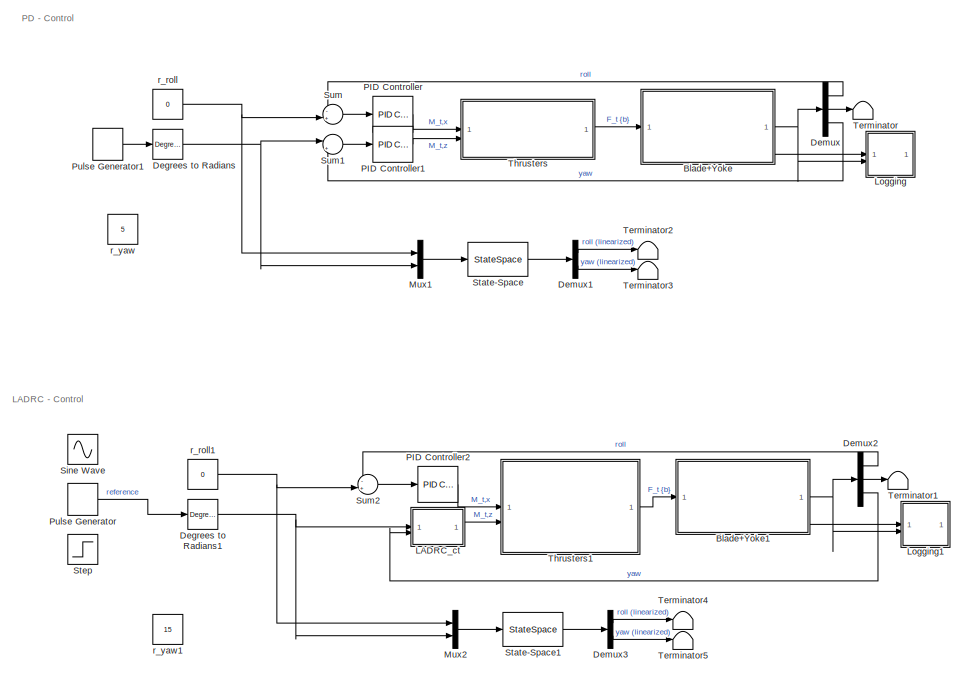
[diagram: root canvas - part 1/2, left side, full height]
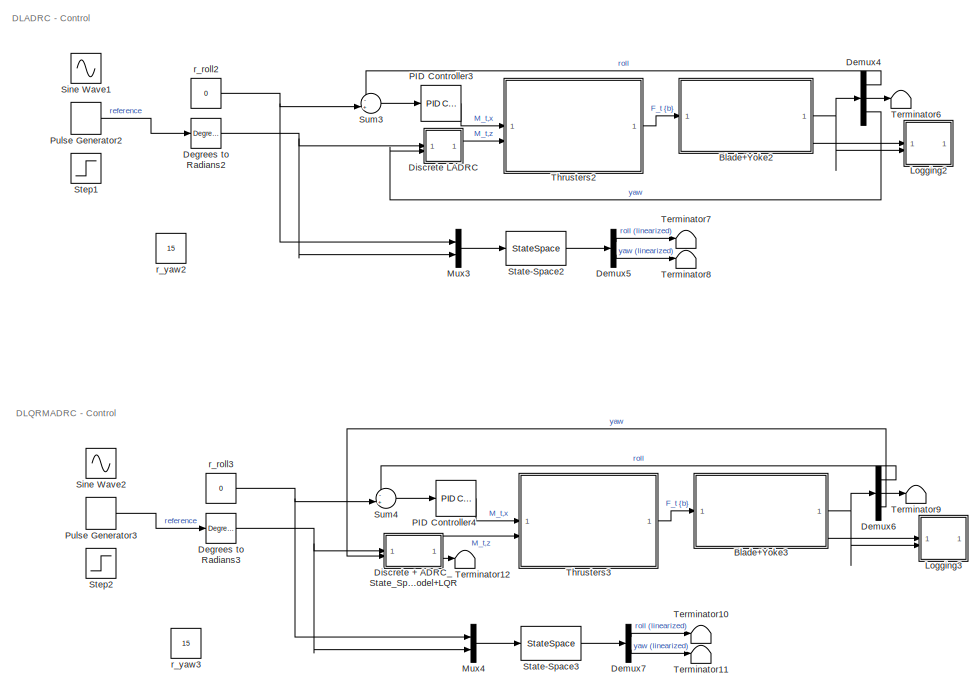
[diagram: root canvas - part 2/2, right side, full height]
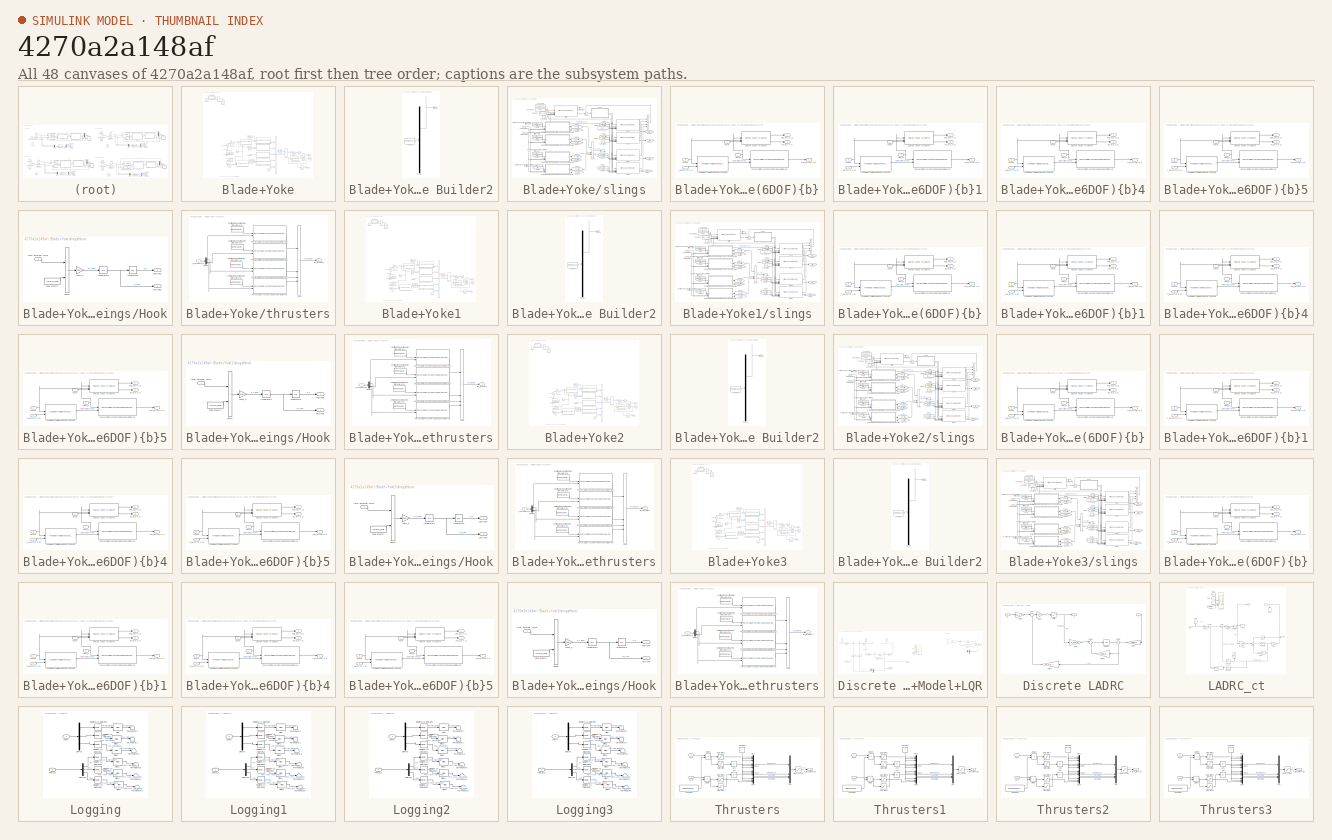
[diagram: thumbnail index - all 48 canvases of the model, root first then tree order]
MODEL slx_4270a2a148af
KIND model
CONFIG AbsTol = auto
CONFIG EnableMultiTasking = off
CONFIG FixedStep = auto
CONFIG MaxStep = 0.02
CONFIG MinStep = auto
CONFIG RelTol = 1e-3
CONFIG SampleTimeConstraint = Unconstrained
CONFIG SolverName = VariableStepAuto
CONFIG StartTime = 0.0
CONFIG StopTime = 100
BLOCK [SubSystem] Blade+Yoke
  Commented = on
  ShowPortLabels = FromPortBlockName
BLOCK [Gain] Blade+Yoke/0.5*rho*A*Cd
  Gain = 0.5*1.225*W*L*1.05
BLOCK [Reference] Blade+Yoke/6 DOF transformation for blade (z-x-y)  REF=MarIn_blade/Basic functions/6 DOF transformation for blade
(z-x-y)
  SourceBlock = MarIn_blade/Basic functions/6 DOF transformation for blade\n(z-x-y)
  SourceProductName = MarIn (Blade)
  SourceType = 6 DOF transformation for blade (z-x-y)
BLOCK [Reference] Blade+Yoke/Band-Limited White Noise1  REF=simulink/Sources/Band-Limited
White Noise
  NameLocation = right
  SourceBlock = simulink/Sources/Band-Limited\nWhite Noise
  SourceType = Band-Limited White Noise.
BLOCK [Constant] Blade+Yoke/Constant
  Value = inv_M_s
BLOCK [Constant] Blade+Yoke/Constant2
  Value = [1;0;0;0;0;0]
BLOCK [Constant] Blade+Yoke/Constant3
  NameLocation = right
  Value = [meanWSP 0 0]
BLOCK [Constant] Blade+Yoke/Coriolis
  Value = 0
BLOCK [Inport] Blade+Yoke/F_thrusters {b}
BLOCK [Reference] Blade+Yoke/Force(3DOF){b}2Force&Torque(6DOF){b}  REF=MarIn_blade/Basic functions/Force(3DOF){b}2Force&Torque(6DOF){b}
  SourceBlock = MarIn_blade/Basic functions/Force(3DOF){b}2Force&Torque(6DOF){b}
  SourceProductName = MarIn (Blade)
  SourceType = Force(3DOF){bb}2Force&Torque(6DOF){bb}
BLOCK [Reference] Blade+Yoke/Force(3DOF){b}2Force&Torque(6DOF){b}1  REF=MarIn_blade/Basic functions/Force(3DOF){b}2Force&Torque(6DOF){b}
  SourceBlock = MarIn_blade/Basic functions/Force(3DOF){b}2Force&Torque(6DOF){b}
  SourceProductName = MarIn (Blade)
  SourceType = Force(3DOF){bb}2Force&Torque(6DOF){bb}
BLOCK [From] Blade+Yoke/From
  GotoTag = eta_n
BLOCK [From] Blade+Yoke/From1
  GotoTag = nu_bb
BLOCK [Goto] Blade+Yoke/Goto
  GotoTag = eta_n
BLOCK [Goto] Blade+Yoke/Goto1
  GotoTag = nu_bb
BLOCK [Integrator] Blade+Yoke/Integrator
  ContinuousStateAttributes = 'eta_n'
  InitialCondition = eta_s_init_n
BLOCK [Integrator] Blade+Yoke/Integrator1 
  ContinuousStateAttributes = 'nu_b'
  InitialCondition = nu_s_init_b
BLOCK [Product] Blade+Yoke/Product
  Inputs = **
  Multiplication = Matrix(*)
BLOCK [Product] Blade+Yoke/Product1
BLOCK [Selector] Blade+Yoke/Selector
  IndexOptions = Index vector (dialog)
  Indices = [4 5 6]
  InputPortWidth = 6
  OutputSizes = 1
BLOCK [Selector] Blade+Yoke/Selector1
  IndexOptions = Index vector (dialog)
  Indices = [1 2 3]
  InputPortWidth = 6
  NameLocation = left
  OutputSizes = 1
BLOCK [Selector] Blade+Yoke/Selector2
  IndexOptions = Index vector (dialog)
  Indices = [4 5 6]
  InputPortWidth = 6
  OutputSizes = 1
BLOCK [SubSystem] Blade+Yoke/Signal Builder2
  ClipboardFcn = sigbuilder_block('clipboard');
  CloseFcn = sigbuilder_block('close');
  ContinueFcn = sigbuilder_block('continue');
  CopyFcn = sigbuilder_block('copy');
  DeleteFcn = sigbuilder_block('delete');
  LoadFcn = sigbuilder_block('load');
  MaskHideContents = on
  ModelCloseFcn = sigbuilder_block('modelClose');
  NameChangeFcn = sigbuilder_block('namechange');
  OpenFcn = sigbuilder_block('open',[437.6 199.2 550.4 400 ]);
  PauseFcn = sigbuilder_block('pause');
  PreSaveFcn = sigbuilder_block('preSave');
  StartFcn = sigbuilder_block('start');
  StopFcn = sigbuilder_block('stop');
  Tag = STV Subsys
BLOCK [Demux] Blade+Yoke/Signal Builder2/Demux
  DisplayOption = none
  Outputs = 1
  Tag = STV Demux
BLOCK [FromWorkspace] Blade+Yoke/Signal Builder2/FromWs
  Tag = STV FromWs
  VariableName = tuvar
BLOCK [Outport] Blade+Yoke/Signal Builder2/Signal 1
  Tag = STV Outport
BLOCK [Math] Blade+Yoke/Square
  NameLocation = right
  Operator = square
BLOCK [Sum] Blade+Yoke/Sum
  IconShape = rectangular
  Inputs = ++++-
BLOCK [Sum] Blade+Yoke/Sum1
  Inputs = |++
  NameLocation = right
BLOCK [Outport] Blade+Yoke/THETA
BLOCK [Outport] Blade+Yoke/THETA_d
  Port = 2
BLOCK [Reference] Blade+Yoke/Translate velocity&force {n}2{b}  REF=MarIn_blade/Basic functions/Translate velocity&force {n}2{b}
  SourceBlock = MarIn_blade/Basic functions/Translate velocity&force {n}2{b}
  SourceProductName = MarIn (Blade)
  SourceType = Translate velocity&force {n}2{bb}
BLOCK [Reference] Blade+Yoke/Translate velocity&force {n}2{b}1  REF=MarIn_blade/Basic functions/Translate velocity&force {n}2{b}
  SourceBlock = MarIn_blade/Basic functions/Translate velocity&force {n}2{b}
  SourceProductName = MarIn (Blade)
  SourceType = Translate velocity&force {n}2{bb}
BLOCK [Constant] Blade+Yoke/bladePar.totalMass+m_yoke
  NameLocation = top
  Value = totalMass_s
BLOCK [Gain] Blade+Yoke/gravity
  Gain = [0 0 g]
BLOCK [Constant] Blade+Yoke/posCOG
  Value = posCOG_s
BLOCK [Constant] Blade+Yoke/posCOP
  Value = [0;-L/4;0]
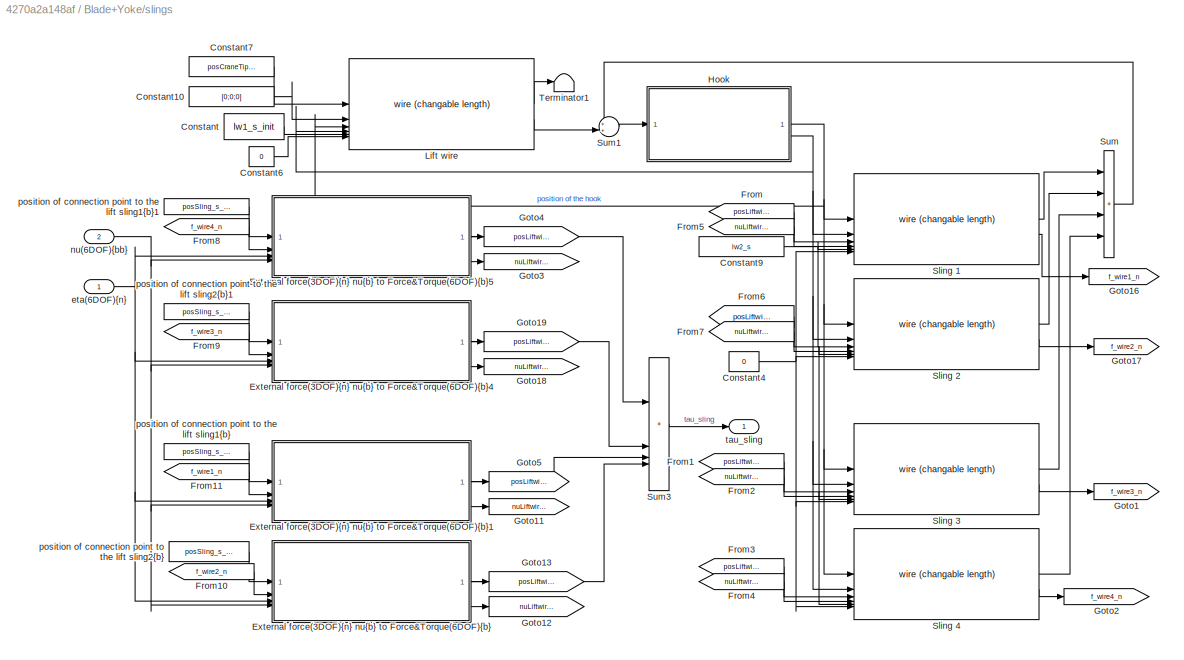
BLOCK [SubSystem] Blade+Yoke/slings
BLOCK [Constant] Blade+Yoke/slings/Constant
  Value = lw1_s_init
BLOCK [Constant] Blade+Yoke/slings/Constant10
  Value = [0;0;0]
BLOCK [Constant] Blade+Yoke/slings/Constant4
  Value = 0
BLOCK [Constant] Blade+Yoke/slings/Constant6
  Value = 0
BLOCK [Constant] Blade+Yoke/slings/Constant7
  Value = posCraneTip_s
BLOCK [Constant] Blade+Yoke/slings/Constant9
  Value = lw2_s
BLOCK [SubSystem] Blade+Yoke/slings/External force(3DOF){n} nu{b} to Force&Torque(6DOF){b}
  AncestorBlock = MarIn_blade/Basic functions/External force(3DOF){n} nu{b} to Force&Torque(6DOF){b}
BLOCK [Reference] Blade+Yoke/slings/External force(3DOF){n} nu{b} to Force&Torque(6DOF){b}/Force(3DOF){b}2Force&Torque(6DOF){b}  REF=MarIn_blade/Basic functions/Force(3DOF){b}2Force&Torque(6DOF){b}
  SourceBlock = MarIn_blade/Basic functions/Force(3DOF){b}2Force&Torque(6DOF){b}
  SourceProductName = MarIn (Blade)
  SourceType = Force(3DOF){bb}2Force&Torque(6DOF){bb}
BLOCK [Reference] Blade+Yoke/slings/External force(3DOF){n} nu{b} to Force&Torque(6DOF){b}/Translate velocity&force {n}2{b}  REF=MarIn_blade/Basic functions/Translate velocity&force {n}2{b}
  SourceBlock = MarIn_blade/Basic functions/Translate velocity&force {n}2{b}
  SourceProductName = MarIn (Blade)
  SourceType = Translate velocity&force {n}2{bb}
BLOCK [Inport] Blade+Yoke/slings/External force(3DOF){n} nu{b} to Force&Torque(6DOF){b}/eta{n}
  Port = 3
BLOCK [Inport] Blade+Yoke/slings/External force(3DOF){n} nu{b} to Force&Torque(6DOF){b}/f_ex{n} [3 X n]
  Port = 2
BLOCK [Outport] Blade+Yoke/slings/External force(3DOF){n} nu{b} to Force&Torque(6DOF){b}/nu_n[3 X 1]
  Port = 3
BLOCK [Inport] Blade+Yoke/slings/External force(3DOF){n} nu{b} to Force&Torque(6DOF){b}/nu{b}
  Port = 4
BLOCK [Inport] Blade+Yoke/slings/External force(3DOF){n} nu{b} to Force&Torque(6DOF){b}/pos_b
BLOCK [Outport] Blade+Yoke/slings/External force(3DOF){n} nu{b} to Force&Torque(6DOF){b}/pos_n[3 X 1]
  Port = 2
BLOCK [Reference] Blade+Yoke/slings/External force(3DOF){n} nu{b} to Force&Torque(6DOF){b}/pos{b} nu{b} to pos{n}  REF=MarIn_blade/Basic functions/pos{b} nu{b} to pos{n}
  SourceBlock = MarIn_blade/Basic functions/pos{b} nu{b} to pos{n}
  SourceProductName = MarIn (Blade)
  SourceType = pos{bb} to pos{bn} and pos{n}
BLOCK [Outport] Blade+Yoke/slings/External force(3DOF){n} nu{b} to Force&Torque(6DOF){b}/tau_ex [6n X 1]
BLOCK [SubSystem] Blade+Yoke/slings/External force(3DOF){n} nu{b} to Force&Torque(6DOF){b}1
  AncestorBlock = MarIn_blade/Basic functions/External force(3DOF){n} nu{b} to Force&Torque(6DOF){b}
BLOCK [Reference] Blade+Yoke/slings/External force(3DOF){n} nu{b} to Force&Torque(6DOF){b}1/Force(3DOF){b}2Force&Torque(6DOF){b}  REF=MarIn_blade/Basic functions/Force(3DOF){b}2Force&Torque(6DOF){b}
  SourceBlock = MarIn_blade/Basic functions/Force(3DOF){b}2Force&Torque(6DOF){b}
  SourceProductName = MarIn (Blade)
  SourceType = Force(3DOF){bb}2Force&Torque(6DOF){bb}
BLOCK [Reference] Blade+Yoke/slings/External force(3DOF){n} nu{b} to Force&Torque(6DOF){b}1/Translate velocity&force {n}2{b}  REF=MarIn_blade/Basic functions/Translate velocity&force {n}2{b}
  SourceBlock = MarIn_blade/Basic functions/Translate velocity&force {n}2{b}
  SourceProductName = MarIn (Blade)
  SourceType = Translate velocity&force {n}2{bb}
BLOCK [Inport] Blade+Yoke/slings/External force(3DOF){n} nu{b} to Force&Torque(6DOF){b}1/eta{n}
  Port = 3
BLOCK [Inport] Blade+Yoke/slings/External force(3DOF){n} nu{b} to Force&Torque(6DOF){b}1/f_ex{n} [3 X n]
  Port = 2
BLOCK [Outport] Blade+Yoke/slings/External force(3DOF){n} nu{b} to Force&Torque(6DOF){b}1/nu_n[3 X 1]
  Port = 3
BLOCK [Inport] Blade+Yoke/slings/External force(3DOF){n} nu{b} to Force&Torque(6DOF){b}1/nu{b}
  Port = 4
BLOCK [Inport] Blade+Yoke/slings/External force(3DOF){n} nu{b} to Force&Torque(6DOF){b}1/pos_b
BLOCK [Outport] Blade+Yoke/slings/External force(3DOF){n} nu{b} to Force&Torque(6DOF){b}1/pos_n[3 X 1]
  Port = 2
BLOCK [Reference] Blade+Yoke/slings/External force(3DOF){n} nu{b} to Force&Torque(6DOF){b}1/pos{b} nu{b} to pos{n}  REF=MarIn_blade/Basic functions/pos{b} nu{b} to pos{n}
  SourceBlock = MarIn_blade/Basic functions/pos{b} nu{b} to pos{n}
  SourceProductName = MarIn (Blade)
  SourceType = pos{bb} to pos{bn} and pos{n}
BLOCK [Outport] Blade+Yoke/slings/External force(3DOF){n} nu{b} to Force&Torque(6DOF){b}1/tau_ex [6n X 1]
BLOCK [SubSystem] Blade+Yoke/slings/External force(3DOF){n} nu{b} to Force&Torque(6DOF){b}4
  AncestorBlock = MarIn_blade/Basic functions/External force(3DOF){n} nu{b} to Force&Torque(6DOF){b}
BLOCK [Reference] Blade+Yoke/slings/External force(3DOF){n} nu{b} to Force&Torque(6DOF){b}4/Force(3DOF){b}2Force&Torque(6DOF){b}  REF=MarIn_blade/Basic functions/Force(3DOF){b}2Force&Torque(6DOF){b}
  SourceBlock = MarIn_blade/Basic functions/Force(3DOF){b}2Force&Torque(6DOF){b}
  SourceProductName = MarIn (Blade)
  SourceType = Force(3DOF){bb}2Force&Torque(6DOF){bb}
BLOCK [Reference] Blade+Yoke/slings/External force(3DOF){n} nu{b} to Force&Torque(6DOF){b}4/Translate velocity&force {n}2{b}  REF=MarIn_blade/Basic functions/Translate velocity&force {n}2{b}
  SourceBlock = MarIn_blade/Basic functions/Translate velocity&force {n}2{b}
  SourceProductName = MarIn (Blade)
  SourceType = Translate velocity&force {n}2{bb}
BLOCK [Inport] Blade+Yoke/slings/External force(3DOF){n} nu{b} to Force&Torque(6DOF){b}4/eta{n}
  Port = 3
BLOCK [Inport] Blade+Yoke/slings/External force(3DOF){n} nu{b} to Force&Torque(6DOF){b}4/f_ex{n} [3 X n]
  Port = 2
BLOCK [Outport] Blade+Yoke/slings/External force(3DOF){n} nu{b} to Force&Torque(6DOF){b}4/nu_n[3 X 1]
  Port = 3
BLOCK [Inport] Blade+Yoke/slings/External force(3DOF){n} nu{b} to Force&Torque(6DOF){b}4/nu{b}
  Port = 4
BLOCK [Inport] Blade+Yoke/slings/External force(3DOF){n} nu{b} to Force&Torque(6DOF){b}4/pos_b
BLOCK [Outport] Blade+Yoke/slings/External force(3DOF){n} nu{b} to Force&Torque(6DOF){b}4/pos_n[3 X 1]
  Port = 2
BLOCK [Reference] Blade+Yoke/slings/External force(3DOF){n} nu{b} to Force&Torque(6DOF){b}4/pos{b} nu{b} to pos{n}  REF=MarIn_blade/Basic functions/pos{b} nu{b} to pos{n}
  SourceBlock = MarIn_blade/Basic functions/pos{b} nu{b} to pos{n}
  SourceProductName = MarIn (Blade)
  SourceType = pos{bb} to pos{bn} and pos{n}
BLOCK [Outport] Blade+Yoke/slings/External force(3DOF){n} nu{b} to Force&Torque(6DOF){b}4/tau_ex [6n X 1]
BLOCK [SubSystem] Blade+Yoke/slings/External force(3DOF){n} nu{b} to Force&Torque(6DOF){b}5
  AncestorBlock = MarIn_blade/Basic functions/External force(3DOF){n} nu{b} to Force&Torque(6DOF){b}
BLOCK [Reference] Blade+Yoke/slings/External force(3DOF){n} nu{b} to Force&Torque(6DOF){b}5/Force(3DOF){b}2Force&Torque(6DOF){b}  REF=MarIn_blade/Basic functions/Force(3DOF){b}2Force&Torque(6DOF){b}
  SourceBlock = MarIn_blade/Basic functions/Force(3DOF){b}2Force&Torque(6DOF){b}
  SourceProductName = MarIn (Blade)
  SourceType = Force(3DOF){bb}2Force&Torque(6DOF){bb}
BLOCK [Reference] Blade+Yoke/slings/External force(3DOF){n} nu{b} to Force&Torque(6DOF){b}5/Translate velocity&force {n}2{b}  REF=MarIn_blade/Basic functions/Translate velocity&force {n}2{b}
  SourceBlock = MarIn_blade/Basic functions/Translate velocity&force {n}2{b}
  SourceProductName = MarIn (Blade)
  SourceType = Translate velocity&force {n}2{bb}
BLOCK [Inport] Blade+Yoke/slings/External force(3DOF){n} nu{b} to Force&Torque(6DOF){b}5/eta{n}
  Port = 3
BLOCK [Inport] Blade+Yoke/slings/External force(3DOF){n} nu{b} to Force&Torque(6DOF){b}5/f_ex{n} [3 X n]
  Port = 2
BLOCK [Outport] Blade+Yoke/slings/External force(3DOF){n} nu{b} to Force&Torque(6DOF){b}5/nu_n[3 X 1]
  Port = 3
BLOCK [Inport] Blade+Yoke/slings/External force(3DOF){n} nu{b} to Force&Torque(6DOF){b}5/nu{b}
  Port = 4
BLOCK [Inport] Blade+Yoke/slings/External force(3DOF){n} nu{b} to Force&Torque(6DOF){b}5/pos_b
BLOCK [Outport] Blade+Yoke/slings/External force(3DOF){n} nu{b} to Force&Torque(6DOF){b}5/pos_n[3 X 1]
  Port = 2
BLOCK [Reference] Blade+Yoke/slings/External force(3DOF){n} nu{b} to Force&Torque(6DOF){b}5/pos{b} nu{b} to pos{n}  REF=MarIn_blade/Basic functions/pos{b} nu{b} to pos{n}
  SourceBlock = MarIn_blade/Basic functions/pos{b} nu{b} to pos{n}
  SourceProductName = MarIn (Blade)
  SourceType = pos{bb} to pos{bn} and pos{n}
BLOCK [Outport] Blade+Yoke/slings/External force(3DOF){n} nu{b} to Force&Torque(6DOF){b}5/tau_ex [6n X 1]
BLOCK [From] Blade+Yoke/slings/From
  GotoTag = posLiftwire1_n
BLOCK [From] Blade+Yoke/slings/From1
  GotoTag = posLiftwire3_n
BLOCK [From] Blade+Yoke/slings/From10
  GotoTag = f_wire2_n
BLOCK [From] Blade+Yoke/slings/From11
  GotoTag = f_wire1_n
BLOCK [From] Blade+Yoke/slings/From2
  GotoTag = nuLiftwire3_n
BLOCK [From] Blade+Yoke/slings/From3
  GotoTag = posLiftwire4_n
BLOCK [From] Blade+Yoke/slings/From4
  GotoTag = nuLiftwire4_n
BLOCK [From] Blade+Yoke/slings/From5
  GotoTag = nuLiftwire1_n
BLOCK [From] Blade+Yoke/slings/From6
  GotoTag = posLiftwire2_n
BLOCK [From] Blade+Yoke/slings/From7
  GotoTag = nuLiftwire2_n
BLOCK [From] Blade+Yoke/slings/From8
  GotoTag = f_wire4_n
BLOCK [From] Blade+Yoke/slings/From9
  GotoTag = f_wire3_n
BLOCK [Goto] Blade+Yoke/slings/Goto1
  GotoTag = f_wire3_n
BLOCK [Goto] Blade+Yoke/slings/Goto11
  GotoTag = nuLiftwire1_n
BLOCK [Goto] Blade+Yoke/slings/Goto12
  GotoTag = nuLiftwire2_n
BLOCK [Goto] Blade+Yoke/slings/Goto13
  GotoTag = posLiftwire2_n
BLOCK [Goto] Blade+Yoke/slings/Goto16
  GotoTag = f_wire1_n
BLOCK [Goto] Blade+Yoke/slings/Goto17
  GotoTag = f_wire2_n
BLOCK [Goto] Blade+Yoke/slings/Goto18
  GotoTag = nuLiftwire3_n
BLOCK [Goto] Blade+Yoke/slings/Goto19
  GotoTag = posLiftwire3_n
BLOCK [Goto] Blade+Yoke/slings/Goto2
  GotoTag = f_wire4_n
BLOCK [Goto] Blade+Yoke/slings/Goto3
  GotoTag = nuLiftwire4_n
BLOCK [Goto] Blade+Yoke/slings/Goto4
  GotoTag = posLiftwire4_n
BLOCK [Goto] Blade+Yoke/slings/Goto5
  GotoTag = posLiftwire1_n
BLOCK [SubSystem] Blade+Yoke/slings/Hook
  AncestorBlock = MarIn_blade/Lifting equipments\n(winch, wire, hook)/Hook
BLOCK [Integrator] Blade+Yoke/slings/Hook/Integrator2
  ContinuousStateAttributes = 'nu_hook'
  InitialCondition = p_h_dot_init
BLOCK [Integrator] Blade+Yoke/slings/Hook/Integrator3
  ContinuousStateAttributes = 'pos_hook'
  InitialCondition = p_h_init
BLOCK [Sum] Blade+Yoke/slings/Hook/Sum6
  IconShape = rectangular
BLOCK [Constant] Blade+Yoke/slings/Hook/hook gravity
  Value = [0;0;m_h*g]
BLOCK [Gain] Blade+Yoke/slings/Hook/invM_h
  Gain = invM_h
  Multiplication = Matrix(K*u)
BLOCK [Outport] Blade+Yoke/slings/Hook/posHook
BLOCK [Inport] Blade+Yoke/slings/Hook/total external force
BLOCK [Outport] Blade+Yoke/slings/Hook/velHook
  Port = 2
BLOCK [Reference] Blade+Yoke/slings/Lift wire  REF=MarIn_blade/Lifting equipments
(winch, wire, hook)/wire (changable length)
  SourceBlock = MarIn_blade/Lifting equipments\n(winch, wire, hook)/wire (changable length)
  SourceProductName = MarIn (Blade)
  SourceType = Wire
BLOCK [Reference] Blade+Yoke/slings/Sling 1  REF=MarIn_blade/Lifting equipments
(winch, wire, hook)/wire (changable length)
  SourceBlock = MarIn_blade/Lifting equipments\n(winch, wire, hook)/wire (changable length)
  SourceProductName = MarIn (Blade)
  SourceType = Wire
BLOCK [Reference] Blade+Yoke/slings/Sling 2  REF=MarIn_blade/Lifting equipments
(winch, wire, hook)/wire (changable length)
  SourceBlock = MarIn_blade/Lifting equipments\n(winch, wire, hook)/wire (changable length)
  SourceProductName = MarIn (Blade)
  SourceType = Wire
BLOCK [Reference] Blade+Yoke/slings/Sling 3  REF=MarIn_blade/Lifting equipments
(winch, wire, hook)/wire (changable length)
  SourceBlock = MarIn_blade/Lifting equipments\n(winch, wire, hook)/wire (changable length)
  SourceProductName = MarIn (Blade)
  SourceType = Wire
BLOCK [Reference] Blade+Yoke/slings/Sling 4  REF=MarIn_blade/Lifting equipments
(winch, wire, hook)/wire (changable length)
  SourceBlock = MarIn_blade/Lifting equipments\n(winch, wire, hook)/wire (changable length)
  SourceProductName = MarIn (Blade)
  SourceType = Wire
BLOCK [Sum] Blade+Yoke/slings/Sum
  IconShape = rectangular
  Inputs = ++++
BLOCK [Sum] Blade+Yoke/slings/Sum1
  Inputs = ++|
BLOCK [Sum] Blade+Yoke/slings/Sum3
  IconShape = rectangular
  Inputs = 4
BLOCK [Terminator] Blade+Yoke/slings/Terminator1
BLOCK [Inport] Blade+Yoke/slings/eta(6DOF){n}
BLOCK [Inport] Blade+Yoke/slings/nu(6DOF){bb}
  Port = 2
BLOCK [Constant] Blade+Yoke/slings/position of connection point to the lift sling1{b}
  NameLocation = top
  Value = posSling_s_b(:,1)
BLOCK [Constant] Blade+Yoke/slings/position of connection point to the lift sling1{b}1
  NameLocation = top
  Value = posSling_s_b(:,4)
BLOCK [Constant] Blade+Yoke/slings/position of connection point to the lift sling2{b}
  NameLocation = top
  Value = posSling_s_b(:,2)
BLOCK [Constant] Blade+Yoke/slings/position of connection point to the lift sling2{b}1
  NameLocation = top
  Value = posSling_s_b(:,3)
BLOCK [Outport] Blade+Yoke/slings/tau_sling
BLOCK [SubSystem] Blade+Yoke/thrusters
BLOCK [Demux] Blade+Yoke/thrusters/Demux
BLOCK [Inport] Blade+Yoke/thrusters/F_thrusters {b}
BLOCK [Reference] Blade+Yoke/thrusters/Force(3DOF){b}2Force&Torque(6DOF){b}  REF=MarIn_blade/Basic functions/Force(3DOF){b}2Force&Torque(6DOF){b}
  SourceBlock = MarIn_blade/Basic functions/Force(3DOF){b}2Force&Torque(6DOF){b}
  SourceProductName = MarIn (Blade)
  SourceType = Force(3DOF){bb}2Force&Torque(6DOF){bb}
BLOCK [Reference] Blade+Yoke/thrusters/Force(3DOF){b}2Force&Torque(6DOF){b}1  REF=MarIn_blade/Basic functions/Force(3DOF){b}2Force&Torque(6DOF){b}
  SourceBlock = MarIn_blade/Basic functions/Force(3DOF){b}2Force&Torque(6DOF){b}
  SourceProductName = MarIn (Blade)
  SourceType = Force(3DOF){bb}2Force&Torque(6DOF){bb}
BLOCK [Reference] Blade+Yoke/thrusters/Force(3DOF){b}2Force&Torque(6DOF){b}2  REF=MarIn_blade/Basic functions/Force(3DOF){b}2Force&Torque(6DOF){b}
  SourceBlock = MarIn_blade/Basic functions/Force(3DOF){b}2Force&Torque(6DOF){b}
  SourceProductName = MarIn (Blade)
  SourceType = Force(3DOF){bb}2Force&Torque(6DOF){bb}
BLOCK [Reference] Blade+Yoke/thrusters/Force(3DOF){b}2Force&Torque(6DOF){b}3  REF=MarIn_blade/Basic functions/Force(3DOF){b}2Force&Torque(6DOF){b}
  SourceBlock = MarIn_blade/Basic functions/Force(3DOF){b}2Force&Torque(6DOF){b}
  SourceProductName = MarIn (Blade)
  SourceType = Force(3DOF){bb}2Force&Torque(6DOF){bb}
BLOCK [Sum] Blade+Yoke/thrusters/Sum3
  IconShape = rectangular
  Inputs = 4
BLOCK [Constant] Blade+Yoke/thrusters/position of connection point to thruster1{b}
  NameLocation = top
  Value = posThruster_s_b(:,1)
BLOCK [Constant] Blade+Yoke/thrusters/position of connection point to thruster2{b}
  NameLocation = top
  Value = posThruster_s_b(:,2)
BLOCK [Constant] Blade+Yoke/thrusters/position of connection point to thruster3{b}
  NameLocation = top
  Value = posThruster_s_b(:,3)
BLOCK [Constant] Blade+Yoke/thrusters/position of connection point to thruster4{b}
  NameLocation = top
  Value = posThruster_s_b(:,4)
BLOCK [Outport] Blade+Yoke/thrusters/tau_thrusters
BLOCK [SubSystem] Blade+Yoke1
  Commented = on
  ShowPortLabels = FromPortBlockName
BLOCK [Gain] Blade+Yoke1/0.5*rho*A*Cd
  Gain = 0.5*1.225*W*L*1.05
BLOCK [Reference] Blade+Yoke1/6 DOF transformation for blade (z-x-y)  REF=MarIn_blade/Basic functions/6 DOF transformation for blade
(z-x-y)
  SourceBlock = MarIn_blade/Basic functions/6 DOF transformation for blade\n(z-x-y)
  SourceProductName = MarIn (Blade)
  SourceType = 6 DOF transformation for blade (z-x-y)
BLOCK [Reference] Blade+Yoke1/Band-Limited White Noise1  REF=simulink/Sources/Band-Limited
White Noise
  NameLocation = right
  SourceBlock = simulink/Sources/Band-Limited\nWhite Noise
  SourceType = Band-Limited White Noise.
BLOCK [Constant] Blade+Yoke1/Constant
  Value = inv_M_s
BLOCK [Constant] Blade+Yoke1/Constant2
  Value = [1;0;0;0;0;0]
BLOCK [Constant] Blade+Yoke1/Constant3
  NameLocation = right
  Value = [meanWSP 0 0]
BLOCK [Constant] Blade+Yoke1/Coriolis
  Value = 0
BLOCK [Inport] Blade+Yoke1/F_thrusters {b}
BLOCK [Reference] Blade+Yoke1/Force(3DOF){b}2Force&Torque(6DOF){b}  REF=MarIn_blade/Basic functions/Force(3DOF){b}2Force&Torque(6DOF){b}
  SourceBlock = MarIn_blade/Basic functions/Force(3DOF){b}2Force&Torque(6DOF){b}
  SourceProductName = MarIn (Blade)
  SourceType = Force(3DOF){bb}2Force&Torque(6DOF){bb}
BLOCK [Reference] Blade+Yoke1/Force(3DOF){b}2Force&Torque(6DOF){b}1  REF=MarIn_blade/Basic functions/Force(3DOF){b}2Force&Torque(6DOF){b}
  SourceBlock = MarIn_blade/Basic functions/Force(3DOF){b}2Force&Torque(6DOF){b}
  SourceProductName = MarIn (Blade)
  SourceType = Force(3DOF){bb}2Force&Torque(6DOF){bb}
BLOCK [From] Blade+Yoke1/From
  GotoTag = eta_n
BLOCK [From] Blade+Yoke1/From1
  GotoTag = nu_bb
BLOCK [Goto] Blade+Yoke1/Goto
  GotoTag = eta_n
BLOCK [Goto] Blade+Yoke1/Goto1
  GotoTag = nu_bb
BLOCK [Integrator] Blade+Yoke1/Integrator
  ContinuousStateAttributes = 'eta_n'
  InitialCondition = eta_s_init_n
BLOCK [Integrator] Blade+Yoke1/Integrator1 
  ContinuousStateAttributes = 'nu_b'
  InitialCondition = nu_s_init_b
BLOCK [Product] Blade+Yoke1/Product
  Inputs = **
  Multiplication = Matrix(*)
BLOCK [Product] Blade+Yoke1/Product1
BLOCK [Selector] Blade+Yoke1/Selector
  IndexOptions = Index vector (dialog)
  Indices = [4 5 6]
  InputPortWidth = 6
  OutputSizes = 1
BLOCK [Selector] Blade+Yoke1/Selector1
  IndexOptions = Index vector (dialog)
  Indices = [1 2 3]
  InputPortWidth = 6
  NameLocation = left
  OutputSizes = 1
BLOCK [Selector] Blade+Yoke1/Selector2
  IndexOptions = Index vector (dialog)
  Indices = [4 5 6]
  InputPortWidth = 6
  OutputSizes = 1
BLOCK [SubSystem] Blade+Yoke1/Signal Builder2
  ClipboardFcn = sigbuilder_block('clipboard');
  CloseFcn = sigbuilder_block('close');
  ContinueFcn = sigbuilder_block('continue');
  CopyFcn = sigbuilder_block('copy');
  DeleteFcn = sigbuilder_block('delete');
  LoadFcn = sigbuilder_block('load');
  MaskHideContents = on
  ModelCloseFcn = sigbuilder_block('modelClose');
  NameChangeFcn = sigbuilder_block('namechange');
  OpenFcn = sigbuilder_block('open',[437.6 199.2 550.4 400 ]);
  PauseFcn = sigbuilder_block('pause');
  PreSaveFcn = sigbuilder_block('preSave');
  StartFcn = sigbuilder_block('start');
  StopFcn = sigbuilder_block('stop');
  Tag = STV Subsys
BLOCK [Demux] Blade+Yoke1/Signal Builder2/Demux
  DisplayOption = none
  Outputs = 1
  Tag = STV Demux
BLOCK [FromWorkspace] Blade+Yoke1/Signal Builder2/FromWs
  Tag = STV FromWs
  VariableName = tuvar
BLOCK [Outport] Blade+Yoke1/Signal Builder2/Signal 1
  Tag = STV Outport
BLOCK [Math] Blade+Yoke1/Square
  NameLocation = right
  Operator = square
BLOCK [Sum] Blade+Yoke1/Sum
  IconShape = rectangular
  Inputs = ++++-
BLOCK [Sum] Blade+Yoke1/Sum1
  Inputs = |++
  NameLocation = right
BLOCK [Outport] Blade+Yoke1/THETA
BLOCK [Outport] Blade+Yoke1/THETA_d
  Port = 2
BLOCK [Reference] Blade+Yoke1/Translate velocity&force {n}2{b}  REF=MarIn_blade/Basic functions/Translate velocity&force {n}2{b}
  SourceBlock = MarIn_blade/Basic functions/Translate velocity&force {n}2{b}
  SourceProductName = MarIn (Blade)
  SourceType = Translate velocity&force {n}2{bb}
BLOCK [Reference] Blade+Yoke1/Translate velocity&force {n}2{b}1  REF=MarIn_blade/Basic functions/Translate velocity&force {n}2{b}
  SourceBlock = MarIn_blade/Basic functions/Translate velocity&force {n}2{b}
  SourceProductName = MarIn (Blade)
  SourceType = Translate velocity&force {n}2{bb}
BLOCK [Constant] Blade+Yoke1/bladePar.totalMass+m_yoke
  NameLocation = top
  Value = totalMass_s
BLOCK [Gain] Blade+Yoke1/gravity
  Gain = [0 0 g]
BLOCK [Constant] Blade+Yoke1/posCOG
  Value = posCOG_s
BLOCK [Constant] Blade+Yoke1/posCOP
  Value = [0;-L/4;0]
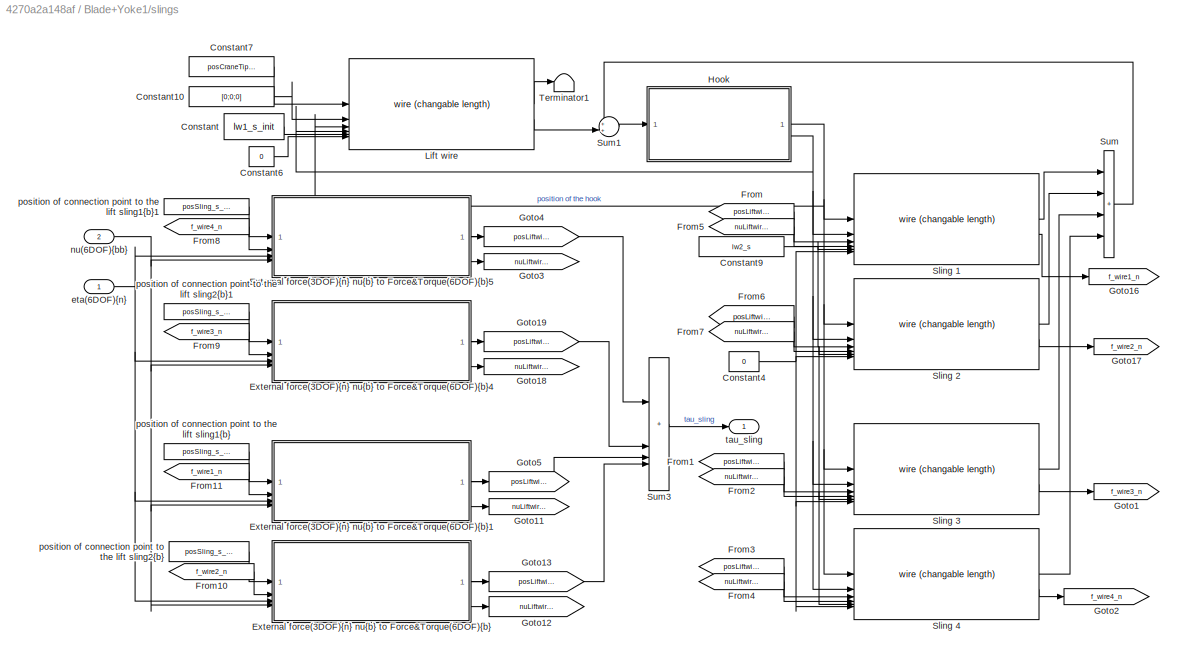
BLOCK [SubSystem] Blade+Yoke1/slings
BLOCK [Constant] Blade+Yoke1/slings/Constant
  Value = lw1_s_init
BLOCK [Constant] Blade+Yoke1/slings/Constant10
  Value = [0;0;0]
BLOCK [Constant] Blade+Yoke1/slings/Constant4
  Value = 0
BLOCK [Constant] Blade+Yoke1/slings/Constant6
  Value = 0
BLOCK [Constant] Blade+Yoke1/slings/Constant7
  Value = posCraneTip_s
BLOCK [Constant] Blade+Yoke1/slings/Constant9
  Value = lw2_s
BLOCK [SubSystem] Blade+Yoke1/slings/External force(3DOF){n} nu{b} to Force&Torque(6DOF){b}
  AncestorBlock = MarIn_blade/Basic functions/External force(3DOF){n} nu{b} to Force&Torque(6DOF){b}
BLOCK [Reference] Blade+Yoke1/slings/External force(3DOF){n} nu{b} to Force&Torque(6DOF){b}/Force(3DOF){b}2Force&Torque(6DOF){b}  REF=MarIn_blade/Basic functions/Force(3DOF){b}2Force&Torque(6DOF){b}
  SourceBlock = MarIn_blade/Basic functions/Force(3DOF){b}2Force&Torque(6DOF){b}
  SourceProductName = MarIn (Blade)
  SourceType = Force(3DOF){bb}2Force&Torque(6DOF){bb}
BLOCK [Reference] Blade+Yoke1/slings/External force(3DOF){n} nu{b} to Force&Torque(6DOF){b}/Translate velocity&force {n}2{b}  REF=MarIn_blade/Basic functions/Translate velocity&force {n}2{b}
  SourceBlock = MarIn_blade/Basic functions/Translate velocity&force {n}2{b}
  SourceProductName = MarIn (Blade)
  SourceType = Translate velocity&force {n}2{bb}
BLOCK [Inport] Blade+Yoke1/slings/External force(3DOF){n} nu{b} to Force&Torque(6DOF){b}/eta{n}
  Port = 3
BLOCK [Inport] Blade+Yoke1/slings/External force(3DOF){n} nu{b} to Force&Torque(6DOF){b}/f_ex{n} [3 X n]
  Port = 2
BLOCK [Outport] Blade+Yoke1/slings/External force(3DOF){n} nu{b} to Force&Torque(6DOF){b}/nu_n[3 X 1]
  Port = 3
BLOCK [Inport] Blade+Yoke1/slings/External force(3DOF){n} nu{b} to Force&Torque(6DOF){b}/nu{b}
  Port = 4
BLOCK [Inport] Blade+Yoke1/slings/External force(3DOF){n} nu{b} to Force&Torque(6DOF){b}/pos_b
BLOCK [Outport] Blade+Yoke1/slings/External force(3DOF){n} nu{b} to Force&Torque(6DOF){b}/pos_n[3 X 1]
  Port = 2
BLOCK [Reference] Blade+Yoke1/slings/External force(3DOF){n} nu{b} to Force&Torque(6DOF){b}/pos{b} nu{b} to pos{n}  REF=MarIn_blade/Basic functions/pos{b} nu{b} to pos{n}
  SourceBlock = MarIn_blade/Basic functions/pos{b} nu{b} to pos{n}
  SourceProductName = MarIn (Blade)
  SourceType = pos{bb} to pos{bn} and pos{n}
BLOCK [Outport] Blade+Yoke1/slings/External force(3DOF){n} nu{b} to Force&Torque(6DOF){b}/tau_ex [6n X 1]
BLOCK [SubSystem] Blade+Yoke1/slings/External force(3DOF){n} nu{b} to Force&Torque(6DOF){b}1
  AncestorBlock = MarIn_blade/Basic functions/External force(3DOF){n} nu{b} to Force&Torque(6DOF){b}
BLOCK [Reference] Blade+Yoke1/slings/External force(3DOF){n} nu{b} to Force&Torque(6DOF){b}1/Force(3DOF){b}2Force&Torque(6DOF){b}  REF=MarIn_blade/Basic functions/Force(3DOF){b}2Force&Torque(6DOF){b}
  SourceBlock = MarIn_blade/Basic functions/Force(3DOF){b}2Force&Torque(6DOF){b}
  SourceProductName = MarIn (Blade)
  SourceType = Force(3DOF){bb}2Force&Torque(6DOF){bb}
BLOCK [Reference] Blade+Yoke1/slings/External force(3DOF){n} nu{b} to Force&Torque(6DOF){b}1/Translate velocity&force {n}2{b}  REF=MarIn_blade/Basic functions/Translate velocity&force {n}2{b}
  SourceBlock = MarIn_blade/Basic functions/Translate velocity&force {n}2{b}
  SourceProductName = MarIn (Blade)
  SourceType = Translate velocity&force {n}2{bb}
BLOCK [Inport] Blade+Yoke1/slings/External force(3DOF){n} nu{b} to Force&Torque(6DOF){b}1/eta{n}
  Port = 3
BLOCK [Inport] Blade+Yoke1/slings/External force(3DOF){n} nu{b} to Force&Torque(6DOF){b}1/f_ex{n} [3 X n]
  Port = 2
BLOCK [Outport] Blade+Yoke1/slings/External force(3DOF){n} nu{b} to Force&Torque(6DOF){b}1/nu_n[3 X 1]
  Port = 3
BLOCK [Inport] Blade+Yoke1/slings/External force(3DOF){n} nu{b} to Force&Torque(6DOF){b}1/nu{b}
  Port = 4
BLOCK [Inport] Blade+Yoke1/slings/External force(3DOF){n} nu{b} to Force&Torque(6DOF){b}1/pos_b
BLOCK [Outport] Blade+Yoke1/slings/External force(3DOF){n} nu{b} to Force&Torque(6DOF){b}1/pos_n[3 X 1]
  Port = 2
BLOCK [Reference] Blade+Yoke1/slings/External force(3DOF){n} nu{b} to Force&Torque(6DOF){b}1/pos{b} nu{b} to pos{n}  REF=MarIn_blade/Basic functions/pos{b} nu{b} to pos{n}
  SourceBlock = MarIn_blade/Basic functions/pos{b} nu{b} to pos{n}
  SourceProductName = MarIn (Blade)
  SourceType = pos{bb} to pos{bn} and pos{n}
BLOCK [Outport] Blade+Yoke1/slings/External force(3DOF){n} nu{b} to Force&Torque(6DOF){b}1/tau_ex [6n X 1]
BLOCK [SubSystem] Blade+Yoke1/slings/External force(3DOF){n} nu{b} to Force&Torque(6DOF){b}4
  AncestorBlock = MarIn_blade/Basic functions/External force(3DOF){n} nu{b} to Force&Torque(6DOF){b}
BLOCK [Reference] Blade+Yoke1/slings/External force(3DOF){n} nu{b} to Force&Torque(6DOF){b}4/Force(3DOF){b}2Force&Torque(6DOF){b}  REF=MarIn_blade/Basic functions/Force(3DOF){b}2Force&Torque(6DOF){b}
  SourceBlock = MarIn_blade/Basic functions/Force(3DOF){b}2Force&Torque(6DOF){b}
  SourceProductName = MarIn (Blade)
  SourceType = Force(3DOF){bb}2Force&Torque(6DOF){bb}
BLOCK [Reference] Blade+Yoke1/slings/External force(3DOF){n} nu{b} to Force&Torque(6DOF){b}4/Translate velocity&force {n}2{b}  REF=MarIn_blade/Basic functions/Translate velocity&force {n}2{b}
  SourceBlock = MarIn_blade/Basic functions/Translate velocity&force {n}2{b}
  SourceProductName = MarIn (Blade)
  SourceType = Translate velocity&force {n}2{bb}
BLOCK [Inport] Blade+Yoke1/slings/External force(3DOF){n} nu{b} to Force&Torque(6DOF){b}4/eta{n}
  Port = 3
BLOCK [Inport] Blade+Yoke1/slings/External force(3DOF){n} nu{b} to Force&Torque(6DOF){b}4/f_ex{n} [3 X n]
  Port = 2
BLOCK [Outport] Blade+Yoke1/slings/External force(3DOF){n} nu{b} to Force&Torque(6DOF){b}4/nu_n[3 X 1]
  Port = 3
BLOCK [Inport] Blade+Yoke1/slings/External force(3DOF){n} nu{b} to Force&Torque(6DOF){b}4/nu{b}
  Port = 4
BLOCK [Inport] Blade+Yoke1/slings/External force(3DOF){n} nu{b} to Force&Torque(6DOF){b}4/pos_b
BLOCK [Outport] Blade+Yoke1/slings/External force(3DOF){n} nu{b} to Force&Torque(6DOF){b}4/pos_n[3 X 1]
  Port = 2
BLOCK [Reference] Blade+Yoke1/slings/External force(3DOF){n} nu{b} to Force&Torque(6DOF){b}4/pos{b} nu{b} to pos{n}  REF=MarIn_blade/Basic functions/pos{b} nu{b} to pos{n}
  SourceBlock = MarIn_blade/Basic functions/pos{b} nu{b} to pos{n}
  SourceProductName = MarIn (Blade)
  SourceType = pos{bb} to pos{bn} and pos{n}
BLOCK [Outport] Blade+Yoke1/slings/External force(3DOF){n} nu{b} to Force&Torque(6DOF){b}4/tau_ex [6n X 1]
BLOCK [SubSystem] Blade+Yoke1/slings/External force(3DOF){n} nu{b} to Force&Torque(6DOF){b}5
  AncestorBlock = MarIn_blade/Basic functions/External force(3DOF){n} nu{b} to Force&Torque(6DOF){b}
BLOCK [Reference] Blade+Yoke1/slings/External force(3DOF){n} nu{b} to Force&Torque(6DOF){b}5/Force(3DOF){b}2Force&Torque(6DOF){b}  REF=MarIn_blade/Basic functions/Force(3DOF){b}2Force&Torque(6DOF){b}
  SourceBlock = MarIn_blade/Basic functions/Force(3DOF){b}2Force&Torque(6DOF){b}
  SourceProductName = MarIn (Blade)
  SourceType = Force(3DOF){bb}2Force&Torque(6DOF){bb}
BLOCK [Reference] Blade+Yoke1/slings/External force(3DOF){n} nu{b} to Force&Torque(6DOF){b}5/Translate velocity&force {n}2{b}  REF=MarIn_blade/Basic functions/Translate velocity&force {n}2{b}
  SourceBlock = MarIn_blade/Basic functions/Translate velocity&force {n}2{b}
  SourceProductName = MarIn (Blade)
  SourceType = Translate velocity&force {n}2{bb}
BLOCK [Inport] Blade+Yoke1/slings/External force(3DOF){n} nu{b} to Force&Torque(6DOF){b}5/eta{n}
  Port = 3
BLOCK [Inport] Blade+Yoke1/slings/External force(3DOF){n} nu{b} to Force&Torque(6DOF){b}5/f_ex{n} [3 X n]
  Port = 2
BLOCK [Outport] Blade+Yoke1/slings/External force(3DOF){n} nu{b} to Force&Torque(6DOF){b}5/nu_n[3 X 1]
  Port = 3
BLOCK [Inport] Blade+Yoke1/slings/External force(3DOF){n} nu{b} to Force&Torque(6DOF){b}5/nu{b}
  Port = 4
BLOCK [Inport] Blade+Yoke1/slings/External force(3DOF){n} nu{b} to Force&Torque(6DOF){b}5/pos_b
BLOCK [Outport] Blade+Yoke1/slings/External force(3DOF){n} nu{b} to Force&Torque(6DOF){b}5/pos_n[3 X 1]
  Port = 2
BLOCK [Reference] Blade+Yoke1/slings/External force(3DOF){n} nu{b} to Force&Torque(6DOF){b}5/pos{b} nu{b} to pos{n}  REF=MarIn_blade/Basic functions/pos{b} nu{b} to pos{n}
  SourceBlock = MarIn_blade/Basic functions/pos{b} nu{b} to pos{n}
  SourceProductName = MarIn (Blade)
  SourceType = pos{bb} to pos{bn} and pos{n}
BLOCK [Outport] Blade+Yoke1/slings/External force(3DOF){n} nu{b} to Force&Torque(6DOF){b}5/tau_ex [6n X 1]
BLOCK [From] Blade+Yoke1/slings/From
  GotoTag = posLiftwire1_n
BLOCK [From] Blade+Yoke1/slings/From1
  GotoTag = posLiftwire3_n
BLOCK [From] Blade+Yoke1/slings/From10
  GotoTag = f_wire2_n
BLOCK [From] Blade+Yoke1/slings/From11
  GotoTag = f_wire1_n
BLOCK [From] Blade+Yoke1/slings/From2
  GotoTag = nuLiftwire3_n
BLOCK [From] Blade+Yoke1/slings/From3
  GotoTag = posLiftwire4_n
BLOCK [From] Blade+Yoke1/slings/From4
  GotoTag = nuLiftwire4_n
BLOCK [From] Blade+Yoke1/slings/From5
  GotoTag = nuLiftwire1_n
BLOCK [From] Blade+Yoke1/slings/From6
  GotoTag = posLiftwire2_n
BLOCK [From] Blade+Yoke1/slings/From7
  GotoTag = nuLiftwire2_n
BLOCK [From] Blade+Yoke1/slings/From8
  GotoTag = f_wire4_n
BLOCK [From] Blade+Yoke1/slings/From9
  GotoTag = f_wire3_n
BLOCK [Goto] Blade+Yoke1/slings/Goto1
  GotoTag = f_wire3_n
BLOCK [Goto] Blade+Yoke1/slings/Goto11
  GotoTag = nuLiftwire1_n
BLOCK [Goto] Blade+Yoke1/slings/Goto12
  GotoTag = nuLiftwire2_n
BLOCK [Goto] Blade+Yoke1/slings/Goto13
  GotoTag = posLiftwire2_n
BLOCK [Goto] Blade+Yoke1/slings/Goto16
  GotoTag = f_wire1_n
BLOCK [Goto] Blade+Yoke1/slings/Goto17
  GotoTag = f_wire2_n
BLOCK [Goto] Blade+Yoke1/slings/Goto18
  GotoTag = nuLiftwire3_n
BLOCK [Goto] Blade+Yoke1/slings/Goto19
  GotoTag = posLiftwire3_n
BLOCK [Goto] Blade+Yoke1/slings/Goto2
  GotoTag = f_wire4_n
BLOCK [Goto] Blade+Yoke1/slings/Goto3
  GotoTag = nuLiftwire4_n
BLOCK [Goto] Blade+Yoke1/slings/Goto4
  GotoTag = posLiftwire4_n
BLOCK [Goto] Blade+Yoke1/slings/Goto5
  GotoTag = posLiftwire1_n
BLOCK [SubSystem] Blade+Yoke1/slings/Hook
  AncestorBlock = MarIn_blade/Lifting equipments\n(winch, wire, hook)/Hook
BLOCK [Integrator] Blade+Yoke1/slings/Hook/Integrator2
  ContinuousStateAttributes = 'nu_hook'
  InitialCondition = p_h_dot_init
BLOCK [Integrator] Blade+Yoke1/slings/Hook/Integrator3
  ContinuousStateAttributes = 'pos_hook'
  InitialCondition = p_h_init
BLOCK [Sum] Blade+Yoke1/slings/Hook/Sum6
  IconShape = rectangular
BLOCK [Constant] Blade+Yoke1/slings/Hook/hook gravity
  Value = [0;0;m_h*g]
BLOCK [Gain] Blade+Yoke1/slings/Hook/invM_h
  Gain = invM_h
  Multiplication = Matrix(K*u)
BLOCK [Outport] Blade+Yoke1/slings/Hook/posHook
BLOCK [Inport] Blade+Yoke1/slings/Hook/total external force
BLOCK [Outport] Blade+Yoke1/slings/Hook/velHook
  Port = 2
BLOCK [Reference] Blade+Yoke1/slings/Lift wire  REF=MarIn_blade/Lifting equipments
(winch, wire, hook)/wire (changable length)
  SourceBlock = MarIn_blade/Lifting equipments\n(winch, wire, hook)/wire (changable length)
  SourceProductName = MarIn (Blade)
  SourceType = Wire
BLOCK [Reference] Blade+Yoke1/slings/Sling 1  REF=MarIn_blade/Lifting equipments
(winch, wire, hook)/wire (changable length)
  SourceBlock = MarIn_blade/Lifting equipments\n(winch, wire, hook)/wire (changable length)
  SourceProductName = MarIn (Blade)
  SourceType = Wire
BLOCK [Reference] Blade+Yoke1/slings/Sling 2  REF=MarIn_blade/Lifting equipments
(winch, wire, hook)/wire (changable length)
  SourceBlock = MarIn_blade/Lifting equipments\n(winch, wire, hook)/wire (changable length)
  SourceProductName = MarIn (Blade)
  SourceType = Wire
BLOCK [Reference] Blade+Yoke1/slings/Sling 3  REF=MarIn_blade/Lifting equipments
(winch, wire, hook)/wire (changable length)
  SourceBlock = MarIn_blade/Lifting equipments\n(winch, wire, hook)/wire (changable length)
  SourceProductName = MarIn (Blade)
  SourceType = Wire
BLOCK [Reference] Blade+Yoke1/slings/Sling 4  REF=MarIn_blade/Lifting equipments
(winch, wire, hook)/wire (changable length)
  SourceBlock = MarIn_blade/Lifting equipments\n(winch, wire, hook)/wire (changable length)
  SourceProductName = MarIn (Blade)
  SourceType = Wire
BLOCK [Sum] Blade+Yoke1/slings/Sum
  IconShape = rectangular
  Inputs = ++++
BLOCK [Sum] Blade+Yoke1/slings/Sum1
  Inputs = ++|
BLOCK [Sum] Blade+Yoke1/slings/Sum3
  IconShape = rectangular
  Inputs = 4
BLOCK [Terminator] Blade+Yoke1/slings/Terminator1
BLOCK [Inport] Blade+Yoke1/slings/eta(6DOF){n}
BLOCK [Inport] Blade+Yoke1/slings/nu(6DOF){bb}
  Port = 2
BLOCK [Constant] Blade+Yoke1/slings/position of connection point to the lift sling1{b}
  NameLocation = top
  Value = posSling_s_b(:,1)
BLOCK [Constant] Blade+Yoke1/slings/position of connection point to the lift sling1{b}1
  NameLocation = top
  Value = posSling_s_b(:,4)
BLOCK [Constant] Blade+Yoke1/slings/position of connection point to the lift sling2{b}
  NameLocation = top
  Value = posSling_s_b(:,2)
BLOCK [Constant] Blade+Yoke1/slings/position of connection point to the lift sling2{b}1
  NameLocation = top
  Value = posSling_s_b(:,3)
BLOCK [Outport] Blade+Yoke1/slings/tau_sling
BLOCK [SubSystem] Blade+Yoke1/thrusters
BLOCK [Demux] Blade+Yoke1/thrusters/Demux
BLOCK [Inport] Blade+Yoke1/thrusters/F_thrusters {b}
BLOCK [Reference] Blade+Yoke1/thrusters/Force(3DOF){b}2Force&Torque(6DOF){b}  REF=MarIn_blade/Basic functions/Force(3DOF){b}2Force&Torque(6DOF){b}
  SourceBlock = MarIn_blade/Basic functions/Force(3DOF){b}2Force&Torque(6DOF){b}
  SourceProductName = MarIn (Blade)
  SourceType = Force(3DOF){bb}2Force&Torque(6DOF){bb}
BLOCK [Reference] Blade+Yoke1/thrusters/Force(3DOF){b}2Force&Torque(6DOF){b}1  REF=MarIn_blade/Basic functions/Force(3DOF){b}2Force&Torque(6DOF){b}
  SourceBlock = MarIn_blade/Basic functions/Force(3DOF){b}2Force&Torque(6DOF){b}
  SourceProductName = MarIn (Blade)
  SourceType = Force(3DOF){bb}2Force&Torque(6DOF){bb}
BLOCK [Reference] Blade+Yoke1/thrusters/Force(3DOF){b}2Force&Torque(6DOF){b}2  REF=MarIn_blade/Basic functions/Force(3DOF){b}2Force&Torque(6DOF){b}
  SourceBlock = MarIn_blade/Basic functions/Force(3DOF){b}2Force&Torque(6DOF){b}
  SourceProductName = MarIn (Blade)
  SourceType = Force(3DOF){bb}2Force&Torque(6DOF){bb}
BLOCK [Reference] Blade+Yoke1/thrusters/Force(3DOF){b}2Force&Torque(6DOF){b}3  REF=MarIn_blade/Basic functions/Force(3DOF){b}2Force&Torque(6DOF){b}
  SourceBlock = MarIn_blade/Basic functions/Force(3DOF){b}2Force&Torque(6DOF){b}
  SourceProductName = MarIn (Blade)
  SourceType = Force(3DOF){bb}2Force&Torque(6DOF){bb}
BLOCK [Sum] Blade+Yoke1/thrusters/Sum3
  IconShape = rectangular
  Inputs = 4
BLOCK [Constant] Blade+Yoke1/thrusters/position of connection point to thruster1{b}
  NameLocation = top
  Value = posThruster_s_b(:,1)
BLOCK [Constant] Blade+Yoke1/thrusters/position of connection point to thruster2{b}
  NameLocation = top
  Value = posThruster_s_b(:,2)
BLOCK [Constant] Blade+Yoke1/thrusters/position of connection point to thruster3{b}
  NameLocation = top
  Value = posThruster_s_b(:,3)
BLOCK [Constant] Blade+Yoke1/thrusters/position of connection point to thruster4{b}
  NameLocation = top
  Value = posThruster_s_b(:,4)
BLOCK [Outport] Blade+Yoke1/thrusters/tau_thrusters
BLOCK [SubSystem] Blade+Yoke2
  Commented = on
  ShowPortLabels = FromPortBlockName
BLOCK [Gain] Blade+Yoke2/0.5*rho*A*Cd
  Gain = 0.5*1.225*W*L*1.05
BLOCK [Reference] Blade+Yoke2/6 DOF transformation for blade (z-x-y)  REF=MarIn_blade/Basic functions/6 DOF transformation for blade
(z-x-y)
  SourceBlock = MarIn_blade/Basic functions/6 DOF transformation for blade\n(z-x-y)
  SourceProductName = MarIn (Blade)
  SourceType = 6 DOF transformation for blade (z-x-y)
BLOCK [Reference] Blade+Yoke2/Band-Limited White Noise1  REF=simulink/Sources/Band-Limited
White Noise
  NameLocation = right
  SourceBlock = simulink/Sources/Band-Limited\nWhite Noise
  SourceType = Band-Limited White Noise.
BLOCK [Constant] Blade+Yoke2/Constant
  Value = inv_M_s
BLOCK [Constant] Blade+Yoke2/Constant2
  Value = [1;0;0;0;0;0]
BLOCK [Constant] Blade+Yoke2/Constant3
  NameLocation = right
  Value = [meanWSP 0 0]
BLOCK [Constant] Blade+Yoke2/Coriolis
  Value = 0
BLOCK [Inport] Blade+Yoke2/F_thrusters {b}
BLOCK [Reference] Blade+Yoke2/Force(3DOF){b}2Force&Torque(6DOF){b}  REF=MarIn_blade/Basic functions/Force(3DOF){b}2Force&Torque(6DOF){b}
  SourceBlock = MarIn_blade/Basic functions/Force(3DOF){b}2Force&Torque(6DOF){b}
  SourceProductName = MarIn (Blade)
  SourceType = Force(3DOF){bb}2Force&Torque(6DOF){bb}
BLOCK [Reference] Blade+Yoke2/Force(3DOF){b}2Force&Torque(6DOF){b}1  REF=MarIn_blade/Basic functions/Force(3DOF){b}2Force&Torque(6DOF){b}
  SourceBlock = MarIn_blade/Basic functions/Force(3DOF){b}2Force&Torque(6DOF){b}
  SourceProductName = MarIn (Blade)
  SourceType = Force(3DOF){bb}2Force&Torque(6DOF){bb}
BLOCK [From] Blade+Yoke2/From
  GotoTag = eta_n
BLOCK [From] Blade+Yoke2/From1
  GotoTag = nu_bb
BLOCK [Goto] Blade+Yoke2/Goto
  GotoTag = eta_n
BLOCK [Goto] Blade+Yoke2/Goto1
  GotoTag = nu_bb
BLOCK [Integrator] Blade+Yoke2/Integrator
  ContinuousStateAttributes = 'eta_n'
  InitialCondition = eta_s_init_n
BLOCK [Integrator] Blade+Yoke2/Integrator1 
  ContinuousStateAttributes = 'nu_b'
  InitialCondition = nu_s_init_b
BLOCK [Product] Blade+Yoke2/Product
  Inputs = **
  Multiplication = Matrix(*)
BLOCK [Product] Blade+Yoke2/Product1
BLOCK [Selector] Blade+Yoke2/Selector
  IndexOptions = Index vector (dialog)
  Indices = [4 5 6]
  InputPortWidth = 6
  OutputSizes = 1
BLOCK [Selector] Blade+Yoke2/Selector1
  IndexOptions = Index vector (dialog)
  Indices = [1 2 3]
  InputPortWidth = 6
  NameLocation = left
  OutputSizes = 1
BLOCK [Selector] Blade+Yoke2/Selector2
  IndexOptions = Index vector (dialog)
  Indices = [4 5 6]
  InputPortWidth = 6
  OutputSizes = 1
BLOCK [SubSystem] Blade+Yoke2/Signal Builder2
  ClipboardFcn = sigbuilder_block('clipboard');
  CloseFcn = sigbuilder_block('close');
  ContinueFcn = sigbuilder_block('continue');
  CopyFcn = sigbuilder_block('copy');
  DeleteFcn = sigbuilder_block('delete');
  LoadFcn = sigbuilder_block('load');
  MaskHideContents = on
  ModelCloseFcn = sigbuilder_block('modelClose');
  NameChangeFcn = sigbuilder_block('namechange');
  OpenFcn = sigbuilder_block('open',[437.6 199.2 550.4 400 ]);
  PauseFcn = sigbuilder_block('pause');
  PreSaveFcn = sigbuilder_block('preSave');
  StartFcn = sigbuilder_block('start');
  StopFcn = sigbuilder_block('stop');
  Tag = STV Subsys
BLOCK [Demux] Blade+Yoke2/Signal Builder2/Demux
  DisplayOption = none
  Outputs = 1
  Tag = STV Demux
BLOCK [FromWorkspace] Blade+Yoke2/Signal Builder2/FromWs
  Tag = STV FromWs
  VariableName = tuvar
BLOCK [Outport] Blade+Yoke2/Signal Builder2/Signal 1
  Tag = STV Outport
BLOCK [Math] Blade+Yoke2/Square
  NameLocation = right
  Operator = square
BLOCK [Sum] Blade+Yoke2/Sum
  IconShape = rectangular
  Inputs = ++++-
BLOCK [Sum] Blade+Yoke2/Sum1
  Inputs = |++
  NameLocation = right
BLOCK [Outport] Blade+Yoke2/THETA
BLOCK [Outport] Blade+Yoke2/THETA_d
  Port = 2
BLOCK [Reference] Blade+Yoke2/Translate velocity&force {n}2{b}  REF=MarIn_blade/Basic functions/Translate velocity&force {n}2{b}
  SourceBlock = MarIn_blade/Basic functions/Translate velocity&force {n}2{b}
  SourceProductName = MarIn (Blade)
  SourceType = Translate velocity&force {n}2{bb}
BLOCK [Reference] Blade+Yoke2/Translate velocity&force {n}2{b}1  REF=MarIn_blade/Basic functions/Translate velocity&force {n}2{b}
  SourceBlock = MarIn_blade/Basic functions/Translate velocity&force {n}2{b}
  SourceProductName = MarIn (Blade)
  SourceType = Translate velocity&force {n}2{bb}
BLOCK [Constant] Blade+Yoke2/bladePar.totalMass+m_yoke
  NameLocation = top
  Value = totalMass_s
BLOCK [Gain] Blade+Yoke2/gravity
  Gain = [0 0 g]
BLOCK [Constant] Blade+Yoke2/posCOG
  Value = posCOG_s
BLOCK [Constant] Blade+Yoke2/posCOP
  Value = [0;-L/4;0]
BLOCK [SubSystem] Blade+Yoke2/slings
BLOCK [Constant] Blade+Yoke2/slings/Constant
  Value = lw1_s_init
BLOCK [Constant] Blade+Yoke2/slings/Constant10
  Value = [0;0;0]
BLOCK [Constant] Blade+Yoke2/slings/Constant4
  Value = 0
BLOCK [Constant] Blade+Yoke2/slings/Constant6
  Value = 0
BLOCK [Constant] Blade+Yoke2/slings/Constant7
  Value = posCraneTip_s
BLOCK [Constant] Blade+Yoke2/slings/Constant9
  Value = lw2_s
BLOCK [SubSystem] Blade+Yoke2/slings/External force(3DOF){n} nu{b} to Force&Torque(6DOF){b}
  AncestorBlock = MarIn_blade/Basic functions/External force(3DOF){n} nu{b} to Force&Torque(6DOF){b}
BLOCK [Reference] Blade+Yoke2/slings/External force(3DOF){n} nu{b} to Force&Torque(6DOF){b}/Force(3DOF){b}2Force&Torque(6DOF){b}  REF=MarIn_blade/Basic functions/Force(3DOF){b}2Force&Torque(6DOF){b}
  SourceBlock = MarIn_blade/Basic functions/Force(3DOF){b}2Force&Torque(6DOF){b}
  SourceProductName = MarIn (Blade)
  SourceType = Force(3DOF){bb}2Force&Torque(6DOF){bb}
BLOCK [Reference] Blade+Yoke2/slings/External force(3DOF){n} nu{b} to Force&Torque(6DOF){b}/Translate velocity&force {n}2{b}  REF=MarIn_blade/Basic functions/Translate velocity&force {n}2{b}
  SourceBlock = MarIn_blade/Basic functions/Translate velocity&force {n}2{b}
  SourceProductName = MarIn (Blade)
  SourceType = Translate velocity&force {n}2{bb}
BLOCK [Inport] Blade+Yoke2/slings/External force(3DOF){n} nu{b} to Force&Torque(6DOF){b}/eta{n}
  Port = 3
BLOCK [Inport] Blade+Yoke2/slings/External force(3DOF){n} nu{b} to Force&Torque(6DOF){b}/f_ex{n} [3 X n]
  Port = 2
BLOCK [Outport] Blade+Yoke2/slings/External force(3DOF){n} nu{b} to Force&Torque(6DOF){b}/nu_n[3 X 1]
  Port = 3
BLOCK [Inport] Blade+Yoke2/slings/External force(3DOF){n} nu{b} to Force&Torque(6DOF){b}/nu{b}
  Port = 4
BLOCK [Inport] Blade+Yoke2/slings/External force(3DOF){n} nu{b} to Force&Torque(6DOF){b}/pos_b
BLOCK [Outport] Blade+Yoke2/slings/External force(3DOF){n} nu{b} to Force&Torque(6DOF){b}/pos_n[3 X 1]
  Port = 2
BLOCK [Reference] Blade+Yoke2/slings/External force(3DOF){n} nu{b} to Force&Torque(6DOF){b}/pos{b} nu{b} to pos{n}  REF=MarIn_blade/Basic functions/pos{b} nu{b} to pos{n}
  SourceBlock = MarIn_blade/Basic functions/pos{b} nu{b} to pos{n}
  SourceProductName = MarIn (Blade)
  SourceType = pos{bb} to pos{bn} and pos{n}
BLOCK [Outport] Blade+Yoke2/slings/External force(3DOF){n} nu{b} to Force&Torque(6DOF){b}/tau_ex [6n X 1]
BLOCK [SubSystem] Blade+Yoke2/slings/External force(3DOF){n} nu{b} to Force&Torque(6DOF){b}1
  AncestorBlock = MarIn_blade/Basic functions/External force(3DOF){n} nu{b} to Force&Torque(6DOF){b}
BLOCK [Reference] Blade+Yoke2/slings/External force(3DOF){n} nu{b} to Force&Torque(6DOF){b}1/Force(3DOF){b}2Force&Torque(6DOF){b}  REF=MarIn_blade/Basic functions/Force(3DOF){b}2Force&Torque(6DOF){b}
  SourceBlock = MarIn_blade/Basic functions/Force(3DOF){b}2Force&Torque(6DOF){b}
  SourceProductName = MarIn (Blade)
  SourceType = Force(3DOF){bb}2Force&Torque(6DOF){bb}
BLOCK [Reference] Blade+Yoke2/slings/External force(3DOF){n} nu{b} to Force&Torque(6DOF){b}1/Translate velocity&force {n}2{b}  REF=MarIn_blade/Basic functions/Translate velocity&force {n}2{b}
  SourceBlock = MarIn_blade/Basic functions/Translate velocity&force {n}2{b}
  SourceProductName = MarIn (Blade)
  SourceType = Translate velocity&force {n}2{bb}
BLOCK [Inport] Blade+Yoke2/slings/External force(3DOF){n} nu{b} to Force&Torque(6DOF){b}1/eta{n}
  Port = 3
BLOCK [Inport] Blade+Yoke2/slings/External force(3DOF){n} nu{b} to Force&Torque(6DOF){b}1/f_ex{n} [3 X n]
  Port = 2
BLOCK [Outport] Blade+Yoke2/slings/External force(3DOF){n} nu{b} to Force&Torque(6DOF){b}1/nu_n[3 X 1]
  Port = 3
BLOCK [Inport] Blade+Yoke2/slings/External force(3DOF){n} nu{b} to Force&Torque(6DOF){b}1/nu{b}
  Port = 4
BLOCK [Inport] Blade+Yoke2/slings/External force(3DOF){n} nu{b} to Force&Torque(6DOF){b}1/pos_b
BLOCK [Outport] Blade+Yoke2/slings/External force(3DOF){n} nu{b} to Force&Torque(6DOF){b}1/pos_n[3 X 1]
  Port = 2
BLOCK [Reference] Blade+Yoke2/slings/External force(3DOF){n} nu{b} to Force&Torque(6DOF){b}1/pos{b} nu{b} to pos{n}  REF=MarIn_blade/Basic functions/pos{b} nu{b} to pos{n}
  SourceBlock = MarIn_blade/Basic functions/pos{b} nu{b} to pos{n}
  SourceProductName = MarIn (Blade)
  SourceType = pos{bb} to pos{bn} and pos{n}
BLOCK [Outport] Blade+Yoke2/slings/External force(3DOF){n} nu{b} to Force&Torque(6DOF){b}1/tau_ex [6n X 1]
BLOCK [SubSystem] Blade+Yoke2/slings/External force(3DOF){n} nu{b} to Force&Torque(6DOF){b}4
  AncestorBlock = MarIn_blade/Basic functions/External force(3DOF){n} nu{b} to Force&Torque(6DOF){b}
BLOCK [Reference] Blade+Yoke2/slings/External force(3DOF){n} nu{b} to Force&Torque(6DOF){b}4/Force(3DOF){b}2Force&Torque(6DOF){b}  REF=MarIn_blade/Basic functions/Force(3DOF){b}2Force&Torque(6DOF){b}
  SourceBlock = MarIn_blade/Basic functions/Force(3DOF){b}2Force&Torque(6DOF){b}
  SourceProductName = MarIn (Blade)
  SourceType = Force(3DOF){bb}2Force&Torque(6DOF){bb}
BLOCK [Reference] Blade+Yoke2/slings/External force(3DOF){n} nu{b} to Force&Torque(6DOF){b}4/Translate velocity&force {n}2{b}  REF=MarIn_blade/Basic functions/Translate velocity&force {n}2{b}
  SourceBlock = MarIn_blade/Basic functions/Translate velocity&force {n}2{b}
  SourceProductName = MarIn (Blade)
  SourceType = Translate velocity&force {n}2{bb}
BLOCK [Inport] Blade+Yoke2/slings/External force(3DOF){n} nu{b} to Force&Torque(6DOF){b}4/eta{n}
  Port = 3
BLOCK [Inport] Blade+Yoke2/slings/External force(3DOF){n} nu{b} to Force&Torque(6DOF){b}4/f_ex{n} [3 X n]
  Port = 2
BLOCK [Outport] Blade+Yoke2/slings/External force(3DOF){n} nu{b} to Force&Torque(6DOF){b}4/nu_n[3 X 1]
  Port = 3
BLOCK [Inport] Blade+Yoke2/slings/External force(3DOF){n} nu{b} to Force&Torque(6DOF){b}4/nu{b}
  Port = 4
BLOCK [Inport] Blade+Yoke2/slings/External force(3DOF){n} nu{b} to Force&Torque(6DOF){b}4/pos_b
BLOCK [Outport] Blade+Yoke2/slings/External force(3DOF){n} nu{b} to Force&Torque(6DOF){b}4/pos_n[3 X 1]
  Port = 2
BLOCK [Reference] Blade+Yoke2/slings/External force(3DOF){n} nu{b} to Force&Torque(6DOF){b}4/pos{b} nu{b} to pos{n}  REF=MarIn_blade/Basic functions/pos{b} nu{b} to pos{n}
  SourceBlock = MarIn_blade/Basic functions/pos{b} nu{b} to pos{n}
  SourceProductName = MarIn (Blade)
  SourceType = pos{bb} to pos{bn} and pos{n}
BLOCK [Outport] Blade+Yoke2/slings/External force(3DOF){n} nu{b} to Force&Torque(6DOF){b}4/tau_ex [6n X 1]
BLOCK [SubSystem] Blade+Yoke2/slings/External force(3DOF){n} nu{b} to Force&Torque(6DOF){b}5
  AncestorBlock = MarIn_blade/Basic functions/External force(3DOF){n} nu{b} to Force&Torque(6DOF){b}
BLOCK [Reference] Blade+Yoke2/slings/External force(3DOF){n} nu{b} to Force&Torque(6DOF){b}5/Force(3DOF){b}2Force&Torque(6DOF){b}  REF=MarIn_blade/Basic functions/Force(3DOF){b}2Force&Torque(6DOF){b}
  SourceBlock = MarIn_blade/Basic functions/Force(3DOF){b}2Force&Torque(6DOF){b}
  SourceProductName = MarIn (Blade)
  SourceType = Force(3DOF){bb}2Force&Torque(6DOF){bb}
BLOCK [Reference] Blade+Yoke2/slings/External force(3DOF){n} nu{b} to Force&Torque(6DOF){b}5/Translate velocity&force {n}2{b}  REF=MarIn_blade/Basic functions/Translate velocity&force {n}2{b}
  SourceBlock = MarIn_blade/Basic functions/Translate velocity&force {n}2{b}
  SourceProductName = MarIn (Blade)
  SourceType = Translate velocity&force {n}2{bb}
BLOCK [Inport] Blade+Yoke2/slings/External force(3DOF){n} nu{b} to Force&Torque(6DOF){b}5/eta{n}
  Port = 3
BLOCK [Inport] Blade+Yoke2/slings/External force(3DOF){n} nu{b} to Force&Torque(6DOF){b}5/f_ex{n} [3 X n]
  Port = 2
BLOCK [Outport] Blade+Yoke2/slings/External force(3DOF){n} nu{b} to Force&Torque(6DOF){b}5/nu_n[3 X 1]
  Port = 3
BLOCK [Inport] Blade+Yoke2/slings/External force(3DOF){n} nu{b} to Force&Torque(6DOF){b}5/nu{b}
  Port = 4
BLOCK [Inport] Blade+Yoke2/slings/External force(3DOF){n} nu{b} to Force&Torque(6DOF){b}5/pos_b
BLOCK [Outport] Blade+Yoke2/slings/External force(3DOF){n} nu{b} to Force&Torque(6DOF){b}5/pos_n[3 X 1]
  Port = 2
BLOCK [Reference] Blade+Yoke2/slings/External force(3DOF){n} nu{b} to Force&Torque(6DOF){b}5/pos{b} nu{b} to pos{n}  REF=MarIn_blade/Basic functions/pos{b} nu{b} to pos{n}
  SourceBlock = MarIn_blade/Basic functions/pos{b} nu{b} to pos{n}
  SourceProductName = MarIn (Blade)
  SourceType = pos{bb} to pos{bn} and pos{n}
BLOCK [Outport] Blade+Yoke2/slings/External force(3DOF){n} nu{b} to Force&Torque(6DOF){b}5/tau_ex [6n X 1]
BLOCK [From] Blade+Yoke2/slings/From
  GotoTag = posLiftwire1_n
BLOCK [From] Blade+Yoke2/slings/From1
  GotoTag = posLiftwire3_n
BLOCK [From] Blade+Yoke2/slings/From10
  GotoTag = f_wire2_n
BLOCK [From] Blade+Yoke2/slings/From11
  GotoTag = f_wire1_n
BLOCK [From] Blade+Yoke2/slings/From2
  GotoTag = nuLiftwire3_n
BLOCK [From] Blade+Yoke2/slings/From3
  GotoTag = posLiftwire4_n
BLOCK [From] Blade+Yoke2/slings/From4
  GotoTag = nuLiftwire4_n
BLOCK [From] Blade+Yoke2/slings/From5
  GotoTag = nuLiftwire1_n
BLOCK [From] Blade+Yoke2/slings/From6
  GotoTag = posLiftwire2_n
BLOCK [From] Blade+Yoke2/slings/From7
  GotoTag = nuLiftwire2_n
BLOCK [From] Blade+Yoke2/slings/From8
  GotoTag = f_wire4_n
BLOCK [From] Blade+Yoke2/slings/From9
  GotoTag = f_wire3_n
BLOCK [Goto] Blade+Yoke2/slings/Goto1
  GotoTag = f_wire3_n
BLOCK [Goto] Blade+Yoke2/slings/Goto11
  GotoTag = nuLiftwire1_n
BLOCK [Goto] Blade+Yoke2/slings/Goto12
  GotoTag = nuLiftwire2_n
BLOCK [Goto] Blade+Yoke2/slings/Goto13
  GotoTag = posLiftwire2_n
BLOCK [Goto] Blade+Yoke2/slings/Goto16
  GotoTag = f_wire1_n
BLOCK [Goto] Blade+Yoke2/slings/Goto17
  GotoTag = f_wire2_n
BLOCK [Goto] Blade+Yoke2/slings/Goto18
  GotoTag = nuLiftwire3_n
BLOCK [Goto] Blade+Yoke2/slings/Goto19
  GotoTag = posLiftwire3_n
BLOCK [Goto] Blade+Yoke2/slings/Goto2
  GotoTag = f_wire4_n
BLOCK [Goto] Blade+Yoke2/slings/Goto3
  GotoTag = nuLiftwire4_n
BLOCK [Goto] Blade+Yoke2/slings/Goto4
  GotoTag = posLiftwire4_n
BLOCK [Goto] Blade+Yoke2/slings/Goto5
  GotoTag = posLiftwire1_n
BLOCK [SubSystem] Blade+Yoke2/slings/Hook
  AncestorBlock = MarIn_blade/Lifting equipments\n(winch, wire, hook)/Hook
BLOCK [Integrator] Blade+Yoke2/slings/Hook/Integrator2
  ContinuousStateAttributes = 'nu_hook'
  InitialCondition = p_h_dot_init
BLOCK [Integrator] Blade+Yoke2/slings/Hook/Integrator3
  ContinuousStateAttributes = 'pos_hook'
  InitialCondition = p_h_init
BLOCK [Sum] Blade+Yoke2/slings/Hook/Sum6
  IconShape = rectangular
BLOCK [Constant] Blade+Yoke2/slings/Hook/hook gravity
  Value = [0;0;m_h*g]
BLOCK [Gain] Blade+Yoke2/slings/Hook/invM_h
  Gain = invM_h
  Multiplication = Matrix(K*u)
BLOCK [Outport] Blade+Yoke2/slings/Hook/posHook
BLOCK [Inport] Blade+Yoke2/slings/Hook/total external force
BLOCK [Outport] Blade+Yoke2/slings/Hook/velHook
  Port = 2
BLOCK [Reference] Blade+Yoke2/slings/Lift wire  REF=MarIn_blade/Lifting equipments
(winch, wire, hook)/wire (changable length)
  SourceBlock = MarIn_blade/Lifting equipments\n(winch, wire, hook)/wire (changable length)
  SourceProductName = MarIn (Blade)
  SourceType = Wire
BLOCK [Reference] Blade+Yoke2/slings/Sling 1  REF=MarIn_blade/Lifting equipments
(winch, wire, hook)/wire (changable length)
  SourceBlock = MarIn_blade/Lifting equipments\n(winch, wire, hook)/wire (changable length)
  SourceProductName = MarIn (Blade)
  SourceType = Wire
BLOCK [Reference] Blade+Yoke2/slings/Sling 2  REF=MarIn_blade/Lifting equipments
(winch, wire, hook)/wire (changable length)
  SourceBlock = MarIn_blade/Lifting equipments\n(winch, wire, hook)/wire (changable length)
  SourceProductName = MarIn (Blade)
  SourceType = Wire
BLOCK [Reference] Blade+Yoke2/slings/Sling 3  REF=MarIn_blade/Lifting equipments
(winch, wire, hook)/wire (changable length)
  SourceBlock = MarIn_blade/Lifting equipments\n(winch, wire, hook)/wire (changable length)
  SourceProductName = MarIn (Blade)
  SourceType = Wire
BLOCK [Reference] Blade+Yoke2/slings/Sling 4  REF=MarIn_blade/Lifting equipments
(winch, wire, hook)/wire (changable length)
  SourceBlock = MarIn_blade/Lifting equipments\n(winch, wire, hook)/wire (changable length)
  SourceProductName = MarIn (Blade)
  SourceType = Wire
BLOCK [Sum] Blade+Yoke2/slings/Sum
  IconShape = rectangular
  Inputs = ++++
BLOCK [Sum] Blade+Yoke2/slings/Sum1
  Inputs = ++|
BLOCK [Sum] Blade+Yoke2/slings/Sum3
  IconShape = rectangular
  Inputs = 4
BLOCK [Terminator] Blade+Yoke2/slings/Terminator1
BLOCK [Inport] Blade+Yoke2/slings/eta(6DOF){n}
BLOCK [Inport] Blade+Yoke2/slings/nu(6DOF){bb}
  Port = 2
BLOCK [Constant] Blade+Yoke2/slings/position of connection point to the lift sling1{b}
  NameLocation = top
  Value = posSling_s_b(:,1)
BLOCK [Constant] Blade+Yoke2/slings/position of connection point to the lift sling1{b}1
  NameLocation = top
  Value = posSling_s_b(:,4)
BLOCK [Constant] Blade+Yoke2/slings/position of connection point to the lift sling2{b}
  NameLocation = top
  Value = posSling_s_b(:,2)
BLOCK [Constant] Blade+Yoke2/slings/position of connection point to the lift sling2{b}1
  NameLocation = top
  Value = posSling_s_b(:,3)
BLOCK [Outport] Blade+Yoke2/slings/tau_sling
BLOCK [SubSystem] Blade+Yoke2/thrusters
BLOCK [Demux] Blade+Yoke2/thrusters/Demux
BLOCK [Inport] Blade+Yoke2/thrusters/F_thrusters {b}
BLOCK [Reference] Blade+Yoke2/thrusters/Force(3DOF){b}2Force&Torque(6DOF){b}  REF=MarIn_blade/Basic functions/Force(3DOF){b}2Force&Torque(6DOF){b}
  SourceBlock = MarIn_blade/Basic functions/Force(3DOF){b}2Force&Torque(6DOF){b}
  SourceProductName = MarIn (Blade)
  SourceType = Force(3DOF){bb}2Force&Torque(6DOF){bb}
BLOCK [Reference] Blade+Yoke2/thrusters/Force(3DOF){b}2Force&Torque(6DOF){b}1  REF=MarIn_blade/Basic functions/Force(3DOF){b}2Force&Torque(6DOF){b}
  SourceBlock = MarIn_blade/Basic functions/Force(3DOF){b}2Force&Torque(6DOF){b}
  SourceProductName = MarIn (Blade)
  SourceType = Force(3DOF){bb}2Force&Torque(6DOF){bb}
BLOCK [Reference] Blade+Yoke2/thrusters/Force(3DOF){b}2Force&Torque(6DOF){b}2  REF=MarIn_blade/Basic functions/Force(3DOF){b}2Force&Torque(6DOF){b}
  SourceBlock = MarIn_blade/Basic functions/Force(3DOF){b}2Force&Torque(6DOF){b}
  SourceProductName = MarIn (Blade)
  SourceType = Force(3DOF){bb}2Force&Torque(6DOF){bb}
BLOCK [Reference] Blade+Yoke2/thrusters/Force(3DOF){b}2Force&Torque(6DOF){b}3  REF=MarIn_blade/Basic functions/Force(3DOF){b}2Force&Torque(6DOF){b}
  SourceBlock = MarIn_blade/Basic functions/Force(3DOF){b}2Force&Torque(6DOF){b}
  SourceProductName = MarIn (Blade)
  SourceType = Force(3DOF){bb}2Force&Torque(6DOF){bb}
BLOCK [Sum] Blade+Yoke2/thrusters/Sum3
  IconShape = rectangular
  Inputs = 4
BLOCK [Constant] Blade+Yoke2/thrusters/position of connection point to thruster1{b}
  NameLocation = top
  Value = posThruster_s_b(:,1)
BLOCK [Constant] Blade+Yoke2/thrusters/position of connection point to thruster2{b}
  NameLocation = top
  Value = posThruster_s_b(:,2)
BLOCK [Constant] Blade+Yoke2/thrusters/position of connection point to thruster3{b}
  NameLocation = top
  Value = posThruster_s_b(:,3)
BLOCK [Constant] Blade+Yoke2/thrusters/position of connection point to thruster4{b}
  NameLocation = top
  Value = posThruster_s_b(:,4)
BLOCK [Outport] Blade+Yoke2/thrusters/tau_thrusters
BLOCK [SubSystem] Blade+Yoke3
  ShowPortLabels = FromPortBlockName
BLOCK [Gain] Blade+Yoke3/0.5*rho*A*Cd
  Gain = 0.5*1.225*W*L*1.05
BLOCK [Reference] Blade+Yoke3/6 DOF transformation for blade (z-x-y)  REF=MarIn_blade/Basic functions/6 DOF transformation for blade
(z-x-y)
  SourceBlock = MarIn_blade/Basic functions/6 DOF transformation for blade\n(z-x-y)
  SourceProductName = MarIn (Blade)
  SourceType = 6 DOF transformation for blade (z-x-y)
BLOCK [Reference] Blade+Yoke3/Band-Limited White Noise1  REF=simulink/Sources/Band-Limited
White Noise
  NameLocation = right
  SourceBlock = simulink/Sources/Band-Limited\nWhite Noise
  SourceType = Band-Limited White Noise.
BLOCK [Constant] Blade+Yoke3/Constant
  Value = inv_M_s
BLOCK [Constant] Blade+Yoke3/Constant2
  Value = [1;0;0;0;0;0]
BLOCK [Constant] Blade+Yoke3/Constant3
  NameLocation = right
  Value = [meanWSP 0 0]
BLOCK [Constant] Blade+Yoke3/Coriolis
  Value = 0
BLOCK [Inport] Blade+Yoke3/F_thrusters {b}
BLOCK [Reference] Blade+Yoke3/Force(3DOF){b}2Force&Torque(6DOF){b}  REF=MarIn_blade/Basic functions/Force(3DOF){b}2Force&Torque(6DOF){b}
  SourceBlock = MarIn_blade/Basic functions/Force(3DOF){b}2Force&Torque(6DOF){b}
  SourceProductName = MarIn (Blade)
  SourceType = Force(3DOF){bb}2Force&Torque(6DOF){bb}
BLOCK [Reference] Blade+Yoke3/Force(3DOF){b}2Force&Torque(6DOF){b}1  REF=MarIn_blade/Basic functions/Force(3DOF){b}2Force&Torque(6DOF){b}
  SourceBlock = MarIn_blade/Basic functions/Force(3DOF){b}2Force&Torque(6DOF){b}
  SourceProductName = MarIn (Blade)
  SourceType = Force(3DOF){bb}2Force&Torque(6DOF){bb}
BLOCK [From] Blade+Yoke3/From
  GotoTag = eta_n
BLOCK [From] Blade+Yoke3/From1
  GotoTag = nu_bb
BLOCK [Goto] Blade+Yoke3/Goto
  GotoTag = eta_n
BLOCK [Goto] Blade+Yoke3/Goto1
  GotoTag = nu_bb
BLOCK [Integrator] Blade+Yoke3/Integrator
  ContinuousStateAttributes = 'eta_n'
  InitialCondition = eta_s_init_n
BLOCK [Integrator] Blade+Yoke3/Integrator1 
  ContinuousStateAttributes = 'nu_b'
  InitialCondition = nu_s_init_b
BLOCK [Product] Blade+Yoke3/Product
  Inputs = **
  Multiplication = Matrix(*)
BLOCK [Product] Blade+Yoke3/Product1
BLOCK [Selector] Blade+Yoke3/Selector
  IndexOptions = Index vector (dialog)
  Indices = [4 5 6]
  InputPortWidth = 6
  OutputSizes = 1
BLOCK [Selector] Blade+Yoke3/Selector1
  IndexOptions = Index vector (dialog)
  Indices = [1 2 3]
  InputPortWidth = 6
  NameLocation = left
  OutputSizes = 1
BLOCK [Selector] Blade+Yoke3/Selector2
  IndexOptions = Index vector (dialog)
  Indices = [4 5 6]
  InputPortWidth = 6
  OutputSizes = 1
BLOCK [SubSystem] Blade+Yoke3/Signal Builder2
  ClipboardFcn = sigbuilder_block('clipboard');
  CloseFcn = sigbuilder_block('close');
  ContinueFcn = sigbuilder_block('continue');
  CopyFcn = sigbuilder_block('copy');
  DeleteFcn = sigbuilder_block('delete');
  LoadFcn = sigbuilder_block('load');
  MaskHideContents = on
  ModelCloseFcn = sigbuilder_block('modelClose');
  NameChangeFcn = sigbuilder_block('namechange');
  OpenFcn = sigbuilder_block('open',[437.6 199.2 550.4 400 ]);
  PauseFcn = sigbuilder_block('pause');
  PreSaveFcn = sigbuilder_block('preSave');
  StartFcn = sigbuilder_block('start');
  StopFcn = sigbuilder_block('stop');
  Tag = STV Subsys
BLOCK [Demux] Blade+Yoke3/Signal Builder2/Demux
  DisplayOption = none
  Outputs = 1
  Tag = STV Demux
BLOCK [FromWorkspace] Blade+Yoke3/Signal Builder2/FromWs
  Tag = STV FromWs
  VariableName = tuvar
BLOCK [Outport] Blade+Yoke3/Signal Builder2/Signal 1
  Tag = STV Outport
BLOCK [Math] Blade+Yoke3/Square
  NameLocation = right
  Operator = square
BLOCK [Sum] Blade+Yoke3/Sum
  IconShape = rectangular
  Inputs = ++++-
BLOCK [Sum] Blade+Yoke3/Sum1
  Inputs = |++
  NameLocation = right
BLOCK [Outport] Blade+Yoke3/THETA
BLOCK [Outport] Blade+Yoke3/THETA_d
  Port = 2
BLOCK [Reference] Blade+Yoke3/Translate velocity&force {n}2{b}  REF=MarIn_blade/Basic functions/Translate velocity&force {n}2{b}
  SourceBlock = MarIn_blade/Basic functions/Translate velocity&force {n}2{b}
  SourceProductName = MarIn (Blade)
  SourceType = Translate velocity&force {n}2{bb}
BLOCK [Reference] Blade+Yoke3/Translate velocity&force {n}2{b}1  REF=MarIn_blade/Basic functions/Translate velocity&force {n}2{b}
  SourceBlock = MarIn_blade/Basic functions/Translate velocity&force {n}2{b}
  SourceProductName = MarIn (Blade)
  SourceType = Translate velocity&force {n}2{bb}
BLOCK [Constant] Blade+Yoke3/bladePar.totalMass+m_yoke
  NameLocation = top
  Value = totalMass_s
BLOCK [Gain] Blade+Yoke3/gravity
  Gain = [0 0 g]
BLOCK [Constant] Blade+Yoke3/posCOG
  Value = posCOG_s
BLOCK [Constant] Blade+Yoke3/posCOP
  Value = [0;-L/4;0]
BLOCK [SubSystem] Blade+Yoke3/slings
BLOCK [Constant] Blade+Yoke3/slings/Constant
  Value = lw1_s_init
BLOCK [Constant] Blade+Yoke3/slings/Constant10
  Value = [0;0;0]
BLOCK [Constant] Blade+Yoke3/slings/Constant4
  Value = 0
BLOCK [Constant] Blade+Yoke3/slings/Constant6
  Value = 0
BLOCK [Constant] Blade+Yoke3/slings/Constant7
  Value = posCraneTip_s
BLOCK [Constant] Blade+Yoke3/slings/Constant9
  Value = lw2_s
BLOCK [SubSystem] Blade+Yoke3/slings/External force(3DOF){n} nu{b} to Force&Torque(6DOF){b}
  AncestorBlock = MarIn_blade/Basic functions/External force(3DOF){n} nu{b} to Force&Torque(6DOF){b}
BLOCK [Reference] Blade+Yoke3/slings/External force(3DOF){n} nu{b} to Force&Torque(6DOF){b}/Force(3DOF){b}2Force&Torque(6DOF){b}  REF=MarIn_blade/Basic functions/Force(3DOF){b}2Force&Torque(6DOF){b}
  SourceBlock = MarIn_blade/Basic functions/Force(3DOF){b}2Force&Torque(6DOF){b}
  SourceProductName = MarIn (Blade)
  SourceType = Force(3DOF){bb}2Force&Torque(6DOF){bb}
BLOCK [Reference] Blade+Yoke3/slings/External force(3DOF){n} nu{b} to Force&Torque(6DOF){b}/Translate velocity&force {n}2{b}  REF=MarIn_blade/Basic functions/Translate velocity&force {n}2{b}
  SourceBlock = MarIn_blade/Basic functions/Translate velocity&force {n}2{b}
  SourceProductName = MarIn (Blade)
  SourceType = Translate velocity&force {n}2{bb}
BLOCK [Inport] Blade+Yoke3/slings/External force(3DOF){n} nu{b} to Force&Torque(6DOF){b}/eta{n}
  Port = 3
BLOCK [Inport] Blade+Yoke3/slings/External force(3DOF){n} nu{b} to Force&Torque(6DOF){b}/f_ex{n} [3 X n]
  Port = 2
BLOCK [Outport] Blade+Yoke3/slings/External force(3DOF){n} nu{b} to Force&Torque(6DOF){b}/nu_n[3 X 1]
  Port = 3
BLOCK [Inport] Blade+Yoke3/slings/External force(3DOF){n} nu{b} to Force&Torque(6DOF){b}/nu{b}
  Port = 4
BLOCK [Inport] Blade+Yoke3/slings/External force(3DOF){n} nu{b} to Force&Torque(6DOF){b}/pos_b
BLOCK [Outport] Blade+Yoke3/slings/External force(3DOF){n} nu{b} to Force&Torque(6DOF){b}/pos_n[3 X 1]
  Port = 2
BLOCK [Reference] Blade+Yoke3/slings/External force(3DOF){n} nu{b} to Force&Torque(6DOF){b}/pos{b} nu{b} to pos{n}  REF=MarIn_blade/Basic functions/pos{b} nu{b} to pos{n}
  SourceBlock = MarIn_blade/Basic functions/pos{b} nu{b} to pos{n}
  SourceProductName = MarIn (Blade)
  SourceType = pos{bb} to pos{bn} and pos{n}
BLOCK [Outport] Blade+Yoke3/slings/External force(3DOF){n} nu{b} to Force&Torque(6DOF){b}/tau_ex [6n X 1]
BLOCK [SubSystem] Blade+Yoke3/slings/External force(3DOF){n} nu{b} to Force&Torque(6DOF){b}1
  AncestorBlock = MarIn_blade/Basic functions/External force(3DOF){n} nu{b} to Force&Torque(6DOF){b}
BLOCK [Reference] Blade+Yoke3/slings/External force(3DOF){n} nu{b} to Force&Torque(6DOF){b}1/Force(3DOF){b}2Force&Torque(6DOF){b}  REF=MarIn_blade/Basic functions/Force(3DOF){b}2Force&Torque(6DOF){b}
  SourceBlock = MarIn_blade/Basic functions/Force(3DOF){b}2Force&Torque(6DOF){b}
  SourceProductName = MarIn (Blade)
  SourceType = Force(3DOF){bb}2Force&Torque(6DOF){bb}
BLOCK [Reference] Blade+Yoke3/slings/External force(3DOF){n} nu{b} to Force&Torque(6DOF){b}1/Translate velocity&force {n}2{b}  REF=MarIn_blade/Basic functions/Translate velocity&force {n}2{b}
  SourceBlock = MarIn_blade/Basic functions/Translate velocity&force {n}2{b}
  SourceProductName = MarIn (Blade)
  SourceType = Translate velocity&force {n}2{bb}
BLOCK [Inport] Blade+Yoke3/slings/External force(3DOF){n} nu{b} to Force&Torque(6DOF){b}1/eta{n}
  Port = 3
BLOCK [Inport] Blade+Yoke3/slings/External force(3DOF){n} nu{b} to Force&Torque(6DOF){b}1/f_ex{n} [3 X n]
  Port = 2
BLOCK [Outport] Blade+Yoke3/slings/External force(3DOF){n} nu{b} to Force&Torque(6DOF){b}1/nu_n[3 X 1]
  Port = 3
BLOCK [Inport] Blade+Yoke3/slings/External force(3DOF){n} nu{b} to Force&Torque(6DOF){b}1/nu{b}
  Port = 4
BLOCK [Inport] Blade+Yoke3/slings/External force(3DOF){n} nu{b} to Force&Torque(6DOF){b}1/pos_b
BLOCK [Outport] Blade+Yoke3/slings/External force(3DOF){n} nu{b} to Force&Torque(6DOF){b}1/pos_n[3 X 1]
  Port = 2
BLOCK [Reference] Blade+Yoke3/slings/External force(3DOF){n} nu{b} to Force&Torque(6DOF){b}1/pos{b} nu{b} to pos{n}  REF=MarIn_blade/Basic functions/pos{b} nu{b} to pos{n}
  SourceBlock = MarIn_blade/Basic functions/pos{b} nu{b} to pos{n}
  SourceProductName = MarIn (Blade)
  SourceType = pos{bb} to pos{bn} and pos{n}
BLOCK [Outport] Blade+Yoke3/slings/External force(3DOF){n} nu{b} to Force&Torque(6DOF){b}1/tau_ex [6n X 1]
BLOCK [SubSystem] Blade+Yoke3/slings/External force(3DOF){n} nu{b} to Force&Torque(6DOF){b}4
  AncestorBlock = MarIn_blade/Basic functions/External force(3DOF){n} nu{b} to Force&Torque(6DOF){b}
BLOCK [Reference] Blade+Yoke3/slings/External force(3DOF){n} nu{b} to Force&Torque(6DOF){b}4/Force(3DOF){b}2Force&Torque(6DOF){b}  REF=MarIn_blade/Basic functions/Force(3DOF){b}2Force&Torque(6DOF){b}
  SourceBlock = MarIn_blade/Basic functions/Force(3DOF){b}2Force&Torque(6DOF){b}
  SourceProductName = MarIn (Blade)
  SourceType = Force(3DOF){bb}2Force&Torque(6DOF){bb}
BLOCK [Reference] Blade+Yoke3/slings/External force(3DOF){n} nu{b} to Force&Torque(6DOF){b}4/Translate velocity&force {n}2{b}  REF=MarIn_blade/Basic functions/Translate velocity&force {n}2{b}
  SourceBlock = MarIn_blade/Basic functions/Translate velocity&force {n}2{b}
  SourceProductName = MarIn (Blade)
  SourceType = Translate velocity&force {n}2{bb}
BLOCK [Inport] Blade+Yoke3/slings/External force(3DOF){n} nu{b} to Force&Torque(6DOF){b}4/eta{n}
  Port = 3
BLOCK [Inport] Blade+Yoke3/slings/External force(3DOF){n} nu{b} to Force&Torque(6DOF){b}4/f_ex{n} [3 X n]
  Port = 2
BLOCK [Outport] Blade+Yoke3/slings/External force(3DOF){n} nu{b} to Force&Torque(6DOF){b}4/nu_n[3 X 1]
  Port = 3
BLOCK [Inport] Blade+Yoke3/slings/External force(3DOF){n} nu{b} to Force&Torque(6DOF){b}4/nu{b}
  Port = 4
BLOCK [Inport] Blade+Yoke3/slings/External force(3DOF){n} nu{b} to Force&Torque(6DOF){b}4/pos_b
BLOCK [Outport] Blade+Yoke3/slings/External force(3DOF){n} nu{b} to Force&Torque(6DOF){b}4/pos_n[3 X 1]
  Port = 2
BLOCK [Reference] Blade+Yoke3/slings/External force(3DOF){n} nu{b} to Force&Torque(6DOF){b}4/pos{b} nu{b} to pos{n}  REF=MarIn_blade/Basic functions/pos{b} nu{b} to pos{n}
  SourceBlock = MarIn_blade/Basic functions/pos{b} nu{b} to pos{n}
  SourceProductName = MarIn (Blade)
  SourceType = pos{bb} to pos{bn} and pos{n}
BLOCK [Outport] Blade+Yoke3/slings/External force(3DOF){n} nu{b} to Force&Torque(6DOF){b}4/tau_ex [6n X 1]
BLOCK [SubSystem] Blade+Yoke3/slings/External force(3DOF){n} nu{b} to Force&Torque(6DOF){b}5
  AncestorBlock = MarIn_blade/Basic functions/External force(3DOF){n} nu{b} to Force&Torque(6DOF){b}
BLOCK [Reference] Blade+Yoke3/slings/External force(3DOF){n} nu{b} to Force&Torque(6DOF){b}5/Force(3DOF){b}2Force&Torque(6DOF){b}  REF=MarIn_blade/Basic functions/Force(3DOF){b}2Force&Torque(6DOF){b}
  SourceBlock = MarIn_blade/Basic functions/Force(3DOF){b}2Force&Torque(6DOF){b}
  SourceProductName = MarIn (Blade)
  SourceType = Force(3DOF){bb}2Force&Torque(6DOF){bb}
BLOCK [Reference] Blade+Yoke3/slings/External force(3DOF){n} nu{b} to Force&Torque(6DOF){b}5/Translate velocity&force {n}2{b}  REF=MarIn_blade/Basic functions/Translate velocity&force {n}2{b}
  SourceBlock = MarIn_blade/Basic functions/Translate velocity&force {n}2{b}
  SourceProductName = MarIn (Blade)
  SourceType = Translate velocity&force {n}2{bb}
BLOCK [Inport] Blade+Yoke3/slings/External force(3DOF){n} nu{b} to Force&Torque(6DOF){b}5/eta{n}
  Port = 3
BLOCK [Inport] Blade+Yoke3/slings/External force(3DOF){n} nu{b} to Force&Torque(6DOF){b}5/f_ex{n} [3 X n]
  Port = 2
BLOCK [Outport] Blade+Yoke3/slings/External force(3DOF){n} nu{b} to Force&Torque(6DOF){b}5/nu_n[3 X 1]
  Port = 3
BLOCK [Inport] Blade+Yoke3/slings/External force(3DOF){n} nu{b} to Force&Torque(6DOF){b}5/nu{b}
  Port = 4
BLOCK [Inport] Blade+Yoke3/slings/External force(3DOF){n} nu{b} to Force&Torque(6DOF){b}5/pos_b
BLOCK [Outport] Blade+Yoke3/slings/External force(3DOF){n} nu{b} to Force&Torque(6DOF){b}5/pos_n[3 X 1]
  Port = 2
BLOCK [Reference] Blade+Yoke3/slings/External force(3DOF){n} nu{b} to Force&Torque(6DOF){b}5/pos{b} nu{b} to pos{n}  REF=MarIn_blade/Basic functions/pos{b} nu{b} to pos{n}
  SourceBlock = MarIn_blade/Basic functions/pos{b} nu{b} to pos{n}
  SourceProductName = MarIn (Blade)
  SourceType = pos{bb} to pos{bn} and pos{n}
BLOCK [Outport] Blade+Yoke3/slings/External force(3DOF){n} nu{b} to Force&Torque(6DOF){b}5/tau_ex [6n X 1]
BLOCK [From] Blade+Yoke3/slings/From
  GotoTag = posLiftwire1_n
BLOCK [From] Blade+Yoke3/slings/From1
  GotoTag = posLiftwire3_n
BLOCK [From] Blade+Yoke3/slings/From10
  GotoTag = f_wire2_n
BLOCK [From] Blade+Yoke3/slings/From11
  GotoTag = f_wire1_n
BLOCK [From] Blade+Yoke3/slings/From2
  GotoTag = nuLiftwire3_n
BLOCK [From] Blade+Yoke3/slings/From3
  GotoTag = posLiftwire4_n
BLOCK [From] Blade+Yoke3/slings/From4
  GotoTag = nuLiftwire4_n
BLOCK [From] Blade+Yoke3/slings/From5
  GotoTag = nuLiftwire1_n
BLOCK [From] Blade+Yoke3/slings/From6
  GotoTag = posLiftwire2_n
BLOCK [From] Blade+Yoke3/slings/From7
  GotoTag = nuLiftwire2_n
BLOCK [From] Blade+Yoke3/slings/From8
  GotoTag = f_wire4_n
BLOCK [From] Blade+Yoke3/slings/From9
  GotoTag = f_wire3_n
BLOCK [Goto] Blade+Yoke3/slings/Goto1
  GotoTag = f_wire3_n
BLOCK [Goto] Blade+Yoke3/slings/Goto11
  GotoTag = nuLiftwire1_n
BLOCK [Goto] Blade+Yoke3/slings/Goto12
  GotoTag = nuLiftwire2_n
BLOCK [Goto] Blade+Yoke3/slings/Goto13
  GotoTag = posLiftwire2_n
BLOCK [Goto] Blade+Yoke3/slings/Goto16
  GotoTag = f_wire1_n
BLOCK [Goto] Blade+Yoke3/slings/Goto17
  GotoTag = f_wire2_n
BLOCK [Goto] Blade+Yoke3/slings/Goto18
  GotoTag = nuLiftwire3_n
BLOCK [Goto] Blade+Yoke3/slings/Goto19
  GotoTag = posLiftwire3_n
BLOCK [Goto] Blade+Yoke3/slings/Goto2
  GotoTag = f_wire4_n
BLOCK [Goto] Blade+Yoke3/slings/Goto3
  GotoTag = nuLiftwire4_n
BLOCK [Goto] Blade+Yoke3/slings/Goto4
  GotoTag = posLiftwire4_n
BLOCK [Goto] Blade+Yoke3/slings/Goto5
  GotoTag = posLiftwire1_n
BLOCK [SubSystem] Blade+Yoke3/slings/Hook
  AncestorBlock = MarIn_blade/Lifting equipments\n(winch, wire, hook)/Hook
BLOCK [Integrator] Blade+Yoke3/slings/Hook/Integrator2
  ContinuousStateAttributes = 'nu_hook'
  InitialCondition = p_h_dot_init
BLOCK [Integrator] Blade+Yoke3/slings/Hook/Integrator3
  ContinuousStateAttributes = 'pos_hook'
  InitialCondition = p_h_init
BLOCK [Sum] Blade+Yoke3/slings/Hook/Sum6
  IconShape = rectangular
BLOCK [Constant] Blade+Yoke3/slings/Hook/hook gravity
  Value = [0;0;m_h*g]
BLOCK [Gain] Blade+Yoke3/slings/Hook/invM_h
  Gain = invM_h
  Multiplication = Matrix(K*u)
BLOCK [Outport] Blade+Yoke3/slings/Hook/posHook
BLOCK [Inport] Blade+Yoke3/slings/Hook/total external force
BLOCK [Outport] Blade+Yoke3/slings/Hook/velHook
  Port = 2
BLOCK [Reference] Blade+Yoke3/slings/Lift wire  REF=MarIn_blade/Lifting equipments
(winch, wire, hook)/wire (changable length)
  SourceBlock = MarIn_blade/Lifting equipments\n(winch, wire, hook)/wire (changable length)
  SourceProductName = MarIn (Blade)
  SourceType = Wire
BLOCK [Reference] Blade+Yoke3/slings/Sling 1  REF=MarIn_blade/Lifting equipments
(winch, wire, hook)/wire (changable length)
  SourceBlock = MarIn_blade/Lifting equipments\n(winch, wire, hook)/wire (changable length)
  SourceProductName = MarIn (Blade)
  SourceType = Wire
BLOCK [Reference] Blade+Yoke3/slings/Sling 2  REF=MarIn_blade/Lifting equipments
(winch, wire, hook)/wire (changable length)
  SourceBlock = MarIn_blade/Lifting equipments\n(winch, wire, hook)/wire (changable length)
  SourceProductName = MarIn (Blade)
  SourceType = Wire
BLOCK [Reference] Blade+Yoke3/slings/Sling 3  REF=MarIn_blade/Lifting equipments
(winch, wire, hook)/wire (changable length)
  SourceBlock = MarIn_blade/Lifting equipments\n(winch, wire, hook)/wire (changable length)
  SourceProductName = MarIn (Blade)
  SourceType = Wire
BLOCK [Reference] Blade+Yoke3/slings/Sling 4  REF=MarIn_blade/Lifting equipments
(winch, wire, hook)/wire (changable length)
  SourceBlock = MarIn_blade/Lifting equipments\n(winch, wire, hook)/wire (changable length)
  SourceProductName = MarIn (Blade)
  SourceType = Wire
BLOCK [Sum] Blade+Yoke3/slings/Sum
  IconShape = rectangular
  Inputs = ++++
BLOCK [Sum] Blade+Yoke3/slings/Sum1
  Inputs = ++|
BLOCK [Sum] Blade+Yoke3/slings/Sum3
  IconShape = rectangular
  Inputs = 4
BLOCK [Terminator] Blade+Yoke3/slings/Terminator1
BLOCK [Inport] Blade+Yoke3/slings/eta(6DOF){n}
BLOCK [Inport] Blade+Yoke3/slings/nu(6DOF){bb}
  Port = 2
BLOCK [Constant] Blade+Yoke3/slings/position of connection point to the lift sling1{b}
  NameLocation = top
  Value = posSling_s_b(:,1)
BLOCK [Constant] Blade+Yoke3/slings/position of connection point to the lift sling1{b}1
  NameLocation = top
  Value = posSling_s_b(:,4)
BLOCK [Constant] Blade+Yoke3/slings/position of connection point to the lift sling2{b}
  NameLocation = top
  Value = posSling_s_b(:,2)
BLOCK [Constant] Blade+Yoke3/slings/position of connection point to the lift sling2{b}1
  NameLocation = top
  Value = posSling_s_b(:,3)
BLOCK [Outport] Blade+Yoke3/slings/tau_sling
BLOCK [SubSystem] Blade+Yoke3/thrusters
BLOCK [Demux] Blade+Yoke3/thrusters/Demux
BLOCK [Inport] Blade+Yoke3/thrusters/F_thrusters {b}
BLOCK [Reference] Blade+Yoke3/thrusters/Force(3DOF){b}2Force&Torque(6DOF){b}  REF=MarIn_blade/Basic functions/Force(3DOF){b}2Force&Torque(6DOF){b}
  SourceBlock = MarIn_blade/Basic functions/Force(3DOF){b}2Force&Torque(6DOF){b}
  SourceProductName = MarIn (Blade)
  SourceType = Force(3DOF){bb}2Force&Torque(6DOF){bb}
BLOCK [Reference] Blade+Yoke3/thrusters/Force(3DOF){b}2Force&Torque(6DOF){b}1  REF=MarIn_blade/Basic functions/Force(3DOF){b}2Force&Torque(6DOF){b}
  SourceBlock = MarIn_blade/Basic functions/Force(3DOF){b}2Force&Torque(6DOF){b}
  SourceProductName = MarIn (Blade)
  SourceType = Force(3DOF){bb}2Force&Torque(6DOF){bb}
BLOCK [Reference] Blade+Yoke3/thrusters/Force(3DOF){b}2Force&Torque(6DOF){b}2  REF=MarIn_blade/Basic functions/Force(3DOF){b}2Force&Torque(6DOF){b}
  SourceBlock = MarIn_blade/Basic functions/Force(3DOF){b}2Force&Torque(6DOF){b}
  SourceProductName = MarIn (Blade)
  SourceType = Force(3DOF){bb}2Force&Torque(6DOF){bb}
BLOCK [Reference] Blade+Yoke3/thrusters/Force(3DOF){b}2Force&Torque(6DOF){b}3  REF=MarIn_blade/Basic functions/Force(3DOF){b}2Force&Torque(6DOF){b}
  SourceBlock = MarIn_blade/Basic functions/Force(3DOF){b}2Force&Torque(6DOF){b}
  SourceProductName = MarIn (Blade)
  SourceType = Force(3DOF){bb}2Force&Torque(6DOF){bb}
BLOCK [Sum] Blade+Yoke3/thrusters/Sum3
  IconShape = rectangular
  Inputs = 4
BLOCK [Constant] Blade+Yoke3/thrusters/position of connection point to thruster1{b}
  NameLocation = top
  Value = posThruster_s_b(:,1)
BLOCK [Constant] Blade+Yoke3/thrusters/position of connection point to thruster2{b}
  NameLocation = top
  Value = posThruster_s_b(:,2)
BLOCK [Constant] Blade+Yoke3/thrusters/position of connection point to thruster3{b}
  NameLocation = top
  Value = posThruster_s_b(:,3)
BLOCK [Constant] Blade+Yoke3/thrusters/position of connection point to thruster4{b}
  NameLocation = top
  Value = posThruster_s_b(:,4)
BLOCK [Outport] Blade+Yoke3/thrusters/tau_thrusters
BLOCK [Reference] Degrees to Radians  REF=simulink_extras/Transformations/Degrees to
Radians
  Commented = on
  SourceBlock = simulink_extras/Transformations/Degrees to\nRadians
  SourceType = DegreesToRadians
BLOCK [Reference] Degrees to Radians1  REF=simulink_extras/Transformations/Degrees to
Radians
  Commented = on
  SourceBlock = simulink_extras/Transformations/Degrees to\nRadians
  SourceType = DegreesToRadians
BLOCK [Reference] Degrees to Radians2  REF=simulink_extras/Transformations/Degrees to
Radians
  Commented = on
  SourceBlock = simulink_extras/Transformations/Degrees to\nRadians
  SourceType = DegreesToRadians
BLOCK [Reference] Degrees to Radians3  REF=simulink_extras/Transformations/Degrees to
Radians
  SourceBlock = simulink_extras/Transformations/Degrees to\nRadians
  SourceType = DegreesToRadians
BLOCK [Demux] Demux
  Commented = on
  Outputs = 3
BLOCK [Demux] Demux1
  Commented = on
  Outputs = 2
BLOCK [Demux] Demux2
  Commented = on
  Outputs = 3
BLOCK [Demux] Demux3
  Commented = on
  Outputs = 2
BLOCK [Demux] Demux4
  Commented = on
  Outputs = 3
BLOCK [Demux] Demux5
  Commented = on
  Outputs = 2
BLOCK [Demux] Demux6
  Outputs = 3
BLOCK [Demux] Demux7
  Outputs = 2
BLOCK [SubSystem] Discrete + ADRC_State_Space+Model+LQR
BLOCK [Scope] Discrete + ADRC_State_Space+Model+LQR/ADRC+Model
  Floating = off
  NumInputPorts = 4
  ScopeSpecificationString = Simulink.scopes.TimeScopeBlockCfg('CurrentConfiguration', extmgr.ConfigurationSet(extmgr.Configuration('Core','General UI',true),extmgr.Configuration('Core','Source UI',true),extmgr.Configuration('Sources','WiredSimulink',true),extmgr.Configuration('Visuals','Time Domain',true,'SerializedDisplays',{struct('MinYLimReal','-8.25334','MaxYLimReal','9.94742','YLabelReal','','MinYLimMag','0.00000','MaxY...<+1707ch>
BLOCK [Demux] Discrete + ADRC_State_Space+Model+LQR/Demux
  Commented = on
  NameLocation = top
  Outputs = N+1
BLOCK [Demux] Discrete + ADRC_State_Space+Model+LQR/Demux1
  NameLocation = top
  Outputs = N+1
BLOCK [Outport] Discrete + ADRC_State_Space+Model+LQR/ESO+M - out
  Port = 2
BLOCK [From] Discrete + ADRC_State_Space+Model+LQR/From
  GotoTag = ref
BLOCK [From] Discrete + ADRC_State_Space+Model+LQR/From1
  GotoTag = y
BLOCK [From] Discrete + ADRC_State_Space+Model+LQR/From2
  GotoTag = u
BLOCK [From] Discrete + ADRC_State_Space+Model+LQR/From3
  GotoTag = estimatedstates
BLOCK [Gain] Discrete + ADRC_State_Space+Model+LQR/Gain
  Commented = on
  Gain = b_o_dlqr-k_o_lqr*c_o_T_dlqr*b_o_dlqr
BLOCK [Gain] Discrete + ADRC_State_Space+Model+LQR/Gain1
  Commented = on
  Gain = k_o_lqr
  NameLocation = top
BLOCK [Gain] Discrete + ADRC_State_Space+Model+LQR/Gain2
  Gain = k_d_T_lqr
  NameLocation = right
BLOCK [Gain] Discrete + ADRC_State_Space+Model+LQR/Gain3
  Commented = on
  Gain = A_o_dlqr-k_o_lqr*c_o_T_dlqr*A_o_dlqr
  Multiplication = Matrix(K*u)
  NameLocation = top
BLOCK [Gain] Discrete + ADRC_State_Space+Model+LQR/Gain4
  Gain = k_c_T_dlqr
  Multiplication = Matrix(K*u)
  NameLocation = right
BLOCK [Gain] Discrete + ADRC_State_Space+Model+LQR/Gain5
  Gain = k_s_lqr
BLOCK [Gain] Discrete + ADRC_State_Space+Model+LQR/Gain6
  Gain = l_MESO_d
  NameLocation = top
BLOCK [Gain] Discrete + ADRC_State_Space+Model+LQR/Gain7
  Gain = B_MESO_d
BLOCK [Gain] Discrete + ADRC_State_Space+Model+LQR/Gain8
  Gain = A_MESO_d
  Multiplication = Matrix(K*u)
  NameLocation = top
BLOCK [Gain] Discrete + ADRC_State_Space+Model+LQR/Gain9
  Commented = on
  Gain = [k_T_d 1]
  Multiplication = Matrix(K*u)
  NameLocation = top
BLOCK [Goto] Discrete + ADRC_State_Space+Model+LQR/Goto
  GotoTag = ref
  NameLocation = right
BLOCK [Goto] Discrete + ADRC_State_Space+Model+LQR/Goto1
  GotoTag = y
  NameLocation = right
BLOCK [Goto] Discrete + ADRC_State_Space+Model+LQR/Goto2
  GotoTag = u
  NameLocation = right
BLOCK [Goto] Discrete + ADRC_State_Space+Model+LQR/Goto3
  GotoTag = estimatedstates
BLOCK [Saturate] Discrete + ADRC_State_Space+Model+LQR/Limiter
  LowerLimit = -DLQRMADRC_max_effort
  UpperLimit = DLQRMADRC_max_effort
BLOCK [Mux] Discrete + ADRC_State_Space+Model+LQR/Mux
  Commented = on
  DisplayOption = bar
  Inputs = 2
  NameLocation = top
BLOCK [Mux] Discrete + ADRC_State_Space+Model+LQR/Mux1
  DisplayOption = bar
  Inputs = 2
  NameLocation = top
BLOCK [Sum] Discrete + ADRC_State_Space+Model+LQR/Sum
  Commented = on
  Inputs = |++
BLOCK [Sum] Discrete + ADRC_State_Space+Model+LQR/Sum1
  Inputs = |+-
BLOCK [Sum] Discrete + ADRC_State_Space+Model+LQR/Sum2
  Inputs = |+-
BLOCK [Sum] Discrete + ADRC_State_Space+Model+LQR/Sum3
  Commented = on
  Inputs = |++
  NameLocation = left
BLOCK [Sum] Discrete + ADRC_State_Space+Model+LQR/Sum8
  Inputs = |++
BLOCK [Sum] Discrete + ADRC_State_Space+Model+LQR/Sum9
  Inputs = +|+
  NameLocation = left
BLOCK [UnitDelay] Discrete + ADRC_State_Space+Model+LQR/Unit Delay
  Commented = on
  HasFrameUpgradeWarning = on
  SampleTime = delta_t
BLOCK [UnitDelay] Discrete + ADRC_State_Space+Model+LQR/Unit Delay1
  HasFrameUpgradeWarning = on
  SampleTime = delta_t
BLOCK [Inport] Discrete + ADRC_State_Space+Model+LQR/ref
BLOCK [Outport] Discrete + ADRC_State_Space+Model+LQR/u
BLOCK [Inport] Discrete + ADRC_State_Space+Model+LQR/y
  Port = 2
BLOCK [SubSystem] Discrete LADRC
  Commented = on
BLOCK [Gain] Discrete LADRC/Gain
  Gain = l_ESO_d
  NameLocation = top
BLOCK [Gain] Discrete LADRC/Gain1
  Gain = b_ESO_d
BLOCK [Gain] Discrete LADRC/Gain2
  Gain = A_ESO_d
  Multiplication = Matrix(K*u)
  NameLocation = top
BLOCK [Gain] Discrete LADRC/Gain3
  Gain = k1_c_d
BLOCK [Gain] Discrete LADRC/Gain4
  Gain = 1/b0
BLOCK [Gain] Discrete LADRC/Gain5
  Gain = [k_T_d 1]
  Multiplication = Matrix(K*u)
  NameLocation = top
BLOCK [Saturate] Discrete LADRC/Limiter
  LowerLimit = -DLADRC_max_effort
  UpperLimit = DLADRC_max_effort
BLOCK [Sum] Discrete LADRC/Sum
  Inputs = |+-
BLOCK [Sum] Discrete LADRC/Sum8
  Inputs = |++
BLOCK [Sum] Discrete LADRC/Sum9
  Inputs = +|+
  NameLocation = left
BLOCK [UnitDelay] Discrete LADRC/Unit Delay
  HasFrameUpgradeWarning = on
  SampleTime = delta_t
BLOCK [Inport] Discrete LADRC/ref
BLOCK [Outport] Discrete LADRC/u
BLOCK [Inport] Discrete LADRC/y
  Port = 2
BLOCK [SubSystem] LADRC_ct
  Commented = on
BLOCK [From] LADRC_ct/From
  GotoTag = ref
BLOCK [From] LADRC_ct/From1
  GotoTag = y
BLOCK [From] LADRC_ct/From2
  GotoTag = u
BLOCK [From] LADRC_ct/From3
  GotoTag = estimatedstates
BLOCK [Gain] LADRC_ct/Gain10
  Gain = l
  NameLocation = top
BLOCK [Gain] LADRC_ct/Gain11
  Gain = c_t
  Multiplication = Matrix(K*u)
BLOCK [Gain] LADRC_ct/Gain12
  Gain = transpose(k)
  Multiplication = Matrix(K*u)
  NameLocation = top
BLOCK [Gain] LADRC_ct/Gain13
  Gain = k(1)
BLOCK [Gain] LADRC_ct/Gain7
  Gain = 1 / b0
BLOCK [Gain] LADRC_ct/Gain8
  Gain = b_adrcl
  Multiplication = Matrix(K*u)
BLOCK [Gain] LADRC_ct/Gain9
  Gain = A_adrcl
  Multiplication = Matrix(K*u)
  NameLocation = top
BLOCK [Goto] LADRC_ct/Goto
  GotoTag = ref
  NameLocation = right
BLOCK [Goto] LADRC_ct/Goto1
  GotoTag = y
  NameLocation = left
BLOCK [Goto] LADRC_ct/Goto2
  GotoTag = u
BLOCK [Goto] LADRC_ct/Goto3
  GotoTag = estimatedstates
  NameLocation = right
BLOCK [Integrator] LADRC_ct/Integrator1
BLOCK [Scope] LADRC_ct/LADRC
  Floating = off
  NumInputPorts = 4
  ScopeSpecificationString = Simulink.scopes.TimeScopeBlockCfg('CurrentConfiguration', extmgr.ConfigurationSet(extmgr.Configuration('Core','General UI',true),extmgr.Configuration('Core','Source UI',true),extmgr.Configuration('Sources','WiredSimulink',true),extmgr.Configuration('Visuals','Time Domain',true,'SerializedDisplays',{struct('MinYLimReal','-0.82726','MaxYLimReal','1.06551','YLabelReal','','MinYLimMag','0.00000','MaxY...<+1646ch>
BLOCK [Saturate] LADRC_ct/Saturation
BLOCK [Selector] LADRC_ct/Selector2
  IndexOptions = Index vector (dialog)
  Indices = [N+1]
  InputPortWidth = N+1
  NameLocation = top
  OutputSizes = 1
BLOCK [Selector] LADRC_ct/Selector3
  IndexOptions = Index vector (dialog)
  Indices = [1:N]
  InputPortWidth = N+1
  NameLocation = top
  OutputSizes = 1
BLOCK [Sum] LADRC_ct/Sum5
  Inputs = +++
BLOCK [Sum] LADRC_ct/Sum6
  Inputs = +|-
  NameLocation = top
BLOCK [Sum] LADRC_ct/Sum7
  Inputs = |+-
BLOCK [Sum] LADRC_ct/Sum8
  Inputs = |+-
BLOCK [Inport] LADRC_ct/ref
BLOCK [Outport] LADRC_ct/u
BLOCK [Inport] LADRC_ct/y
  Port = 2
BLOCK [SubSystem] Logging
  Commented = on
BLOCK [Bias] Logging/Bias
  Bias = -1.1
  Commented = through
  SaturateOnIntegerOverflow = off
BLOCK [Bias] Logging/Bias1
  Bias = -0.6
  Commented = through
  SaturateOnIntegerOverflow = off
BLOCK [Bias] Logging/Bias2
  Bias = -102.2
  Commented = through
  SaturateOnIntegerOverflow = off
BLOCK [Bias] Logging/Bias3
  Commented = through
  SaturateOnIntegerOverflow = off
BLOCK [Bias] Logging/Bias4
  Commented = through
  SaturateOnIntegerOverflow = off
BLOCK [Bias] Logging/Bias5
  Bias = -0.7
  Commented = through
  SaturateOnIntegerOverflow = off
BLOCK [Demux] Logging/Demux
  Outputs = 3
BLOCK [Demux] Logging/Demux1
  Outputs = 3
BLOCK [Reference] Logging/Radians to Degrees  REF=simulink_extras/Transformations/Radians
to Degrees
  SourceBlock = simulink_extras/Transformations/Radians\nto Degrees
  SourceType = RadiansToDegrees
BLOCK [Reference] Logging/Radians to Degrees1  REF=simulink_extras/Transformations/Radians
to Degrees
  SourceBlock = simulink_extras/Transformations/Radians\nto Degrees
  SourceType = RadiansToDegrees
BLOCK [Reference] Logging/Radians to Degrees2  REF=simulink_extras/Transformations/Radians
to Degrees
  SourceBlock = simulink_extras/Transformations/Radians\nto Degrees
  SourceType = RadiansToDegrees
BLOCK [Reference] Logging/Radians to Degrees3  REF=simulink_extras/Transformations/Radians
to Degrees
  SourceBlock = simulink_extras/Transformations/Radians\nto Degrees
  SourceType = RadiansToDegrees
BLOCK [Reference] Logging/Radians to Degrees4  REF=simulink_extras/Transformations/Radians
to Degrees
  SourceBlock = simulink_extras/Transformations/Radians\nto Degrees
  SourceType = RadiansToDegrees
BLOCK [Reference] Logging/Radians to Degrees5  REF=simulink_extras/Transformations/Radians
to Degrees
  SourceBlock = simulink_extras/Transformations/Radians\nto Degrees
  SourceType = RadiansToDegrees
BLOCK [Terminator] Logging/Terminator1
BLOCK [Terminator] Logging/Terminator2
BLOCK [Terminator] Logging/Terminator3
BLOCK [Terminator] Logging/Terminator4
BLOCK [Terminator] Logging/Terminator5
BLOCK [Terminator] Logging/Terminator6
BLOCK [Inport] Logging/Theta
  Port = 2
BLOCK [Inport] Logging/Theta_d
BLOCK [SubSystem] Logging1
  Commented = on
BLOCK [Bias] Logging1/Bias
  Bias = -1.1
  Commented = through
  SaturateOnIntegerOverflow = off
BLOCK [Bias] Logging1/Bias1
  Bias = -0.6
  Commented = through
  SaturateOnIntegerOverflow = off
BLOCK [Bias] Logging1/Bias2
  Bias = -102.2
  Commented = through
  SaturateOnIntegerOverflow = off
BLOCK [Bias] Logging1/Bias3
  Commented = through
  SaturateOnIntegerOverflow = off
BLOCK [Bias] Logging1/Bias4
  Commented = through
  SaturateOnIntegerOverflow = off
BLOCK [Bias] Logging1/Bias5
  Bias = -0.7
  Commented = through
  SaturateOnIntegerOverflow = off
BLOCK [Demux] Logging1/Demux
  Outputs = 3
BLOCK [Demux] Logging1/Demux1
  Outputs = 3
BLOCK [Reference] Logging1/Radians to Degrees  REF=simulink_extras/Transformations/Radians
to Degrees
  SourceBlock = simulink_extras/Transformations/Radians\nto Degrees
  SourceType = RadiansToDegrees
BLOCK [Reference] Logging1/Radians to Degrees1  REF=simulink_extras/Transformations/Radians
to Degrees
  SourceBlock = simulink_extras/Transformations/Radians\nto Degrees
  SourceType = RadiansToDegrees
BLOCK [Reference] Logging1/Radians to Degrees2  REF=simulink_extras/Transformations/Radians
to Degrees
  SourceBlock = simulink_extras/Transformations/Radians\nto Degrees
  SourceType = RadiansToDegrees
BLOCK [Reference] Logging1/Radians to Degrees3  REF=simulink_extras/Transformations/Radians
to Degrees
  SourceBlock = simulink_extras/Transformations/Radians\nto Degrees
  SourceType = RadiansToDegrees
BLOCK [Reference] Logging1/Radians to Degrees4  REF=simulink_extras/Transformations/Radians
to Degrees
  SourceBlock = simulink_extras/Transformations/Radians\nto Degrees
  SourceType = RadiansToDegrees
BLOCK [Reference] Logging1/Radians to Degrees5  REF=simulink_extras/Transformations/Radians
to Degrees
  SourceBlock = simulink_extras/Transformations/Radians\nto Degrees
  SourceType = RadiansToDegrees
BLOCK [Terminator] Logging1/Terminator1
BLOCK [Terminator] Logging1/Terminator2
BLOCK [Terminator] Logging1/Terminator3
BLOCK [Terminator] Logging1/Terminator4
BLOCK [Terminator] Logging1/Terminator5
BLOCK [Terminator] Logging1/Terminator6
BLOCK [Inport] Logging1/Theta
  Port = 2
BLOCK [Inport] Logging1/Theta_d
BLOCK [SubSystem] Logging2
  Commented = on
BLOCK [Bias] Logging2/Bias
  Bias = -1.1
  Commented = through
  SaturateOnIntegerOverflow = off
BLOCK [Bias] Logging2/Bias1
  Bias = -0.6
  Commented = through
  SaturateOnIntegerOverflow = off
BLOCK [Bias] Logging2/Bias2
  Bias = -102.2
  Commented = through
  SaturateOnIntegerOverflow = off
BLOCK [Bias] Logging2/Bias3
  Commented = through
  SaturateOnIntegerOverflow = off
BLOCK [Bias] Logging2/Bias4
  Commented = through
  SaturateOnIntegerOverflow = off
BLOCK [Bias] Logging2/Bias5
  Bias = -0.7
  Commented = through
  SaturateOnIntegerOverflow = off
BLOCK [Demux] Logging2/Demux
  Outputs = 3
BLOCK [Demux] Logging2/Demux1
  Outputs = 3
BLOCK [Reference] Logging2/Radians to Degrees  REF=simulink_extras/Transformations/Radians
to Degrees
  SourceBlock = simulink_extras/Transformations/Radians\nto Degrees
  SourceType = RadiansToDegrees
BLOCK [Reference] Logging2/Radians to Degrees1  REF=simulink_extras/Transformations/Radians
to Degrees
  SourceBlock = simulink_extras/Transformations/Radians\nto Degrees
  SourceType = RadiansToDegrees
BLOCK [Reference] Logging2/Radians to Degrees2  REF=simulink_extras/Transformations/Radians
to Degrees
  SourceBlock = simulink_extras/Transformations/Radians\nto Degrees
  SourceType = RadiansToDegrees
BLOCK [Reference] Logging2/Radians to Degrees3  REF=simulink_extras/Transformations/Radians
to Degrees
  SourceBlock = simulink_extras/Transformations/Radians\nto Degrees
  SourceType = RadiansToDegrees
BLOCK [Reference] Logging2/Radians to Degrees4  REF=simulink_extras/Transformations/Radians
to Degrees
  SourceBlock = simulink_extras/Transformations/Radians\nto Degrees
  SourceType = RadiansToDegrees
BLOCK [Reference] Logging2/Radians to Degrees5  REF=simulink_extras/Transformations/Radians
to Degrees
  SourceBlock = simulink_extras/Transformations/Radians\nto Degrees
  SourceType = RadiansToDegrees
BLOCK [Terminator] Logging2/Terminator1
BLOCK [Terminator] Logging2/Terminator2
BLOCK [Terminator] Logging2/Terminator3
BLOCK [Terminator] Logging2/Terminator4
BLOCK [Terminator] Logging2/Terminator5
BLOCK [Terminator] Logging2/Terminator6
BLOCK [Inport] Logging2/Theta
  Port = 2
BLOCK [Inport] Logging2/Theta_d
BLOCK [SubSystem] Logging3
BLOCK [Bias] Logging3/Bias
  Bias = -1.1
  Commented = through
  SaturateOnIntegerOverflow = off
BLOCK [Bias] Logging3/Bias1
  Bias = -0.6
  Commented = through
  SaturateOnIntegerOverflow = off
BLOCK [Bias] Logging3/Bias2
  Bias = -102.2
  Commented = through
  SaturateOnIntegerOverflow = off
BLOCK [Bias] Logging3/Bias3
  Commented = through
  SaturateOnIntegerOverflow = off
BLOCK [Bias] Logging3/Bias4
  Commented = through
  SaturateOnIntegerOverflow = off
BLOCK [Bias] Logging3/Bias5
  Bias = -0.7
  Commented = through
  SaturateOnIntegerOverflow = off
BLOCK [Demux] Logging3/Demux
  Outputs = 3
BLOCK [Demux] Logging3/Demux1
  Outputs = 3
BLOCK [Reference] Logging3/Radians to Degrees  REF=simulink_extras/Transformations/Radians
to Degrees
  SourceBlock = simulink_extras/Transformations/Radians\nto Degrees
  SourceType = RadiansToDegrees
BLOCK [Reference] Logging3/Radians to Degrees1  REF=simulink_extras/Transformations/Radians
to Degrees
  SourceBlock = simulink_extras/Transformations/Radians\nto Degrees
  SourceType = RadiansToDegrees
BLOCK [Reference] Logging3/Radians to Degrees2  REF=simulink_extras/Transformations/Radians
to Degrees
  SourceBlock = simulink_extras/Transformations/Radians\nto Degrees
  SourceType = RadiansToDegrees
BLOCK [Reference] Logging3/Radians to Degrees3  REF=simulink_extras/Transformations/Radians
to Degrees
  SourceBlock = simulink_extras/Transformations/Radians\nto Degrees
  SourceType = RadiansToDegrees
BLOCK [Reference] Logging3/Radians to Degrees4  REF=simulink_extras/Transformations/Radians
to Degrees
  SourceBlock = simulink_extras/Transformations/Radians\nto Degrees
  SourceType = RadiansToDegrees
BLOCK [Reference] Logging3/Radians to Degrees5  REF=simulink_extras/Transformations/Radians
to Degrees
  SourceBlock = simulink_extras/Transformations/Radians\nto Degrees
  SourceType = RadiansToDegrees
BLOCK [Terminator] Logging3/Terminator1
BLOCK [Terminator] Logging3/Terminator2
BLOCK [Terminator] Logging3/Terminator3
BLOCK [Terminator] Logging3/Terminator4
BLOCK [Terminator] Logging3/Terminator5
BLOCK [Terminator] Logging3/Terminator6
BLOCK [Inport] Logging3/Theta
  Port = 2
BLOCK [Inport] Logging3/Theta_d
BLOCK [Mux] Mux1
  Commented = on
  DisplayOption = bar
  Inputs = 2
BLOCK [Mux] Mux2
  Commented = on
  DisplayOption = bar
  Inputs = 2
BLOCK [Mux] Mux3
  Commented = on
  DisplayOption = bar
  Inputs = 2
BLOCK [Mux] Mux4
  DisplayOption = bar
  Inputs = 2
BLOCK [Reference] PID Controller  REF=slpidlib/PID Controller
  Commented = on
  SourceBlock = slpidlib/PID Controller
  SourceType = PID 1dof
BLOCK [Reference] PID Controller1  REF=slpidlib/PID Controller
  Commented = on
  SourceBlock = slpidlib/PID Controller
  SourceType = PID 1dof
BLOCK [Reference] PID Controller2  REF=slpidlib/PID Controller
  Commented = on
  SourceBlock = slpidlib/PID Controller
  SourceType = PID 1dof
BLOCK [Reference] PID Controller3  REF=slpidlib/PID Controller
  Commented = on
  SourceBlock = slpidlib/PID Controller
  SourceType = PID 1dof
BLOCK [Reference] PID Controller4  REF=slpidlib/PID Controller
  SourceBlock = slpidlib/PID Controller
  SourceType = PID 1dof
BLOCK [DiscretePulseGenerator] Pulse Generator
  Amplitude = 50
  Commented = on
  Period = 20
  PhaseDelay = 5
  PulseType = Time based
  PulseWidth = 50
BLOCK [DiscretePulseGenerator] Pulse Generator1
  Amplitude = 50
  Commented = on
  Period = 20
  PhaseDelay = 5
  PulseType = Time based
  PulseWidth = 50
BLOCK [DiscretePulseGenerator] Pulse Generator2
  Amplitude = 50
  Commented = on
  Period = 20
  PhaseDelay = 5
  PulseType = Time based
  PulseWidth = 50
BLOCK [DiscretePulseGenerator] Pulse Generator3
  Amplitude = 90
  Period = 60
  PhaseDelay = 5
  PulseType = Time based
  PulseWidth = 50
BLOCK [Sin] Sine Wave
  Amplitude = 15
  Commented = on
  Frequency = 0.05*2*pi
  SampleTime = 0
BLOCK [Sin] Sine Wave1
  Amplitude = 15
  Commented = on
  Frequency = 0.05*2*pi
  SampleTime = 0
BLOCK [Sin] Sine Wave2
  Amplitude = 15
  Frequency = 0.05*2*pi
  SampleTime = 0
BLOCK [StateSpace] State-Space
  A = linsys_v2.A
  B = linsys_v2.B
  C = linsys_v2.C
  Commented = on
  D = linsys_v2.D
  InitialCondition = 0
BLOCK [StateSpace] State-Space1
  A = linsys_v2.A
  B = linsys_v2.B
  C = linsys_v2.C
  Commented = on
  D = linsys_v2.D
  InitialCondition = 0
BLOCK [StateSpace] State-Space2
  A = linsys_v2.A
  B = linsys_v2.B
  C = linsys_v2.C
  Commented = on
  D = linsys_v2.D
  InitialCondition = 0
BLOCK [StateSpace] State-Space3
  A = linsys_v2.A
  B = linsys_v2.B
  C = linsys_v2.C
  Commented = on
  D = linsys_v2.D
  InitialCondition = 0
BLOCK [Step] Step
  After = 15
  Commented = on
  SampleTime = 0
  Time = 5
BLOCK [Step] Step1
  After = 15
  Commented = on
  SampleTime = 0
  Time = 5
BLOCK [Step] Step2
  After = 15
  SampleTime = 0
  Time = 5
BLOCK [Sum] Sum
  Commented = on
  Inputs = -+|
BLOCK [Sum] Sum1
  Commented = on
  Inputs = |+-
BLOCK [Sum] Sum2
  Commented = on
  Inputs = -+|
BLOCK [Sum] Sum3
  Commented = on
  Inputs = -+|
BLOCK [Sum] Sum4
  Inputs = -+|
BLOCK [Terminator] Terminator
  Commented = on
BLOCK [Terminator] Terminator1
  Commented = on
BLOCK [Terminator] Terminator10
BLOCK [Terminator] Terminator11
BLOCK [Terminator] Terminator12
BLOCK [Terminator] Terminator2
  Commented = on
BLOCK [Terminator] Terminator3
  Commented = on
BLOCK [Terminator] Terminator4
  Commented = on
BLOCK [Terminator] Terminator5
  Commented = on
BLOCK [Terminator] Terminator6
  Commented = on
BLOCK [Terminator] Terminator7
  Commented = on
BLOCK [Terminator] Terminator8
  Commented = on
BLOCK [Terminator] Terminator9
BLOCK [SubSystem] Thrusters
  Commented = on
BLOCK [Abs] Thrusters/Abs
  SaturateOnIntegerOverflow = off
BLOCK [Abs] Thrusters/Abs1
  SaturateOnIntegerOverflow = off
BLOCK [Constant] Thrusters/Constant
  NameLocation = left
  Value = 0
BLOCK [Constant] Thrusters/Constant1
  Value = posThruster_s_b(2,2)
BLOCK [Product] Thrusters/Divide
  Inputs = */
BLOCK [Product] Thrusters/Divide1
  Inputs = */
BLOCK [Outport] Thrusters/F_thrusters {b}
BLOCK [Inport] Thrusters/M_Tx
BLOCK [Inport] Thrusters/M_Tz
  Port = 2
BLOCK [Saturate] Thrusters/Max F_t ~0.3N
  LinearizeAsGain = off
  LowerLimit = -0.076
  UpperLimit = 0.076
BLOCK [Mux] Thrusters/Mux
  DisplayOption = bar
BLOCK [Mux] Thrusters/Mux1
  DisplayOption = bar
  Inputs = 3
BLOCK [Mux] Thrusters/Mux2
  DisplayOption = bar
  Inputs = 3
BLOCK [Mux] Thrusters/Mux3
  DisplayOption = bar
  Inputs = 3
BLOCK [Mux] Thrusters/Mux4
  DisplayOption = bar
  Inputs = 3
BLOCK [Saturate] Thrusters/Saturation
  LowerLimit = -inf
  UpperLimit = 0
BLOCK [Saturate] Thrusters/Saturation1
  LowerLimit = 0
  UpperLimit = inf
BLOCK [Saturate] Thrusters/Saturation2
  LowerLimit = -inf
  UpperLimit = 0
BLOCK [Saturate] Thrusters/Saturation3
  LowerLimit = 0
  UpperLimit = inf
BLOCK [SubSystem] Thrusters1
  Commented = on
BLOCK [Abs] Thrusters1/Abs
  SaturateOnIntegerOverflow = off
BLOCK [Abs] Thrusters1/Abs1
  SaturateOnIntegerOverflow = off
BLOCK [Constant] Thrusters1/Constant
  NameLocation = left
  Value = 0
BLOCK [Constant] Thrusters1/Constant1
  Value = posThruster_s_b(2,2)
BLOCK [Product] Thrusters1/Divide
  Inputs = */
BLOCK [Product] Thrusters1/Divide1
  Inputs = */
BLOCK [Outport] Thrusters1/F_thrusters {b}
BLOCK [Inport] Thrusters1/M_Tx
BLOCK [Inport] Thrusters1/M_Tz
  Port = 2
BLOCK [Saturate] Thrusters1/Max F_t ~0.3N
  LinearizeAsGain = off
  LowerLimit = -0.076
  UpperLimit = 0.076
BLOCK [Mux] Thrusters1/Mux
  DisplayOption = bar
BLOCK [Mux] Thrusters1/Mux1
  DisplayOption = bar
  Inputs = 3
BLOCK [Mux] Thrusters1/Mux2
  DisplayOption = bar
  Inputs = 3
BLOCK [Mux] Thrusters1/Mux3
  DisplayOption = bar
  Inputs = 3
BLOCK [Mux] Thrusters1/Mux4
  DisplayOption = bar
  Inputs = 3
BLOCK [Saturate] Thrusters1/Saturation
  LowerLimit = -inf
  UpperLimit = 0
BLOCK [Saturate] Thrusters1/Saturation1
  LowerLimit = 0
  UpperLimit = inf
BLOCK [Saturate] Thrusters1/Saturation2
  LowerLimit = -inf
  UpperLimit = 0
BLOCK [Saturate] Thrusters1/Saturation3
  LowerLimit = 0
  UpperLimit = inf
BLOCK [SubSystem] Thrusters2
  Commented = on
BLOCK [Abs] Thrusters2/Abs
  SaturateOnIntegerOverflow = off
BLOCK [Abs] Thrusters2/Abs1
  SaturateOnIntegerOverflow = off
BLOCK [Constant] Thrusters2/Constant
  NameLocation = left
  Value = 0
BLOCK [Constant] Thrusters2/Constant1
  Value = posThruster_s_b(2,2)
BLOCK [Product] Thrusters2/Divide
  Inputs = */
BLOCK [Product] Thrusters2/Divide1
  Inputs = */
BLOCK [Outport] Thrusters2/F_thrusters {b}
BLOCK [Inport] Thrusters2/M_Tx
BLOCK [Inport] Thrusters2/M_Tz
  Port = 2
BLOCK [Saturate] Thrusters2/Max F_t ~0.3N
  LinearizeAsGain = off
  LowerLimit = -0.076
  UpperLimit = 0.076
BLOCK [Mux] Thrusters2/Mux
  DisplayOption = bar
BLOCK [Mux] Thrusters2/Mux1
  DisplayOption = bar
  Inputs = 3
BLOCK [Mux] Thrusters2/Mux2
  DisplayOption = bar
  Inputs = 3
BLOCK [Mux] Thrusters2/Mux3
  DisplayOption = bar
  Inputs = 3
BLOCK [Mux] Thrusters2/Mux4
  DisplayOption = bar
  Inputs = 3
BLOCK [Saturate] Thrusters2/Saturation
  LowerLimit = -inf
  UpperLimit = 0
BLOCK [Saturate] Thrusters2/Saturation1
  LowerLimit = 0
  UpperLimit = inf
BLOCK [Saturate] Thrusters2/Saturation2
  LowerLimit = -inf
  UpperLimit = 0
BLOCK [Saturate] Thrusters2/Saturation3
  LowerLimit = 0
  UpperLimit = inf
BLOCK [SubSystem] Thrusters3
BLOCK [Abs] Thrusters3/Abs
  SaturateOnIntegerOverflow = off
BLOCK [Abs] Thrusters3/Abs1
  SaturateOnIntegerOverflow = off
BLOCK [Constant] Thrusters3/Constant
  NameLocation = left
  Value = 0
BLOCK [Constant] Thrusters3/Constant1
  Value = posThruster_s_b(2,2)
BLOCK [Product] Thrusters3/Divide
  Inputs = */
BLOCK [Product] Thrusters3/Divide1
  Inputs = */
BLOCK [Outport] Thrusters3/F_thrusters {b}
BLOCK [Inport] Thrusters3/M_Tx
BLOCK [Inport] Thrusters3/M_Tz
  Port = 2
BLOCK [Saturate] Thrusters3/Max F_t ~0.3N
  LinearizeAsGain = off
  LowerLimit = -0.076
  UpperLimit = 0.076
BLOCK [Mux] Thrusters3/Mux
  DisplayOption = bar
BLOCK [Mux] Thrusters3/Mux1
  DisplayOption = bar
  Inputs = 3
BLOCK [Mux] Thrusters3/Mux2
  DisplayOption = bar
  Inputs = 3
BLOCK [Mux] Thrusters3/Mux3
  DisplayOption = bar
  Inputs = 3
BLOCK [Mux] Thrusters3/Mux4
  DisplayOption = bar
  Inputs = 3
BLOCK [Saturate] Thrusters3/Saturation
  LowerLimit = -inf
  UpperLimit = 0
BLOCK [Saturate] Thrusters3/Saturation1
  LowerLimit = 0
  UpperLimit = inf
BLOCK [Saturate] Thrusters3/Saturation2
  LowerLimit = -inf
  UpperLimit = 0
BLOCK [Saturate] Thrusters3/Saturation3
  LowerLimit = 0
  UpperLimit = inf
BLOCK [Constant] r_roll
  Commented = on
  Value = 0
BLOCK [Constant] r_roll1
  Commented = on
  Value = 0
BLOCK [Constant] r_roll2
  Commented = on
  Value = 0
BLOCK [Constant] r_roll3
  Value = 0
BLOCK [Constant] r_yaw
  Commented = on
  Value = 5
BLOCK [Constant] r_yaw1
  Commented = on
  Value = 15
BLOCK [Constant] r_yaw2
  Commented = on
  Value = 15
BLOCK [Constant] r_yaw3
  Value = 15
ANNOTATION (root): DLADRC - Control
ANNOTATION (root): DLQRMADRC - Control
ANNOTATION (root): LADRC - Control
ANNOTATION (root): PD - Control
ANNOTATION Blade+Yoke: Run init_scale_blade_suspended for initialization
ANNOTATION Blade+Yoke1: Run init_scale_blade_suspended for initialization
ANNOTATION Blade+Yoke2: Run init_scale_blade_suspended for initialization
ANNOTATION Blade+Yoke3: Run init_scale_blade_suspended for initialization
ANNOTATION Discrete + ADRC_State_Space+Model+LQR: Discrete MESO
ANNOTATION Discrete + ADRC_State_Space+Model+LQR: ESO + Model of Plant
ANNOTATION Discrete LADRC: Discrete ESO
ANNOTATION LADRC_ct: ADRC
ANNOTATION LADRC_ct: ESO
LINE Blade+Yoke/0.5*rho*A*Cd:1 -> Blade+Yoke/Translate velocity&force {n}2{b}1:2
NET Blade+Yoke/6 DOF transformation for blade (z-x-y):1 -> Blade+Yoke/Integrator:1, Blade+Yoke/Selector2:1
LINE Blade+Yoke/Band-Limited White Noise1:1 -> Blade+Yoke/Sum1:1
LINE Blade+Yoke/Constant2:1 -> Blade+Yoke/Product1:2
LINE Blade+Yoke/Constant3:1 -> Blade+Yoke/Sum1:2
LINE Blade+Yoke/Constant:1 -> Blade+Yoke/Product:1
LINE Blade+Yoke/Coriolis:1 -> Blade+Yoke/Sum:5
LINE Blade+Yoke/F_thrusters {b}:1 -> Blade+Yoke/thrusters:1
LINE Blade+Yoke/Force(3DOF){b}2Force&Torque(6DOF){b}1:1 -> Blade+Yoke/Sum:1
LINE Blade+Yoke/Force(3DOF){b}2Force&Torque(6DOF){b}:1 -> Blade+Yoke/Sum:4
LINE Blade+Yoke/From1:1 -> Blade+Yoke/slings:2
NET Blade+Yoke/From:1 -> Blade+Yoke/Translate velocity&force {n}2{b}1:1, Blade+Yoke/Translate velocity&force {n}2{b}:1, Blade+Yoke/slings:1
NET Blade+Yoke/Integrator1 :1 -> Blade+Yoke/6 DOF transformation for blade (z-x-y):2, Blade+Yoke/Goto1:1
NET Blade+Yoke/Integrator:1 -> Blade+Yoke/6 DOF transformation for blade (z-x-y):1, Blade+Yoke/Goto:1, Blade+Yoke/Selector:1
LINE Blade+Yoke/Product1:1 -> Blade+Yoke/Selector1:1
LINE Blade+Yoke/Product:1 -> Blade+Yoke/Integrator1 :1
LINE Blade+Yoke/Selector2:1 -> Blade+Yoke/THETA_d:1
LINE Blade+Yoke/Selector:1 -> Blade+Yoke/THETA:1
LINE Blade+Yoke/Signal Builder2:1 -> Blade+Yoke/Product1:1
LINE Blade+Yoke/Square:1 -> Blade+Yoke/0.5*rho*A*Cd:1
LINE Blade+Yoke/Sum1:1 -> Blade+Yoke/Square:1
LINE Blade+Yoke/Sum:1 -> Blade+Yoke/Product:2
LINE Blade+Yoke/Translate velocity&force {n}2{b}1:1 -> Blade+Yoke/Force(3DOF){b}2Force&Torque(6DOF){b}1:2
LINE Blade+Yoke/Translate velocity&force {n}2{b}:1 -> Blade+Yoke/Force(3DOF){b}2Force&Torque(6DOF){b}:2
LINE Blade+Yoke/bladePar.totalMass+m_yoke:1 -> Blade+Yoke/gravity:1
LINE Blade+Yoke/gravity:1 -> Blade+Yoke/Translate velocity&force {n}2{b}:2
LINE Blade+Yoke/posCOG:1 -> Blade+Yoke/Force(3DOF){b}2Force&Torque(6DOF){b}:1
LINE Blade+Yoke/posCOP:1 -> Blade+Yoke/Force(3DOF){b}2Force&Torque(6DOF){b}1:1
LINE Blade+Yoke/slings/Constant10:1 -> Blade+Yoke/slings/Lift wire:2
NET Blade+Yoke/slings/Constant4:1 -> Blade+Yoke/slings/Sling 1:6, Blade+Yoke/slings/Sling 2:6, Blade+Yoke/slings/Sling 3:6, Blade+Yoke/slings/Sling 4:6
LINE Blade+Yoke/slings/Constant6:1 -> Blade+Yoke/slings/Lift wire:6
LINE Blade+Yoke/slings/Constant7:1 -> Blade+Yoke/slings/Lift wire:1
NET Blade+Yoke/slings/Constant9:1 -> Blade+Yoke/slings/Sling 1:5, Blade+Yoke/slings/Sling 2:5, Blade+Yoke/slings/Sling 3:5, Blade+Yoke/slings/Sling 4:5
LINE Blade+Yoke/slings/Constant:1 -> Blade+Yoke/slings/Lift wire:5
LINE Blade+Yoke/slings/External force(3DOF){n} nu{b} to Force&Torque(6DOF){b}1:1 -> Blade+Yoke/slings/Sum3:3
LINE Blade+Yoke/slings/External force(3DOF){n} nu{b} to Force&Torque(6DOF){b}1:2 -> Blade+Yoke/slings/Goto5:1
LINE Blade+Yoke/slings/External force(3DOF){n} nu{b} to Force&Torque(6DOF){b}1:3 -> Blade+Yoke/slings/Goto11:1
LINE Blade+Yoke/slings/External force(3DOF){n} nu{b} to Force&Torque(6DOF){b}4:1 -> Blade+Yoke/slings/Sum3:2
LINE Blade+Yoke/slings/External force(3DOF){n} nu{b} to Force&Torque(6DOF){b}4:2 -> Blade+Yoke/slings/Goto19:1
LINE Blade+Yoke/slings/External force(3DOF){n} nu{b} to Force&Torque(6DOF){b}4:3 -> Blade+Yoke/slings/Goto18:1
LINE Blade+Yoke/slings/External force(3DOF){n} nu{b} to Force&Torque(6DOF){b}5:1 -> Blade+Yoke/slings/Sum3:1
LINE Blade+Yoke/slings/External force(3DOF){n} nu{b} to Force&Torque(6DOF){b}5:2 -> Blade+Yoke/slings/Goto4:1
LINE Blade+Yoke/slings/External force(3DOF){n} nu{b} to Force&Torque(6DOF){b}5:3 -> Blade+Yoke/slings/Goto3:1
LINE Blade+Yoke/slings/External force(3DOF){n} nu{b} to Force&Torque(6DOF){b}:1 -> Blade+Yoke/slings/Sum3:4
LINE Blade+Yoke/slings/External force(3DOF){n} nu{b} to Force&Torque(6DOF){b}:2 -> Blade+Yoke/slings/Goto13:1
LINE Blade+Yoke/slings/External force(3DOF){n} nu{b} to Force&Torque(6DOF){b}:3 -> Blade+Yoke/slings/Goto12:1
LINE Blade+Yoke/slings/From10:1 -> Blade+Yoke/slings/External force(3DOF){n} nu{b} to Force&Torque(6DOF){b}:2
LINE Blade+Yoke/slings/From11:1 -> Blade+Yoke/slings/External force(3DOF){n} nu{b} to Force&Torque(6DOF){b}1:2
LINE Blade+Yoke/slings/From1:1 -> Blade+Yoke/slings/Sling 3:3
LINE Blade+Yoke/slings/From2:1 -> Blade+Yoke/slings/Sling 3:4
LINE Blade+Yoke/slings/From3:1 -> Blade+Yoke/slings/Sling 4:3
LINE Blade+Yoke/slings/From4:1 -> Blade+Yoke/slings/Sling 4:4
LINE Blade+Yoke/slings/From5:1 -> Blade+Yoke/slings/Sling 1:4
LINE Blade+Yoke/slings/From6:1 -> Blade+Yoke/slings/Sling 2:3
LINE Blade+Yoke/slings/From7:1 -> Blade+Yoke/slings/Sling 2:4
LINE Blade+Yoke/slings/From8:1 -> Blade+Yoke/slings/External force(3DOF){n} nu{b} to Force&Torque(6DOF){b}5:2
LINE Blade+Yoke/slings/From9:1 -> Blade+Yoke/slings/External force(3DOF){n} nu{b} to Force&Torque(6DOF){b}4:2
LINE Blade+Yoke/slings/From:1 -> Blade+Yoke/slings/Sling 1:3
NET Blade+Yoke/slings/Hook:1 -> Blade+Yoke/slings/Lift wire:3, Blade+Yoke/slings/Sling 1:1, Blade+Yoke/slings/Sling 2:1, Blade+Yoke/slings/Sling 3:1, Blade+Yoke/slings/Sling 4:1
NET Blade+Yoke/slings/Hook:2 -> Blade+Yoke/slings/Lift wire:4, Blade+Yoke/slings/Sling 1:2, Blade+Yoke/slings/Sling 2:2, Blade+Yoke/slings/Sling 3:2, Blade+Yoke/slings/Sling 4:2
LINE Blade+Yoke/slings/Lift wire:1 -> Blade+Yoke/slings/Terminator1:1
LINE Blade+Yoke/slings/Lift wire:2 -> Blade+Yoke/slings/Sum1:2
LINE Blade+Yoke/slings/Sling 1:1 -> Blade+Yoke/slings/Sum:1
LINE Blade+Yoke/slings/Sling 1:2 -> Blade+Yoke/slings/Goto16:1
LINE Blade+Yoke/slings/Sling 2:1 -> Blade+Yoke/slings/Sum:2
LINE Blade+Yoke/slings/Sling 2:2 -> Blade+Yoke/slings/Goto17:1
LINE Blade+Yoke/slings/Sling 3:1 -> Blade+Yoke/slings/Sum:3
LINE Blade+Yoke/slings/Sling 3:2 -> Blade+Yoke/slings/Goto1:1
LINE Blade+Yoke/slings/Sling 4:1 -> Blade+Yoke/slings/Sum:4
LINE Blade+Yoke/slings/Sling 4:2 -> Blade+Yoke/slings/Goto2:1
LINE Blade+Yoke/slings/Sum1:1 -> Blade+Yoke/slings/Hook:1
LINE Blade+Yoke/slings/Sum3:1 -> Blade+Yoke/slings/tau_sling:1
LINE Blade+Yoke/slings/Sum:1 -> Blade+Yoke/slings/Sum1:1
NET Blade+Yoke/slings/eta(6DOF){n}:1 -> Blade+Yoke/slings/External force(3DOF){n} nu{b} to Force&Torque(6DOF){b}1:3, Blade+Yoke/slings/External force(3DOF){n} nu{b} to Force&Torque(6DOF){b}4:3, Blade+Yoke/slings/External force(3DOF){n} nu{b} to Force&Torque(6DOF){b}5:3, Blade+Yoke/slings/External force(3DOF){n} nu{b} to Force&Torque(6DOF){b}:3
NET Blade+Yoke/slings/nu(6DOF){bb}:1 -> Blade+Yoke/slings/External force(3DOF){n} nu{b} to Force&Torque(6DOF){b}1:4, Blade+Yoke/slings/External force(3DOF){n} nu{b} to Force&Torque(6DOF){b}4:4, Blade+Yoke/slings/External force(3DOF){n} nu{b} to Force&Torque(6DOF){b}5:4, Blade+Yoke/slings/External force(3DOF){n} nu{b} to Force&Torque(6DOF){b}:4
LINE Blade+Yoke/slings/position of connection point to the lift sling1{b}1:1 -> Blade+Yoke/slings/External force(3DOF){n} nu{b} to Force&Torque(6DOF){b}5:1
LINE Blade+Yoke/slings/position of connection point to the lift sling1{b}:1 -> Blade+Yoke/slings/External force(3DOF){n} nu{b} to Force&Torque(6DOF){b}1:1
LINE Blade+Yoke/slings/position of connection point to the lift sling2{b}1:1 -> Blade+Yoke/slings/External force(3DOF){n} nu{b} to Force&Torque(6DOF){b}4:1
LINE Blade+Yoke/slings/position of connection point to the lift sling2{b}:1 -> Blade+Yoke/slings/External force(3DOF){n} nu{b} to Force&Torque(6DOF){b}:1
LINE Blade+Yoke/slings:1 -> Blade+Yoke/Sum:2
LINE Blade+Yoke/thrusters/Demux:1 -> Blade+Yoke/thrusters/Force(3DOF){b}2Force&Torque(6DOF){b}1:2
LINE Blade+Yoke/thrusters/Demux:2 -> Blade+Yoke/thrusters/Force(3DOF){b}2Force&Torque(6DOF){b}:2
LINE Blade+Yoke/thrusters/Demux:3 -> Blade+Yoke/thrusters/Force(3DOF){b}2Force&Torque(6DOF){b}2:2
LINE Blade+Yoke/thrusters/Demux:4 -> Blade+Yoke/thrusters/Force(3DOF){b}2Force&Torque(6DOF){b}3:2
LINE Blade+Yoke/thrusters/F_thrusters {b}:1 -> Blade+Yoke/thrusters/Demux:1
LINE Blade+Yoke/thrusters/Force(3DOF){b}2Force&Torque(6DOF){b}1:1 -> Blade+Yoke/thrusters/Sum3:3
LINE Blade+Yoke/thrusters/Force(3DOF){b}2Force&Torque(6DOF){b}2:1 -> Blade+Yoke/thrusters/Sum3:2
LINE Blade+Yoke/thrusters/Force(3DOF){b}2Force&Torque(6DOF){b}3:1 -> Blade+Yoke/thrusters/Sum3:1
LINE Blade+Yoke/thrusters/Force(3DOF){b}2Force&Torque(6DOF){b}:1 -> Blade+Yoke/thrusters/Sum3:4
LINE Blade+Yoke/thrusters/Sum3:1 -> Blade+Yoke/thrusters/tau_thrusters:1
LINE Blade+Yoke/thrusters/position of connection point to thruster1{b}:1 -> Blade+Yoke/thrusters/Force(3DOF){b}2Force&Torque(6DOF){b}1:1
LINE Blade+Yoke/thrusters/position of connection point to thruster2{b}:1 -> Blade+Yoke/thrusters/Force(3DOF){b}2Force&Torque(6DOF){b}:1
LINE Blade+Yoke/thrusters/position of connection point to thruster3{b}:1 -> Blade+Yoke/thrusters/Force(3DOF){b}2Force&Torque(6DOF){b}2:1
LINE Blade+Yoke/thrusters/position of connection point to thruster4{b}:1 -> Blade+Yoke/thrusters/Force(3DOF){b}2Force&Torque(6DOF){b}3:1
LINE Blade+Yoke/thrusters:1 -> Blade+Yoke/Sum:3
LINE Blade+Yoke1/0.5*rho*A*Cd:1 -> Blade+Yoke1/Translate velocity&force {n}2{b}1:2
NET Blade+Yoke1/6 DOF transformation for blade (z-x-y):1 -> Blade+Yoke1/Integrator:1, Blade+Yoke1/Selector2:1
LINE Blade+Yoke1/Band-Limited White Noise1:1 -> Blade+Yoke1/Sum1:1
LINE Blade+Yoke1/Constant2:1 -> Blade+Yoke1/Product1:2
LINE Blade+Yoke1/Constant3:1 -> Blade+Yoke1/Sum1:2
LINE Blade+Yoke1/Constant:1 -> Blade+Yoke1/Product:1
LINE Blade+Yoke1/Coriolis:1 -> Blade+Yoke1/Sum:5
LINE Blade+Yoke1/F_thrusters {b}:1 -> Blade+Yoke1/thrusters:1
LINE Blade+Yoke1/Force(3DOF){b}2Force&Torque(6DOF){b}1:1 -> Blade+Yoke1/Sum:1
LINE Blade+Yoke1/Force(3DOF){b}2Force&Torque(6DOF){b}:1 -> Blade+Yoke1/Sum:4
LINE Blade+Yoke1/From1:1 -> Blade+Yoke1/slings:2
NET Blade+Yoke1/From:1 -> Blade+Yoke1/Translate velocity&force {n}2{b}1:1, Blade+Yoke1/Translate velocity&force {n}2{b}:1, Blade+Yoke1/slings:1
NET Blade+Yoke1/Integrator1 :1 -> Blade+Yoke1/6 DOF transformation for blade (z-x-y):2, Blade+Yoke1/Goto1:1
NET Blade+Yoke1/Integrator:1 -> Blade+Yoke1/6 DOF transformation for blade (z-x-y):1, Blade+Yoke1/Goto:1, Blade+Yoke1/Selector:1
LINE Blade+Yoke1/Product1:1 -> Blade+Yoke1/Selector1:1
LINE Blade+Yoke1/Product:1 -> Blade+Yoke1/Integrator1 :1
LINE Blade+Yoke1/Selector2:1 -> Blade+Yoke1/THETA_d:1
LINE Blade+Yoke1/Selector:1 -> Blade+Yoke1/THETA:1
LINE Blade+Yoke1/Signal Builder2:1 -> Blade+Yoke1/Product1:1
LINE Blade+Yoke1/Square:1 -> Blade+Yoke1/0.5*rho*A*Cd:1
LINE Blade+Yoke1/Sum1:1 -> Blade+Yoke1/Square:1
LINE Blade+Yoke1/Sum:1 -> Blade+Yoke1/Product:2
LINE Blade+Yoke1/Translate velocity&force {n}2{b}1:1 -> Blade+Yoke1/Force(3DOF){b}2Force&Torque(6DOF){b}1:2
LINE Blade+Yoke1/Translate velocity&force {n}2{b}:1 -> Blade+Yoke1/Force(3DOF){b}2Force&Torque(6DOF){b}:2
LINE Blade+Yoke1/bladePar.totalMass+m_yoke:1 -> Blade+Yoke1/gravity:1
LINE Blade+Yoke1/gravity:1 -> Blade+Yoke1/Translate velocity&force {n}2{b}:2
LINE Blade+Yoke1/posCOG:1 -> Blade+Yoke1/Force(3DOF){b}2Force&Torque(6DOF){b}:1
LINE Blade+Yoke1/posCOP:1 -> Blade+Yoke1/Force(3DOF){b}2Force&Torque(6DOF){b}1:1
LINE Blade+Yoke1/slings/Constant10:1 -> Blade+Yoke1/slings/Lift wire:2
NET Blade+Yoke1/slings/Constant4:1 -> Blade+Yoke1/slings/Sling 1:6, Blade+Yoke1/slings/Sling 2:6, Blade+Yoke1/slings/Sling 3:6, Blade+Yoke1/slings/Sling 4:6
LINE Blade+Yoke1/slings/Constant6:1 -> Blade+Yoke1/slings/Lift wire:6
LINE Blade+Yoke1/slings/Constant7:1 -> Blade+Yoke1/slings/Lift wire:1
NET Blade+Yoke1/slings/Constant9:1 -> Blade+Yoke1/slings/Sling 1:5, Blade+Yoke1/slings/Sling 2:5, Blade+Yoke1/slings/Sling 3:5, Blade+Yoke1/slings/Sling 4:5
LINE Blade+Yoke1/slings/Constant:1 -> Blade+Yoke1/slings/Lift wire:5
LINE Blade+Yoke1/slings/External force(3DOF){n} nu{b} to Force&Torque(6DOF){b}1:1 -> Blade+Yoke1/slings/Sum3:3
LINE Blade+Yoke1/slings/External force(3DOF){n} nu{b} to Force&Torque(6DOF){b}1:2 -> Blade+Yoke1/slings/Goto5:1
LINE Blade+Yoke1/slings/External force(3DOF){n} nu{b} to Force&Torque(6DOF){b}1:3 -> Blade+Yoke1/slings/Goto11:1
LINE Blade+Yoke1/slings/External force(3DOF){n} nu{b} to Force&Torque(6DOF){b}4:1 -> Blade+Yoke1/slings/Sum3:2
LINE Blade+Yoke1/slings/External force(3DOF){n} nu{b} to Force&Torque(6DOF){b}4:2 -> Blade+Yoke1/slings/Goto19:1
LINE Blade+Yoke1/slings/External force(3DOF){n} nu{b} to Force&Torque(6DOF){b}4:3 -> Blade+Yoke1/slings/Goto18:1
LINE Blade+Yoke1/slings/External force(3DOF){n} nu{b} to Force&Torque(6DOF){b}5:1 -> Blade+Yoke1/slings/Sum3:1
LINE Blade+Yoke1/slings/External force(3DOF){n} nu{b} to Force&Torque(6DOF){b}5:2 -> Blade+Yoke1/slings/Goto4:1
LINE Blade+Yoke1/slings/External force(3DOF){n} nu{b} to Force&Torque(6DOF){b}5:3 -> Blade+Yoke1/slings/Goto3:1
LINE Blade+Yoke1/slings/External force(3DOF){n} nu{b} to Force&Torque(6DOF){b}:1 -> Blade+Yoke1/slings/Sum3:4
LINE Blade+Yoke1/slings/External force(3DOF){n} nu{b} to Force&Torque(6DOF){b}:2 -> Blade+Yoke1/slings/Goto13:1
LINE Blade+Yoke1/slings/External force(3DOF){n} nu{b} to Force&Torque(6DOF){b}:3 -> Blade+Yoke1/slings/Goto12:1
LINE Blade+Yoke1/slings/From10:1 -> Blade+Yoke1/slings/External force(3DOF){n} nu{b} to Force&Torque(6DOF){b}:2
LINE Blade+Yoke1/slings/From11:1 -> Blade+Yoke1/slings/External force(3DOF){n} nu{b} to Force&Torque(6DOF){b}1:2
LINE Blade+Yoke1/slings/From1:1 -> Blade+Yoke1/slings/Sling 3:3
LINE Blade+Yoke1/slings/From2:1 -> Blade+Yoke1/slings/Sling 3:4
LINE Blade+Yoke1/slings/From3:1 -> Blade+Yoke1/slings/Sling 4:3
LINE Blade+Yoke1/slings/From4:1 -> Blade+Yoke1/slings/Sling 4:4
LINE Blade+Yoke1/slings/From5:1 -> Blade+Yoke1/slings/Sling 1:4
LINE Blade+Yoke1/slings/From6:1 -> Blade+Yoke1/slings/Sling 2:3
LINE Blade+Yoke1/slings/From7:1 -> Blade+Yoke1/slings/Sling 2:4
LINE Blade+Yoke1/slings/From8:1 -> Blade+Yoke1/slings/External force(3DOF){n} nu{b} to Force&Torque(6DOF){b}5:2
LINE Blade+Yoke1/slings/From9:1 -> Blade+Yoke1/slings/External force(3DOF){n} nu{b} to Force&Torque(6DOF){b}4:2
LINE Blade+Yoke1/slings/From:1 -> Blade+Yoke1/slings/Sling 1:3
NET Blade+Yoke1/slings/Hook:1 -> Blade+Yoke1/slings/Lift wire:3, Blade+Yoke1/slings/Sling 1:1, Blade+Yoke1/slings/Sling 2:1, Blade+Yoke1/slings/Sling 3:1, Blade+Yoke1/slings/Sling 4:1
NET Blade+Yoke1/slings/Hook:2 -> Blade+Yoke1/slings/Lift wire:4, Blade+Yoke1/slings/Sling 1:2, Blade+Yoke1/slings/Sling 2:2, Blade+Yoke1/slings/Sling 3:2, Blade+Yoke1/slings/Sling 4:2
LINE Blade+Yoke1/slings/Lift wire:1 -> Blade+Yoke1/slings/Terminator1:1
LINE Blade+Yoke1/slings/Lift wire:2 -> Blade+Yoke1/slings/Sum1:2
LINE Blade+Yoke1/slings/Sling 1:1 -> Blade+Yoke1/slings/Sum:1
LINE Blade+Yoke1/slings/Sling 1:2 -> Blade+Yoke1/slings/Goto16:1
LINE Blade+Yoke1/slings/Sling 2:1 -> Blade+Yoke1/slings/Sum:2
LINE Blade+Yoke1/slings/Sling 2:2 -> Blade+Yoke1/slings/Goto17:1
LINE Blade+Yoke1/slings/Sling 3:1 -> Blade+Yoke1/slings/Sum:3
LINE Blade+Yoke1/slings/Sling 3:2 -> Blade+Yoke1/slings/Goto1:1
LINE Blade+Yoke1/slings/Sling 4:1 -> Blade+Yoke1/slings/Sum:4
LINE Blade+Yoke1/slings/Sling 4:2 -> Blade+Yoke1/slings/Goto2:1
LINE Blade+Yoke1/slings/Sum1:1 -> Blade+Yoke1/slings/Hook:1
LINE Blade+Yoke1/slings/Sum3:1 -> Blade+Yoke1/slings/tau_sling:1
LINE Blade+Yoke1/slings/Sum:1 -> Blade+Yoke1/slings/Sum1:1
NET Blade+Yoke1/slings/eta(6DOF){n}:1 -> Blade+Yoke1/slings/External force(3DOF){n} nu{b} to Force&Torque(6DOF){b}1:3, Blade+Yoke1/slings/External force(3DOF){n} nu{b} to Force&Torque(6DOF){b}4:3, Blade+Yoke1/slings/External force(3DOF){n} nu{b} to Force&Torque(6DOF){b}5:3, Blade+Yoke1/slings/External force(3DOF){n} nu{b} to Force&Torque(6DOF){b}:3
NET Blade+Yoke1/slings/nu(6DOF){bb}:1 -> Blade+Yoke1/slings/External force(3DOF){n} nu{b} to Force&Torque(6DOF){b}1:4, Blade+Yoke1/slings/External force(3DOF){n} nu{b} to Force&Torque(6DOF){b}4:4, Blade+Yoke1/slings/External force(3DOF){n} nu{b} to Force&Torque(6DOF){b}5:4, Blade+Yoke1/slings/External force(3DOF){n} nu{b} to Force&Torque(6DOF){b}:4
LINE Blade+Yoke1/slings/position of connection point to the lift sling1{b}1:1 -> Blade+Yoke1/slings/External force(3DOF){n} nu{b} to Force&Torque(6DOF){b}5:1
LINE Blade+Yoke1/slings/position of connection point to the lift sling1{b}:1 -> Blade+Yoke1/slings/External force(3DOF){n} nu{b} to Force&Torque(6DOF){b}1:1
LINE Blade+Yoke1/slings/position of connection point to the lift sling2{b}1:1 -> Blade+Yoke1/slings/External force(3DOF){n} nu{b} to Force&Torque(6DOF){b}4:1
LINE Blade+Yoke1/slings/position of connection point to the lift sling2{b}:1 -> Blade+Yoke1/slings/External force(3DOF){n} nu{b} to Force&Torque(6DOF){b}:1
LINE Blade+Yoke1/slings:1 -> Blade+Yoke1/Sum:2
LINE Blade+Yoke1/thrusters/Demux:1 -> Blade+Yoke1/thrusters/Force(3DOF){b}2Force&Torque(6DOF){b}1:2
LINE Blade+Yoke1/thrusters/Demux:2 -> Blade+Yoke1/thrusters/Force(3DOF){b}2Force&Torque(6DOF){b}:2
LINE Blade+Yoke1/thrusters/Demux:3 -> Blade+Yoke1/thrusters/Force(3DOF){b}2Force&Torque(6DOF){b}2:2
LINE Blade+Yoke1/thrusters/Demux:4 -> Blade+Yoke1/thrusters/Force(3DOF){b}2Force&Torque(6DOF){b}3:2
LINE Blade+Yoke1/thrusters/F_thrusters {b}:1 -> Blade+Yoke1/thrusters/Demux:1
LINE Blade+Yoke1/thrusters/Force(3DOF){b}2Force&Torque(6DOF){b}1:1 -> Blade+Yoke1/thrusters/Sum3:3
LINE Blade+Yoke1/thrusters/Force(3DOF){b}2Force&Torque(6DOF){b}2:1 -> Blade+Yoke1/thrusters/Sum3:2
LINE Blade+Yoke1/thrusters/Force(3DOF){b}2Force&Torque(6DOF){b}3:1 -> Blade+Yoke1/thrusters/Sum3:1
LINE Blade+Yoke1/thrusters/Force(3DOF){b}2Force&Torque(6DOF){b}:1 -> Blade+Yoke1/thrusters/Sum3:4
LINE Blade+Yoke1/thrusters/Sum3:1 -> Blade+Yoke1/thrusters/tau_thrusters:1
LINE Blade+Yoke1/thrusters/position of connection point to thruster1{b}:1 -> Blade+Yoke1/thrusters/Force(3DOF){b}2Force&Torque(6DOF){b}1:1
LINE Blade+Yoke1/thrusters/position of connection point to thruster2{b}:1 -> Blade+Yoke1/thrusters/Force(3DOF){b}2Force&Torque(6DOF){b}:1
LINE Blade+Yoke1/thrusters/position of connection point to thruster3{b}:1 -> Blade+Yoke1/thrusters/Force(3DOF){b}2Force&Torque(6DOF){b}2:1
LINE Blade+Yoke1/thrusters/position of connection point to thruster4{b}:1 -> Blade+Yoke1/thrusters/Force(3DOF){b}2Force&Torque(6DOF){b}3:1
LINE Blade+Yoke1/thrusters:1 -> Blade+Yoke1/Sum:3
NET Blade+Yoke1:1 -> Demux2:1, Logging1:2
LINE Blade+Yoke1:2 -> Logging1:1
LINE Blade+Yoke2/0.5*rho*A*Cd:1 -> Blade+Yoke2/Translate velocity&force {n}2{b}1:2
NET Blade+Yoke2/6 DOF transformation for blade (z-x-y):1 -> Blade+Yoke2/Integrator:1, Blade+Yoke2/Selector2:1
LINE Blade+Yoke2/Band-Limited White Noise1:1 -> Blade+Yoke2/Sum1:1
LINE Blade+Yoke2/Constant2:1 -> Blade+Yoke2/Product1:2
LINE Blade+Yoke2/Constant3:1 -> Blade+Yoke2/Sum1:2
LINE Blade+Yoke2/Constant:1 -> Blade+Yoke2/Product:1
LINE Blade+Yoke2/Coriolis:1 -> Blade+Yoke2/Sum:5
LINE Blade+Yoke2/F_thrusters {b}:1 -> Blade+Yoke2/thrusters:1
LINE Blade+Yoke2/Force(3DOF){b}2Force&Torque(6DOF){b}1:1 -> Blade+Yoke2/Sum:1
LINE Blade+Yoke2/Force(3DOF){b}2Force&Torque(6DOF){b}:1 -> Blade+Yoke2/Sum:4
LINE Blade+Yoke2/From1:1 -> Blade+Yoke2/slings:2
NET Blade+Yoke2/From:1 -> Blade+Yoke2/Translate velocity&force {n}2{b}1:1, Blade+Yoke2/Translate velocity&force {n}2{b}:1, Blade+Yoke2/slings:1
NET Blade+Yoke2/Integrator1 :1 -> Blade+Yoke2/6 DOF transformation for blade (z-x-y):2, Blade+Yoke2/Goto1:1
NET Blade+Yoke2/Integrator:1 -> Blade+Yoke2/6 DOF transformation for blade (z-x-y):1, Blade+Yoke2/Goto:1, Blade+Yoke2/Selector:1
LINE Blade+Yoke2/Product1:1 -> Blade+Yoke2/Selector1:1
LINE Blade+Yoke2/Product:1 -> Blade+Yoke2/Integrator1 :1
LINE Blade+Yoke2/Selector2:1 -> Blade+Yoke2/THETA_d:1
LINE Blade+Yoke2/Selector:1 -> Blade+Yoke2/THETA:1
LINE Blade+Yoke2/Signal Builder2:1 -> Blade+Yoke2/Product1:1
LINE Blade+Yoke2/Square:1 -> Blade+Yoke2/0.5*rho*A*Cd:1
LINE Blade+Yoke2/Sum1:1 -> Blade+Yoke2/Square:1
LINE Blade+Yoke2/Sum:1 -> Blade+Yoke2/Product:2
LINE Blade+Yoke2/Translate velocity&force {n}2{b}1:1 -> Blade+Yoke2/Force(3DOF){b}2Force&Torque(6DOF){b}1:2
LINE Blade+Yoke2/Translate velocity&force {n}2{b}:1 -> Blade+Yoke2/Force(3DOF){b}2Force&Torque(6DOF){b}:2
LINE Blade+Yoke2/bladePar.totalMass+m_yoke:1 -> Blade+Yoke2/gravity:1
LINE Blade+Yoke2/gravity:1 -> Blade+Yoke2/Translate velocity&force {n}2{b}:2
LINE Blade+Yoke2/posCOG:1 -> Blade+Yoke2/Force(3DOF){b}2Force&Torque(6DOF){b}:1
LINE Blade+Yoke2/posCOP:1 -> Blade+Yoke2/Force(3DOF){b}2Force&Torque(6DOF){b}1:1
LINE Blade+Yoke2/slings/Constant10:1 -> Blade+Yoke2/slings/Lift wire:2
NET Blade+Yoke2/slings/Constant4:1 -> Blade+Yoke2/slings/Sling 1:6, Blade+Yoke2/slings/Sling 2:6, Blade+Yoke2/slings/Sling 3:6, Blade+Yoke2/slings/Sling 4:6
LINE Blade+Yoke2/slings/Constant6:1 -> Blade+Yoke2/slings/Lift wire:6
LINE Blade+Yoke2/slings/Constant7:1 -> Blade+Yoke2/slings/Lift wire:1
NET Blade+Yoke2/slings/Constant9:1 -> Blade+Yoke2/slings/Sling 1:5, Blade+Yoke2/slings/Sling 2:5, Blade+Yoke2/slings/Sling 3:5, Blade+Yoke2/slings/Sling 4:5
LINE Blade+Yoke2/slings/Constant:1 -> Blade+Yoke2/slings/Lift wire:5
LINE Blade+Yoke2/slings/External force(3DOF){n} nu{b} to Force&Torque(6DOF){b}1:1 -> Blade+Yoke2/slings/Sum3:3
LINE Blade+Yoke2/slings/External force(3DOF){n} nu{b} to Force&Torque(6DOF){b}1:2 -> Blade+Yoke2/slings/Goto5:1
LINE Blade+Yoke2/slings/External force(3DOF){n} nu{b} to Force&Torque(6DOF){b}1:3 -> Blade+Yoke2/slings/Goto11:1
LINE Blade+Yoke2/slings/External force(3DOF){n} nu{b} to Force&Torque(6DOF){b}4:1 -> Blade+Yoke2/slings/Sum3:2
LINE Blade+Yoke2/slings/External force(3DOF){n} nu{b} to Force&Torque(6DOF){b}4:2 -> Blade+Yoke2/slings/Goto19:1
LINE Blade+Yoke2/slings/External force(3DOF){n} nu{b} to Force&Torque(6DOF){b}4:3 -> Blade+Yoke2/slings/Goto18:1
LINE Blade+Yoke2/slings/External force(3DOF){n} nu{b} to Force&Torque(6DOF){b}5:1 -> Blade+Yoke2/slings/Sum3:1
LINE Blade+Yoke2/slings/External force(3DOF){n} nu{b} to Force&Torque(6DOF){b}5:2 -> Blade+Yoke2/slings/Goto4:1
LINE Blade+Yoke2/slings/External force(3DOF){n} nu{b} to Force&Torque(6DOF){b}5:3 -> Blade+Yoke2/slings/Goto3:1
LINE Blade+Yoke2/slings/External force(3DOF){n} nu{b} to Force&Torque(6DOF){b}:1 -> Blade+Yoke2/slings/Sum3:4
LINE Blade+Yoke2/slings/External force(3DOF){n} nu{b} to Force&Torque(6DOF){b}:2 -> Blade+Yoke2/slings/Goto13:1
LINE Blade+Yoke2/slings/External force(3DOF){n} nu{b} to Force&Torque(6DOF){b}:3 -> Blade+Yoke2/slings/Goto12:1
LINE Blade+Yoke2/slings/From10:1 -> Blade+Yoke2/slings/External force(3DOF){n} nu{b} to Force&Torque(6DOF){b}:2
LINE Blade+Yoke2/slings/From11:1 -> Blade+Yoke2/slings/External force(3DOF){n} nu{b} to Force&Torque(6DOF){b}1:2
LINE Blade+Yoke2/slings/From1:1 -> Blade+Yoke2/slings/Sling 3:3
LINE Blade+Yoke2/slings/From2:1 -> Blade+Yoke2/slings/Sling 3:4
LINE Blade+Yoke2/slings/From3:1 -> Blade+Yoke2/slings/Sling 4:3
LINE Blade+Yoke2/slings/From4:1 -> Blade+Yoke2/slings/Sling 4:4
LINE Blade+Yoke2/slings/From5:1 -> Blade+Yoke2/slings/Sling 1:4
LINE Blade+Yoke2/slings/From6:1 -> Blade+Yoke2/slings/Sling 2:3
LINE Blade+Yoke2/slings/From7:1 -> Blade+Yoke2/slings/Sling 2:4
LINE Blade+Yoke2/slings/From8:1 -> Blade+Yoke2/slings/External force(3DOF){n} nu{b} to Force&Torque(6DOF){b}5:2
LINE Blade+Yoke2/slings/From9:1 -> Blade+Yoke2/slings/External force(3DOF){n} nu{b} to Force&Torque(6DOF){b}4:2
LINE Blade+Yoke2/slings/From:1 -> Blade+Yoke2/slings/Sling 1:3
NET Blade+Yoke2/slings/Hook:1 -> Blade+Yoke2/slings/Lift wire:3, Blade+Yoke2/slings/Sling 1:1, Blade+Yoke2/slings/Sling 2:1, Blade+Yoke2/slings/Sling 3:1, Blade+Yoke2/slings/Sling 4:1
NET Blade+Yoke2/slings/Hook:2 -> Blade+Yoke2/slings/Lift wire:4, Blade+Yoke2/slings/Sling 1:2, Blade+Yoke2/slings/Sling 2:2, Blade+Yoke2/slings/Sling 3:2, Blade+Yoke2/slings/Sling 4:2
LINE Blade+Yoke2/slings/Lift wire:1 -> Blade+Yoke2/slings/Terminator1:1
LINE Blade+Yoke2/slings/Lift wire:2 -> Blade+Yoke2/slings/Sum1:2
LINE Blade+Yoke2/slings/Sling 1:1 -> Blade+Yoke2/slings/Sum:1
LINE Blade+Yoke2/slings/Sling 1:2 -> Blade+Yoke2/slings/Goto16:1
LINE Blade+Yoke2/slings/Sling 2:1 -> Blade+Yoke2/slings/Sum:2
LINE Blade+Yoke2/slings/Sling 2:2 -> Blade+Yoke2/slings/Goto17:1
LINE Blade+Yoke2/slings/Sling 3:1 -> Blade+Yoke2/slings/Sum:3
LINE Blade+Yoke2/slings/Sling 3:2 -> Blade+Yoke2/slings/Goto1:1
LINE Blade+Yoke2/slings/Sling 4:1 -> Blade+Yoke2/slings/Sum:4
LINE Blade+Yoke2/slings/Sling 4:2 -> Blade+Yoke2/slings/Goto2:1
LINE Blade+Yoke2/slings/Sum1:1 -> Blade+Yoke2/slings/Hook:1
LINE Blade+Yoke2/slings/Sum3:1 -> Blade+Yoke2/slings/tau_sling:1
LINE Blade+Yoke2/slings/Sum:1 -> Blade+Yoke2/slings/Sum1:1
NET Blade+Yoke2/slings/eta(6DOF){n}:1 -> Blade+Yoke2/slings/External force(3DOF){n} nu{b} to Force&Torque(6DOF){b}1:3, Blade+Yoke2/slings/External force(3DOF){n} nu{b} to Force&Torque(6DOF){b}4:3, Blade+Yoke2/slings/External force(3DOF){n} nu{b} to Force&Torque(6DOF){b}5:3, Blade+Yoke2/slings/External force(3DOF){n} nu{b} to Force&Torque(6DOF){b}:3
NET Blade+Yoke2/slings/nu(6DOF){bb}:1 -> Blade+Yoke2/slings/External force(3DOF){n} nu{b} to Force&Torque(6DOF){b}1:4, Blade+Yoke2/slings/External force(3DOF){n} nu{b} to Force&Torque(6DOF){b}4:4, Blade+Yoke2/slings/External force(3DOF){n} nu{b} to Force&Torque(6DOF){b}5:4, Blade+Yoke2/slings/External force(3DOF){n} nu{b} to Force&Torque(6DOF){b}:4
LINE Blade+Yoke2/slings/position of connection point to the lift sling1{b}1:1 -> Blade+Yoke2/slings/External force(3DOF){n} nu{b} to Force&Torque(6DOF){b}5:1
LINE Blade+Yoke2/slings/position of connection point to the lift sling1{b}:1 -> Blade+Yoke2/slings/External force(3DOF){n} nu{b} to Force&Torque(6DOF){b}1:1
LINE Blade+Yoke2/slings/position of connection point to the lift sling2{b}1:1 -> Blade+Yoke2/slings/External force(3DOF){n} nu{b} to Force&Torque(6DOF){b}4:1
LINE Blade+Yoke2/slings/position of connection point to the lift sling2{b}:1 -> Blade+Yoke2/slings/External force(3DOF){n} nu{b} to Force&Torque(6DOF){b}:1
LINE Blade+Yoke2/slings:1 -> Blade+Yoke2/Sum:2
LINE Blade+Yoke2/thrusters/Demux:1 -> Blade+Yoke2/thrusters/Force(3DOF){b}2Force&Torque(6DOF){b}1:2
LINE Blade+Yoke2/thrusters/Demux:2 -> Blade+Yoke2/thrusters/Force(3DOF){b}2Force&Torque(6DOF){b}:2
LINE Blade+Yoke2/thrusters/Demux:3 -> Blade+Yoke2/thrusters/Force(3DOF){b}2Force&Torque(6DOF){b}2:2
LINE Blade+Yoke2/thrusters/Demux:4 -> Blade+Yoke2/thrusters/Force(3DOF){b}2Force&Torque(6DOF){b}3:2
LINE Blade+Yoke2/thrusters/F_thrusters {b}:1 -> Blade+Yoke2/thrusters/Demux:1
LINE Blade+Yoke2/thrusters/Force(3DOF){b}2Force&Torque(6DOF){b}1:1 -> Blade+Yoke2/thrusters/Sum3:3
LINE Blade+Yoke2/thrusters/Force(3DOF){b}2Force&Torque(6DOF){b}2:1 -> Blade+Yoke2/thrusters/Sum3:2
LINE Blade+Yoke2/thrusters/Force(3DOF){b}2Force&Torque(6DOF){b}3:1 -> Blade+Yoke2/thrusters/Sum3:1
LINE Blade+Yoke2/thrusters/Force(3DOF){b}2Force&Torque(6DOF){b}:1 -> Blade+Yoke2/thrusters/Sum3:4
LINE Blade+Yoke2/thrusters/Sum3:1 -> Blade+Yoke2/thrusters/tau_thrusters:1
LINE Blade+Yoke2/thrusters/position of connection point to thruster1{b}:1 -> Blade+Yoke2/thrusters/Force(3DOF){b}2Force&Torque(6DOF){b}1:1
LINE Blade+Yoke2/thrusters/position of connection point to thruster2{b}:1 -> Blade+Yoke2/thrusters/Force(3DOF){b}2Force&Torque(6DOF){b}:1
LINE Blade+Yoke2/thrusters/position of connection point to thruster3{b}:1 -> Blade+Yoke2/thrusters/Force(3DOF){b}2Force&Torque(6DOF){b}2:1
LINE Blade+Yoke2/thrusters/position of connection point to thruster4{b}:1 -> Blade+Yoke2/thrusters/Force(3DOF){b}2Force&Torque(6DOF){b}3:1
LINE Blade+Yoke2/thrusters:1 -> Blade+Yoke2/Sum:3
NET Blade+Yoke2:1 -> Demux4:1, Logging2:2
LINE Blade+Yoke2:2 -> Logging2:1
LINE Blade+Yoke3/0.5*rho*A*Cd:1 -> Blade+Yoke3/Translate velocity&force {n}2{b}1:2
NET Blade+Yoke3/6 DOF transformation for blade (z-x-y):1 -> Blade+Yoke3/Integrator:1, Blade+Yoke3/Selector2:1
LINE Blade+Yoke3/Band-Limited White Noise1:1 -> Blade+Yoke3/Sum1:1
LINE Blade+Yoke3/Constant2:1 -> Blade+Yoke3/Product1:2
LINE Blade+Yoke3/Constant3:1 -> Blade+Yoke3/Sum1:2
LINE Blade+Yoke3/Constant:1 -> Blade+Yoke3/Product:1
LINE Blade+Yoke3/Coriolis:1 -> Blade+Yoke3/Sum:5
LINE Blade+Yoke3/F_thrusters {b}:1 -> Blade+Yoke3/thrusters:1
LINE Blade+Yoke3/Force(3DOF){b}2Force&Torque(6DOF){b}1:1 -> Blade+Yoke3/Sum:1
LINE Blade+Yoke3/Force(3DOF){b}2Force&Torque(6DOF){b}:1 -> Blade+Yoke3/Sum:4
LINE Blade+Yoke3/From1:1 -> Blade+Yoke3/slings:2
NET Blade+Yoke3/From:1 -> Blade+Yoke3/Translate velocity&force {n}2{b}1:1, Blade+Yoke3/Translate velocity&force {n}2{b}:1, Blade+Yoke3/slings:1
NET Blade+Yoke3/Integrator1 :1 -> Blade+Yoke3/6 DOF transformation for blade (z-x-y):2, Blade+Yoke3/Goto1:1
NET Blade+Yoke3/Integrator:1 -> Blade+Yoke3/6 DOF transformation for blade (z-x-y):1, Blade+Yoke3/Goto:1, Blade+Yoke3/Selector:1
LINE Blade+Yoke3/Product1:1 -> Blade+Yoke3/Selector1:1
LINE Blade+Yoke3/Product:1 -> Blade+Yoke3/Integrator1 :1
LINE Blade+Yoke3/Selector2:1 -> Blade+Yoke3/THETA_d:1
LINE Blade+Yoke3/Selector:1 -> Blade+Yoke3/THETA:1
LINE Blade+Yoke3/Signal Builder2:1 -> Blade+Yoke3/Product1:1
LINE Blade+Yoke3/Square:1 -> Blade+Yoke3/0.5*rho*A*Cd:1
LINE Blade+Yoke3/Sum1:1 -> Blade+Yoke3/Square:1
LINE Blade+Yoke3/Sum:1 -> Blade+Yoke3/Product:2
LINE Blade+Yoke3/Translate velocity&force {n}2{b}1:1 -> Blade+Yoke3/Force(3DOF){b}2Force&Torque(6DOF){b}1:2
LINE Blade+Yoke3/Translate velocity&force {n}2{b}:1 -> Blade+Yoke3/Force(3DOF){b}2Force&Torque(6DOF){b}:2
LINE Blade+Yoke3/bladePar.totalMass+m_yoke:1 -> Blade+Yoke3/gravity:1
LINE Blade+Yoke3/gravity:1 -> Blade+Yoke3/Translate velocity&force {n}2{b}:2
LINE Blade+Yoke3/posCOG:1 -> Blade+Yoke3/Force(3DOF){b}2Force&Torque(6DOF){b}:1
LINE Blade+Yoke3/posCOP:1 -> Blade+Yoke3/Force(3DOF){b}2Force&Torque(6DOF){b}1:1
LINE Blade+Yoke3/slings/Constant10:1 -> Blade+Yoke3/slings/Lift wire:2
NET Blade+Yoke3/slings/Constant4:1 -> Blade+Yoke3/slings/Sling 1:6, Blade+Yoke3/slings/Sling 2:6, Blade+Yoke3/slings/Sling 3:6, Blade+Yoke3/slings/Sling 4:6
LINE Blade+Yoke3/slings/Constant6:1 -> Blade+Yoke3/slings/Lift wire:6
LINE Blade+Yoke3/slings/Constant7:1 -> Blade+Yoke3/slings/Lift wire:1
NET Blade+Yoke3/slings/Constant9:1 -> Blade+Yoke3/slings/Sling 1:5, Blade+Yoke3/slings/Sling 2:5, Blade+Yoke3/slings/Sling 3:5, Blade+Yoke3/slings/Sling 4:5
LINE Blade+Yoke3/slings/Constant:1 -> Blade+Yoke3/slings/Lift wire:5
LINE Blade+Yoke3/slings/External force(3DOF){n} nu{b} to Force&Torque(6DOF){b}1:1 -> Blade+Yoke3/slings/Sum3:3
LINE Blade+Yoke3/slings/External force(3DOF){n} nu{b} to Force&Torque(6DOF){b}1:2 -> Blade+Yoke3/slings/Goto5:1
LINE Blade+Yoke3/slings/External force(3DOF){n} nu{b} to Force&Torque(6DOF){b}1:3 -> Blade+Yoke3/slings/Goto11:1
LINE Blade+Yoke3/slings/External force(3DOF){n} nu{b} to Force&Torque(6DOF){b}4:1 -> Blade+Yoke3/slings/Sum3:2
LINE Blade+Yoke3/slings/External force(3DOF){n} nu{b} to Force&Torque(6DOF){b}4:2 -> Blade+Yoke3/slings/Goto19:1
LINE Blade+Yoke3/slings/External force(3DOF){n} nu{b} to Force&Torque(6DOF){b}4:3 -> Blade+Yoke3/slings/Goto18:1
LINE Blade+Yoke3/slings/External force(3DOF){n} nu{b} to Force&Torque(6DOF){b}5:1 -> Blade+Yoke3/slings/Sum3:1
LINE Blade+Yoke3/slings/External force(3DOF){n} nu{b} to Force&Torque(6DOF){b}5:2 -> Blade+Yoke3/slings/Goto4:1
LINE Blade+Yoke3/slings/External force(3DOF){n} nu{b} to Force&Torque(6DOF){b}5:3 -> Blade+Yoke3/slings/Goto3:1
LINE Blade+Yoke3/slings/External force(3DOF){n} nu{b} to Force&Torque(6DOF){b}:1 -> Blade+Yoke3/slings/Sum3:4
LINE Blade+Yoke3/slings/External force(3DOF){n} nu{b} to Force&Torque(6DOF){b}:2 -> Blade+Yoke3/slings/Goto13:1
LINE Blade+Yoke3/slings/External force(3DOF){n} nu{b} to Force&Torque(6DOF){b}:3 -> Blade+Yoke3/slings/Goto12:1
LINE Blade+Yoke3/slings/From10:1 -> Blade+Yoke3/slings/External force(3DOF){n} nu{b} to Force&Torque(6DOF){b}:2
LINE Blade+Yoke3/slings/From11:1 -> Blade+Yoke3/slings/External force(3DOF){n} nu{b} to Force&Torque(6DOF){b}1:2
LINE Blade+Yoke3/slings/From1:1 -> Blade+Yoke3/slings/Sling 3:3
LINE Blade+Yoke3/slings/From2:1 -> Blade+Yoke3/slings/Sling 3:4
LINE Blade+Yoke3/slings/From3:1 -> Blade+Yoke3/slings/Sling 4:3
LINE Blade+Yoke3/slings/From4:1 -> Blade+Yoke3/slings/Sling 4:4
LINE Blade+Yoke3/slings/From5:1 -> Blade+Yoke3/slings/Sling 1:4
LINE Blade+Yoke3/slings/From6:1 -> Blade+Yoke3/slings/Sling 2:3
LINE Blade+Yoke3/slings/From7:1 -> Blade+Yoke3/slings/Sling 2:4
LINE Blade+Yoke3/slings/From8:1 -> Blade+Yoke3/slings/External force(3DOF){n} nu{b} to Force&Torque(6DOF){b}5:2
LINE Blade+Yoke3/slings/From9:1 -> Blade+Yoke3/slings/External force(3DOF){n} nu{b} to Force&Torque(6DOF){b}4:2
LINE Blade+Yoke3/slings/From:1 -> Blade+Yoke3/slings/Sling 1:3
NET Blade+Yoke3/slings/Hook:1 -> Blade+Yoke3/slings/Lift wire:3, Blade+Yoke3/slings/Sling 1:1, Blade+Yoke3/slings/Sling 2:1, Blade+Yoke3/slings/Sling 3:1, Blade+Yoke3/slings/Sling 4:1
NET Blade+Yoke3/slings/Hook:2 -> Blade+Yoke3/slings/Lift wire:4, Blade+Yoke3/slings/Sling 1:2, Blade+Yoke3/slings/Sling 2:2, Blade+Yoke3/slings/Sling 3:2, Blade+Yoke3/slings/Sling 4:2
LINE Blade+Yoke3/slings/Lift wire:1 -> Blade+Yoke3/slings/Terminator1:1
LINE Blade+Yoke3/slings/Lift wire:2 -> Blade+Yoke3/slings/Sum1:2
LINE Blade+Yoke3/slings/Sling 1:1 -> Blade+Yoke3/slings/Sum:1
LINE Blade+Yoke3/slings/Sling 1:2 -> Blade+Yoke3/slings/Goto16:1
LINE Blade+Yoke3/slings/Sling 2:1 -> Blade+Yoke3/slings/Sum:2
LINE Blade+Yoke3/slings/Sling 2:2 -> Blade+Yoke3/slings/Goto17:1
LINE Blade+Yoke3/slings/Sling 3:1 -> Blade+Yoke3/slings/Sum:3
LINE Blade+Yoke3/slings/Sling 3:2 -> Blade+Yoke3/slings/Goto1:1
LINE Blade+Yoke3/slings/Sling 4:1 -> Blade+Yoke3/slings/Sum:4
LINE Blade+Yoke3/slings/Sling 4:2 -> Blade+Yoke3/slings/Goto2:1
LINE Blade+Yoke3/slings/Sum1:1 -> Blade+Yoke3/slings/Hook:1
LINE Blade+Yoke3/slings/Sum3:1 -> Blade+Yoke3/slings/tau_sling:1
LINE Blade+Yoke3/slings/Sum:1 -> Blade+Yoke3/slings/Sum1:1
NET Blade+Yoke3/slings/eta(6DOF){n}:1 -> Blade+Yoke3/slings/External force(3DOF){n} nu{b} to Force&Torque(6DOF){b}1:3, Blade+Yoke3/slings/External force(3DOF){n} nu{b} to Force&Torque(6DOF){b}4:3, Blade+Yoke3/slings/External force(3DOF){n} nu{b} to Force&Torque(6DOF){b}5:3, Blade+Yoke3/slings/External force(3DOF){n} nu{b} to Force&Torque(6DOF){b}:3
NET Blade+Yoke3/slings/nu(6DOF){bb}:1 -> Blade+Yoke3/slings/External force(3DOF){n} nu{b} to Force&Torque(6DOF){b}1:4, Blade+Yoke3/slings/External force(3DOF){n} nu{b} to Force&Torque(6DOF){b}4:4, Blade+Yoke3/slings/External force(3DOF){n} nu{b} to Force&Torque(6DOF){b}5:4, Blade+Yoke3/slings/External force(3DOF){n} nu{b} to Force&Torque(6DOF){b}:4
LINE Blade+Yoke3/slings/position of connection point to the lift sling1{b}1:1 -> Blade+Yoke3/slings/External force(3DOF){n} nu{b} to Force&Torque(6DOF){b}5:1
LINE Blade+Yoke3/slings/position of connection point to the lift sling1{b}:1 -> Blade+Yoke3/slings/External force(3DOF){n} nu{b} to Force&Torque(6DOF){b}1:1
LINE Blade+Yoke3/slings/position of connection point to the lift sling2{b}1:1 -> Blade+Yoke3/slings/External force(3DOF){n} nu{b} to Force&Torque(6DOF){b}4:1
LINE Blade+Yoke3/slings/position of connection point to the lift sling2{b}:1 -> Blade+Yoke3/slings/External force(3DOF){n} nu{b} to Force&Torque(6DOF){b}:1
LINE Blade+Yoke3/slings:1 -> Blade+Yoke3/Sum:2
LINE Blade+Yoke3/thrusters/Demux:1 -> Blade+Yoke3/thrusters/Force(3DOF){b}2Force&Torque(6DOF){b}1:2
LINE Blade+Yoke3/thrusters/Demux:2 -> Blade+Yoke3/thrusters/Force(3DOF){b}2Force&Torque(6DOF){b}:2
LINE Blade+Yoke3/thrusters/Demux:3 -> Blade+Yoke3/thrusters/Force(3DOF){b}2Force&Torque(6DOF){b}2:2
LINE Blade+Yoke3/thrusters/Demux:4 -> Blade+Yoke3/thrusters/Force(3DOF){b}2Force&Torque(6DOF){b}3:2
LINE Blade+Yoke3/thrusters/F_thrusters {b}:1 -> Blade+Yoke3/thrusters/Demux:1
LINE Blade+Yoke3/thrusters/Force(3DOF){b}2Force&Torque(6DOF){b}1:1 -> Blade+Yoke3/thrusters/Sum3:3
LINE Blade+Yoke3/thrusters/Force(3DOF){b}2Force&Torque(6DOF){b}2:1 -> Blade+Yoke3/thrusters/Sum3:2
LINE Blade+Yoke3/thrusters/Force(3DOF){b}2Force&Torque(6DOF){b}3:1 -> Blade+Yoke3/thrusters/Sum3:1
LINE Blade+Yoke3/thrusters/Force(3DOF){b}2Force&Torque(6DOF){b}:1 -> Blade+Yoke3/thrusters/Sum3:4
LINE Blade+Yoke3/thrusters/Sum3:1 -> Blade+Yoke3/thrusters/tau_thrusters:1
LINE Blade+Yoke3/thrusters/position of connection point to thruster1{b}:1 -> Blade+Yoke3/thrusters/Force(3DOF){b}2Force&Torque(6DOF){b}1:1
LINE Blade+Yoke3/thrusters/position of connection point to thruster2{b}:1 -> Blade+Yoke3/thrusters/Force(3DOF){b}2Force&Torque(6DOF){b}:1
LINE Blade+Yoke3/thrusters/position of connection point to thruster3{b}:1 -> Blade+Yoke3/thrusters/Force(3DOF){b}2Force&Torque(6DOF){b}2:1
LINE Blade+Yoke3/thrusters/position of connection point to thruster4{b}:1 -> Blade+Yoke3/thrusters/Force(3DOF){b}2Force&Torque(6DOF){b}3:1
LINE Blade+Yoke3/thrusters:1 -> Blade+Yoke3/Sum:3
NET Blade+Yoke3:1 -> Demux6:1, Logging3:2
LINE Blade+Yoke3:2 -> Logging3:1
NET Blade+Yoke:1 -> Demux:1, Logging:2
LINE Blade+Yoke:2 -> Logging:1
NET Degrees to Radians1:1 -> LADRC_ct:1, Mux2:2
NET Degrees to Radians2:1 -> Discrete LADRC:1, Mux3:2
NET Degrees to Radians3:1 -> Discrete + ADRC_State_Space+Model+LQR:1, Mux4:2
NET Degrees to Radians:1 -> Mux1:2, Sum1:1
LINE Demux1:1 -> Terminator2:1
LINE Demux1:2 -> Terminator3:1
LINE Demux2:1 -> Sum2:1
LINE Demux2:2 -> Terminator1:1
LINE Demux2:3 -> LADRC_ct:2
LINE Demux3:1 -> Terminator4:1
LINE Demux3:2 -> Terminator5:1
LINE Demux4:1 -> Sum3:1
LINE Demux4:2 -> Terminator6:1
LINE Demux4:3 -> Discrete LADRC:2
LINE Demux5:1 -> Terminator7:1
LINE Demux5:2 -> Terminator8:1
LINE Demux6:1 -> Sum4:1
LINE Demux6:2 -> Terminator9:1
LINE Demux6:3 -> Discrete + ADRC_State_Space+Model+LQR:2
LINE Demux7:1 -> Terminator10:1
LINE Demux7:2 -> Terminator11:1
LINE Demux:1 -> Sum:1
LINE Demux:2 -> Terminator:1
LINE Demux:3 -> Sum1:2
LINE Discrete + ADRC_State_Space+Model+LQR/Demux1:1 -> Discrete + ADRC_State_Space+Model+LQR/Mux1:1
LINE Discrete + ADRC_State_Space+Model+LQR/Demux1:2 -> Discrete + ADRC_State_Space+Model+LQR/Mux1:2
LINE Discrete + ADRC_State_Space+Model+LQR/Demux1:3 -> Discrete + ADRC_State_Space+Model+LQR/Gain2:1
LINE Discrete + ADRC_State_Space+Model+LQR/Demux:1 -> Discrete + ADRC_State_Space+Model+LQR/Mux:1
LINE Discrete + ADRC_State_Space+Model+LQR/Demux:2 -> Discrete + ADRC_State_Space+Model+LQR/Mux:2
LINE Discrete + ADRC_State_Space+Model+LQR/From1:1 -> Discrete + ADRC_State_Space+Model+LQR/ADRC+Model:2
LINE Discrete + ADRC_State_Space+Model+LQR/From2:1 -> Discrete + ADRC_State_Space+Model+LQR/ADRC+Model:3
LINE Discrete + ADRC_State_Space+Model+LQR/From3:1 -> Discrete + ADRC_State_Space+Model+LQR/ADRC+Model:4
LINE Discrete + ADRC_State_Space+Model+LQR/From:1 -> Discrete + ADRC_State_Space+Model+LQR/ADRC+Model:1
LINE Discrete + ADRC_State_Space+Model+LQR/Gain1:1 -> Discrete + ADRC_State_Space+Model+LQR/Sum3:2
LINE Discrete + ADRC_State_Space+Model+LQR/Gain2:1 -> Discrete + ADRC_State_Space+Model+LQR/Sum2:2
LINE Discrete + ADRC_State_Space+Model+LQR/Gain3:1 -> Discrete + ADRC_State_Space+Model+LQR/Sum:2
LINE Discrete + ADRC_State_Space+Model+LQR/Gain4:1 -> Discrete + ADRC_State_Space+Model+LQR/Sum1:2
LINE Discrete + ADRC_State_Space+Model+LQR/Gain5:1 -> Discrete + ADRC_State_Space+Model+LQR/Sum2:1
LINE Discrete + ADRC_State_Space+Model+LQR/Gain6:1 -> Discrete + ADRC_State_Space+Model+LQR/Sum9:2
LINE Discrete + ADRC_State_Space+Model+LQR/Gain7:1 -> Discrete + ADRC_State_Space+Model+LQR/Sum8:1
LINE Discrete + ADRC_State_Space+Model+LQR/Gain8:1 -> Discrete + ADRC_State_Space+Model+LQR/Sum8:2
LINE Discrete + ADRC_State_Space+Model+LQR/Gain:1 -> Discrete + ADRC_State_Space+Model+LQR/Sum:1
NET Discrete + ADRC_State_Space+Model+LQR/Limiter:1 -> Discrete + ADRC_State_Space+Model+LQR/Gain7:1, Discrete + ADRC_State_Space+Model+LQR/Goto2:1, Discrete + ADRC_State_Space+Model+LQR/u:1
LINE Discrete + ADRC_State_Space+Model+LQR/Mux1:1 -> Discrete + ADRC_State_Space+Model+LQR/Gain4:1
LINE Discrete + ADRC_State_Space+Model+LQR/Sum1:1 -> Discrete + ADRC_State_Space+Model+LQR/Limiter:1
LINE Discrete + ADRC_State_Space+Model+LQR/Sum2:1 -> Discrete + ADRC_State_Space+Model+LQR/Sum1:1
NET Discrete + ADRC_State_Space+Model+LQR/Sum3:1 -> Discrete + ADRC_State_Space+Model+LQR/Demux:1, Discrete + ADRC_State_Space+Model+LQR/Gain3:1
LINE Discrete + ADRC_State_Space+Model+LQR/Sum8:1 -> Discrete + ADRC_State_Space+Model+LQR/Unit Delay1:1
NET Discrete + ADRC_State_Space+Model+LQR/Sum9:1 -> Discrete + ADRC_State_Space+Model+LQR/Demux1:1, Discrete + ADRC_State_Space+Model+LQR/ESO+M - out:1, Discrete + ADRC_State_Space+Model+LQR/Gain8:1, Discrete + ADRC_State_Space+Model+LQR/Goto3:1
LINE Discrete + ADRC_State_Space+Model+LQR/Sum:1 -> Discrete + ADRC_State_Space+Model+LQR/Unit Delay:1
LINE Discrete + ADRC_State_Space+Model+LQR/Unit Delay1:1 -> Discrete + ADRC_State_Space+Model+LQR/Sum9:1
LINE Discrete + ADRC_State_Space+Model+LQR/Unit Delay:1 -> Discrete + ADRC_State_Space+Model+LQR/Sum3:1
NET Discrete + ADRC_State_Space+Model+LQR/ref:1 -> Discrete + ADRC_State_Space+Model+LQR/Gain5:1, Discrete + ADRC_State_Space+Model+LQR/Goto:1
NET Discrete + ADRC_State_Space+Model+LQR/y:1 -> Discrete + ADRC_State_Space+Model+LQR/Gain6:1, Discrete + ADRC_State_Space+Model+LQR/Goto1:1
LINE Discrete + ADRC_State_Space+Model+LQR:1 -> Thrusters3:2
LINE Discrete + ADRC_State_Space+Model+LQR:2 -> Terminator12:1
LINE Discrete LADRC/Gain1:1 -> Discrete LADRC/Sum8:1
LINE Discrete LADRC/Gain2:1 -> Discrete LADRC/Sum8:2
LINE Discrete LADRC/Gain3:1 -> Discrete LADRC/Sum:1
LINE Discrete LADRC/Gain4:1 -> Discrete LADRC/Limiter:1
LINE Discrete LADRC/Gain5:1 -> Discrete LADRC/Sum:2
LINE Discrete LADRC/Gain:1 -> Discrete LADRC/Sum9:2
NET Discrete LADRC/Limiter:1 -> Discrete LADRC/Gain1:1, Discrete LADRC/u:1
LINE Discrete LADRC/Sum8:1 -> Discrete LADRC/Unit Delay:1
NET Discrete LADRC/Sum9:1 -> Discrete LADRC/Gain2:1, Discrete LADRC/Gain5:1
LINE Discrete LADRC/Sum:1 -> Discrete LADRC/Gain4:1
LINE Discrete LADRC/Unit Delay:1 -> Discrete LADRC/Sum9:1
LINE Discrete LADRC/ref:1 -> Discrete LADRC/Gain3:1
LINE Discrete LADRC/y:1 -> Discrete LADRC/Gain:1
LINE Discrete LADRC:1 -> Thrusters2:2
LINE LADRC_ct/From1:1 -> LADRC_ct/LADRC:2
LINE LADRC_ct/From2:1 -> LADRC_ct/LADRC:3
LINE LADRC_ct/From3:1 -> LADRC_ct/LADRC:4
LINE LADRC_ct/From:1 -> LADRC_ct/LADRC:1
LINE LADRC_ct/Gain10:1 -> LADRC_ct/Sum5:1
LINE LADRC_ct/Gain11:1 -> LADRC_ct/Sum6:2
LINE LADRC_ct/Gain12:1 -> LADRC_ct/Sum8:2
LINE LADRC_ct/Gain13:1 -> LADRC_ct/Sum8:1
LINE LADRC_ct/Gain7:1 -> LADRC_ct/Saturation:1
LINE LADRC_ct/Gain8:1 -> LADRC_ct/Sum5:2
LINE LADRC_ct/Gain9:1 -> LADRC_ct/Sum5:3
NET LADRC_ct/Integrator1:1 -> LADRC_ct/Gain11:1, LADRC_ct/Gain9:1, LADRC_ct/Goto3:1, LADRC_ct/Selector2:1, LADRC_ct/Selector3:1
NET LADRC_ct/Saturation:1 -> LADRC_ct/Gain8:1, LADRC_ct/Goto2:1, LADRC_ct/u:1
LINE LADRC_ct/Selector2:1 -> LADRC_ct/Sum7:2
LINE LADRC_ct/Selector3:1 -> LADRC_ct/Gain12:1
LINE LADRC_ct/Sum5:1 -> LADRC_ct/Integrator1:1
LINE LADRC_ct/Sum6:1 -> LADRC_ct/Gain10:1
LINE LADRC_ct/Sum7:1 -> LADRC_ct/Gain7:1
LINE LADRC_ct/Sum8:1 -> LADRC_ct/Sum7:1
NET LADRC_ct/ref:1 -> LADRC_ct/Gain13:1, LADRC_ct/Goto:1
NET LADRC_ct/y:1 -> LADRC_ct/Goto1:1, LADRC_ct/Sum6:1
LINE LADRC_ct:1 -> Thrusters1:2
LINE Logging/Bias1:1 -> Logging/Terminator1:1
LINE Logging/Bias2:1 -> Logging/Terminator3:1
LINE Logging/Bias3:1 -> Logging/Terminator5:1
LINE Logging/Bias4:1 -> Logging/Terminator4:1
LINE Logging/Bias5:1 -> Logging/Terminator6:1
LINE Logging/Bias:1 -> Logging/Terminator2:1
LINE Logging/Demux1:1 -> Logging/Radians to Degrees3:1
LINE Logging/Demux1:2 -> Logging/Radians to Degrees4:1
LINE Logging/Demux1:3 -> Logging/Radians to Degrees5:1
LINE Logging/Demux:1 -> Logging/Radians to Degrees:1
LINE Logging/Demux:2 -> Logging/Radians to Degrees1:1
LINE Logging/Demux:3 -> Logging/Radians to Degrees2:1
LINE Logging/Radians to Degrees1:1 -> Logging/Bias1:1
LINE Logging/Radians to Degrees2:1 -> Logging/Bias2:1
LINE Logging/Radians to Degrees3:1 -> Logging/Bias3:1
LINE Logging/Radians to Degrees4:1 -> Logging/Bias4:1
LINE Logging/Radians to Degrees5:1 -> Logging/Bias5:1
LINE Logging/Radians to Degrees:1 -> Logging/Bias:1
LINE Logging/Theta:1 -> Logging/Demux:1
LINE Logging/Theta_d:1 -> Logging/Demux1:1
LINE Logging1/Bias1:1 -> Logging1/Terminator1:1
LINE Logging1/Bias2:1 -> Logging1/Terminator3:1
LINE Logging1/Bias3:1 -> Logging1/Terminator5:1
LINE Logging1/Bias4:1 -> Logging1/Terminator4:1
LINE Logging1/Bias5:1 -> Logging1/Terminator6:1
LINE Logging1/Bias:1 -> Logging1/Terminator2:1
LINE Logging1/Demux1:1 -> Logging1/Radians to Degrees3:1
LINE Logging1/Demux1:2 -> Logging1/Radians to Degrees4:1
LINE Logging1/Demux1:3 -> Logging1/Radians to Degrees5:1
LINE Logging1/Demux:1 -> Logging1/Radians to Degrees:1
LINE Logging1/Demux:2 -> Logging1/Radians to Degrees1:1
LINE Logging1/Demux:3 -> Logging1/Radians to Degrees2:1
LINE Logging1/Radians to Degrees1:1 -> Logging1/Bias1:1
LINE Logging1/Radians to Degrees2:1 -> Logging1/Bias2:1
LINE Logging1/Radians to Degrees3:1 -> Logging1/Bias3:1
LINE Logging1/Radians to Degrees4:1 -> Logging1/Bias4:1
LINE Logging1/Radians to Degrees5:1 -> Logging1/Bias5:1
LINE Logging1/Radians to Degrees:1 -> Logging1/Bias:1
LINE Logging1/Theta:1 -> Logging1/Demux:1
LINE Logging1/Theta_d:1 -> Logging1/Demux1:1
LINE Logging2/Bias1:1 -> Logging2/Terminator1:1
LINE Logging2/Bias2:1 -> Logging2/Terminator3:1
LINE Logging2/Bias3:1 -> Logging2/Terminator5:1
LINE Logging2/Bias4:1 -> Logging2/Terminator4:1
LINE Logging2/Bias5:1 -> Logging2/Terminator6:1
LINE Logging2/Bias:1 -> Logging2/Terminator2:1
LINE Logging2/Demux1:1 -> Logging2/Radians to Degrees3:1
LINE Logging2/Demux1:2 -> Logging2/Radians to Degrees4:1
LINE Logging2/Demux1:3 -> Logging2/Radians to Degrees5:1
LINE Logging2/Demux:1 -> Logging2/Radians to Degrees:1
LINE Logging2/Demux:2 -> Logging2/Radians to Degrees1:1
LINE Logging2/Demux:3 -> Logging2/Radians to Degrees2:1
LINE Logging2/Radians to Degrees1:1 -> Logging2/Bias1:1
LINE Logging2/Radians to Degrees2:1 -> Logging2/Bias2:1
LINE Logging2/Radians to Degrees3:1 -> Logging2/Bias3:1
LINE Logging2/Radians to Degrees4:1 -> Logging2/Bias4:1
LINE Logging2/Radians to Degrees5:1 -> Logging2/Bias5:1
LINE Logging2/Radians to Degrees:1 -> Logging2/Bias:1
LINE Logging2/Theta:1 -> Logging2/Demux:1
LINE Logging2/Theta_d:1 -> Logging2/Demux1:1
LINE Logging3/Bias1:1 -> Logging3/Terminator1:1
LINE Logging3/Bias2:1 -> Logging3/Terminator3:1
LINE Logging3/Bias3:1 -> Logging3/Terminator5:1
LINE Logging3/Bias4:1 -> Logging3/Terminator4:1
LINE Logging3/Bias5:1 -> Logging3/Terminator6:1
LINE Logging3/Bias:1 -> Logging3/Terminator2:1
LINE Logging3/Demux1:1 -> Logging3/Radians to Degrees3:1
LINE Logging3/Demux1:2 -> Logging3/Radians to Degrees4:1
LINE Logging3/Demux1:3 -> Logging3/Radians to Degrees5:1
LINE Logging3/Demux:1 -> Logging3/Radians to Degrees:1
LINE Logging3/Demux:2 -> Logging3/Radians to Degrees1:1
LINE Logging3/Demux:3 -> Logging3/Radians to Degrees2:1
LINE Logging3/Radians to Degrees1:1 -> Logging3/Bias1:1
LINE Logging3/Radians to Degrees2:1 -> Logging3/Bias2:1
LINE Logging3/Radians to Degrees3:1 -> Logging3/Bias3:1
LINE Logging3/Radians to Degrees4:1 -> Logging3/Bias4:1
LINE Logging3/Radians to Degrees5:1 -> Logging3/Bias5:1
LINE Logging3/Radians to Degrees:1 -> Logging3/Bias:1
LINE Logging3/Theta:1 -> Logging3/Demux:1
LINE Logging3/Theta_d:1 -> Logging3/Demux1:1
LINE Mux1:1 -> State-Space:1
LINE Mux2:1 -> State-Space1:1
LINE Mux3:1 -> State-Space2:1
LINE Mux4:1 -> State-Space3:1
LINE PID Controller1:1 -> Thrusters:2
LINE PID Controller2:1 -> Thrusters1:1
LINE PID Controller3:1 -> Thrusters2:1
LINE PID Controller4:1 -> Thrusters3:1
LINE PID Controller:1 -> Thrusters:1
LINE Pulse Generator1:1 -> Degrees to Radians:1
LINE Pulse Generator2:1 -> Degrees to Radians2:1
LINE Pulse Generator3:1 -> Degrees to Radians3:1
LINE Pulse Generator:1 -> Degrees to Radians1:1
LINE State-Space1:1 -> Demux3:1
LINE State-Space2:1 -> Demux5:1
LINE State-Space3:1 -> Demux7:1
LINE State-Space:1 -> Demux1:1
LINE Sum1:1 -> PID Controller1:1
LINE Sum2:1 -> PID Controller2:1
LINE Sum3:1 -> PID Controller3:1
LINE Sum4:1 -> PID Controller4:1
LINE Sum:1 -> PID Controller:1
LINE Thrusters/Abs1:1 -> Thrusters/Mux2:1
LINE Thrusters/Abs:1 -> Thrusters/Mux3:3
NET Thrusters/Constant1:1 -> Thrusters/Divide1:2, Thrusters/Divide:2
NET Thrusters/Constant:1 -> Thrusters/Mux1:2, Thrusters/Mux1:3, Thrusters/Mux2:2, Thrusters/Mux2:3, Thrusters/Mux3:1, Thrusters/Mux3:2, Thrusters/Mux4:1, Thrusters/Mux4:2
NET Thrusters/Divide1:1 -> Thrusters/Saturation1:1, Thrusters/Saturation:1
NET Thrusters/Divide:1 -> Thrusters/Saturation2:1, Thrusters/Saturation3:1
LINE Thrusters/M_Tx:1 -> Thrusters/Divide:1
LINE Thrusters/M_Tz:1 -> Thrusters/Divide1:1
LINE Thrusters/Max F_t ~0.3N:1 -> Thrusters/F_thrusters {b}:1
LINE Thrusters/Mux1:1 -> Thrusters/Mux:1
LINE Thrusters/Mux2:1 -> Thrusters/Mux:2
LINE Thrusters/Mux3:1 -> Thrusters/Mux:3
LINE Thrusters/Mux4:1 -> Thrusters/Mux:4
LINE Thrusters/Mux:1 -> Thrusters/Max F_t ~0.3N:1
LINE Thrusters/Saturation1:1 -> Thrusters/Mux1:1
LINE Thrusters/Saturation2:1 -> Thrusters/Abs:1
LINE Thrusters/Saturation3:1 -> Thrusters/Mux4:3
LINE Thrusters/Saturation:1 -> Thrusters/Abs1:1
LINE Thrusters1/Abs1:1 -> Thrusters1/Mux2:1
LINE Thrusters1/Abs:1 -> Thrusters1/Mux3:3
NET Thrusters1/Constant1:1 -> Thrusters1/Divide1:2, Thrusters1/Divide:2
NET Thrusters1/Constant:1 -> Thrusters1/Mux1:2, Thrusters1/Mux1:3, Thrusters1/Mux2:2, Thrusters1/Mux2:3, Thrusters1/Mux3:1, Thrusters1/Mux3:2, Thrusters1/Mux4:1, Thrusters1/Mux4:2
NET Thrusters1/Divide1:1 -> Thrusters1/Saturation1:1, Thrusters1/Saturation:1
NET Thrusters1/Divide:1 -> Thrusters1/Saturation2:1, Thrusters1/Saturation3:1
LINE Thrusters1/M_Tx:1 -> Thrusters1/Divide:1
LINE Thrusters1/M_Tz:1 -> Thrusters1/Divide1:1
LINE Thrusters1/Max F_t ~0.3N:1 -> Thrusters1/F_thrusters {b}:1
LINE Thrusters1/Mux1:1 -> Thrusters1/Mux:1
LINE Thrusters1/Mux2:1 -> Thrusters1/Mux:2
LINE Thrusters1/Mux3:1 -> Thrusters1/Mux:3
LINE Thrusters1/Mux4:1 -> Thrusters1/Mux:4
LINE Thrusters1/Mux:1 -> Thrusters1/Max F_t ~0.3N:1
LINE Thrusters1/Saturation1:1 -> Thrusters1/Mux1:1
LINE Thrusters1/Saturation2:1 -> Thrusters1/Abs:1
LINE Thrusters1/Saturation3:1 -> Thrusters1/Mux4:3
LINE Thrusters1/Saturation:1 -> Thrusters1/Abs1:1
LINE Thrusters1:1 -> Blade+Yoke1:1
LINE Thrusters2/Abs1:1 -> Thrusters2/Mux2:1
LINE Thrusters2/Abs:1 -> Thrusters2/Mux3:3
NET Thrusters2/Constant1:1 -> Thrusters2/Divide1:2, Thrusters2/Divide:2
NET Thrusters2/Constant:1 -> Thrusters2/Mux1:2, Thrusters2/Mux1:3, Thrusters2/Mux2:2, Thrusters2/Mux2:3, Thrusters2/Mux3:1, Thrusters2/Mux3:2, Thrusters2/Mux4:1, Thrusters2/Mux4:2
NET Thrusters2/Divide1:1 -> Thrusters2/Saturation1:1, Thrusters2/Saturation:1
NET Thrusters2/Divide:1 -> Thrusters2/Saturation2:1, Thrusters2/Saturation3:1
LINE Thrusters2/M_Tx:1 -> Thrusters2/Divide:1
LINE Thrusters2/M_Tz:1 -> Thrusters2/Divide1:1
LINE Thrusters2/Max F_t ~0.3N:1 -> Thrusters2/F_thrusters {b}:1
LINE Thrusters2/Mux1:1 -> Thrusters2/Mux:1
LINE Thrusters2/Mux2:1 -> Thrusters2/Mux:2
LINE Thrusters2/Mux3:1 -> Thrusters2/Mux:3
LINE Thrusters2/Mux4:1 -> Thrusters2/Mux:4
LINE Thrusters2/Mux:1 -> Thrusters2/Max F_t ~0.3N:1
LINE Thrusters2/Saturation1:1 -> Thrusters2/Mux1:1
LINE Thrusters2/Saturation2:1 -> Thrusters2/Abs:1
LINE Thrusters2/Saturation3:1 -> Thrusters2/Mux4:3
LINE Thrusters2/Saturation:1 -> Thrusters2/Abs1:1
LINE Thrusters2:1 -> Blade+Yoke2:1
LINE Thrusters3/Abs1:1 -> Thrusters3/Mux2:1
LINE Thrusters3/Abs:1 -> Thrusters3/Mux3:3
NET Thrusters3/Constant1:1 -> Thrusters3/Divide1:2, Thrusters3/Divide:2
NET Thrusters3/Constant:1 -> Thrusters3/Mux1:2, Thrusters3/Mux1:3, Thrusters3/Mux2:2, Thrusters3/Mux2:3, Thrusters3/Mux3:1, Thrusters3/Mux3:2, Thrusters3/Mux4:1, Thrusters3/Mux4:2
NET Thrusters3/Divide1:1 -> Thrusters3/Saturation1:1, Thrusters3/Saturation:1
NET Thrusters3/Divide:1 -> Thrusters3/Saturation2:1, Thrusters3/Saturation3:1
LINE Thrusters3/M_Tx:1 -> Thrusters3/Divide:1
LINE Thrusters3/M_Tz:1 -> Thrusters3/Divide1:1
LINE Thrusters3/Max F_t ~0.3N:1 -> Thrusters3/F_thrusters {b}:1
LINE Thrusters3/Mux1:1 -> Thrusters3/Mux:1
LINE Thrusters3/Mux2:1 -> Thrusters3/Mux:2
LINE Thrusters3/Mux3:1 -> Thrusters3/Mux:3
LINE Thrusters3/Mux4:1 -> Thrusters3/Mux:4
LINE Thrusters3/Mux:1 -> Thrusters3/Max F_t ~0.3N:1
LINE Thrusters3/Saturation1:1 -> Thrusters3/Mux1:1
LINE Thrusters3/Saturation2:1 -> Thrusters3/Abs:1
LINE Thrusters3/Saturation3:1 -> Thrusters3/Mux4:3
LINE Thrusters3/Saturation:1 -> Thrusters3/Abs1:1
LINE Thrusters3:1 -> Blade+Yoke3:1
LINE Thrusters:1 -> Blade+Yoke:1
NET r_roll1:1 -> Mux2:1, Sum2:2
NET r_roll2:1 -> Mux3:1, Sum3:2
NET r_roll3:1 -> Mux4:1, Sum4:2
NET r_roll:1 -> Mux1:1, Sum:2
note: NET lines group one-source signal fan-out (src -> all destinations, sorted); 1:1 wires keep LINE
